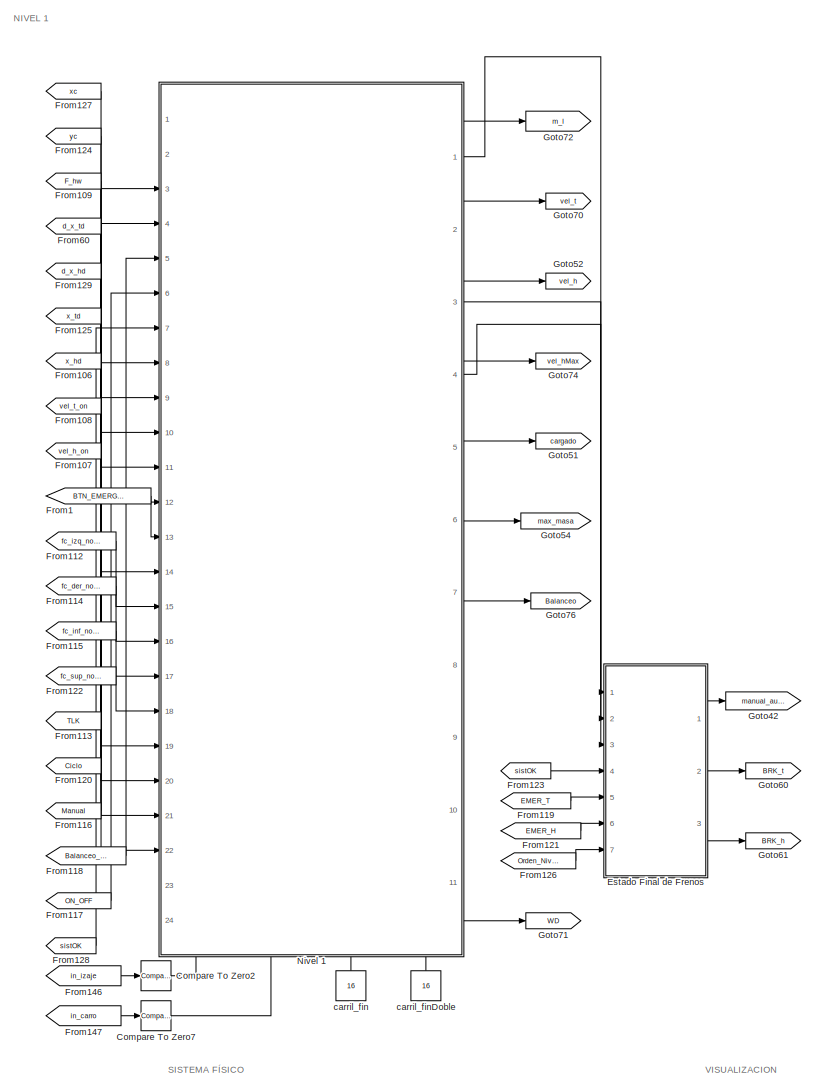
[diagram: root canvas - part 1/5, top left region]
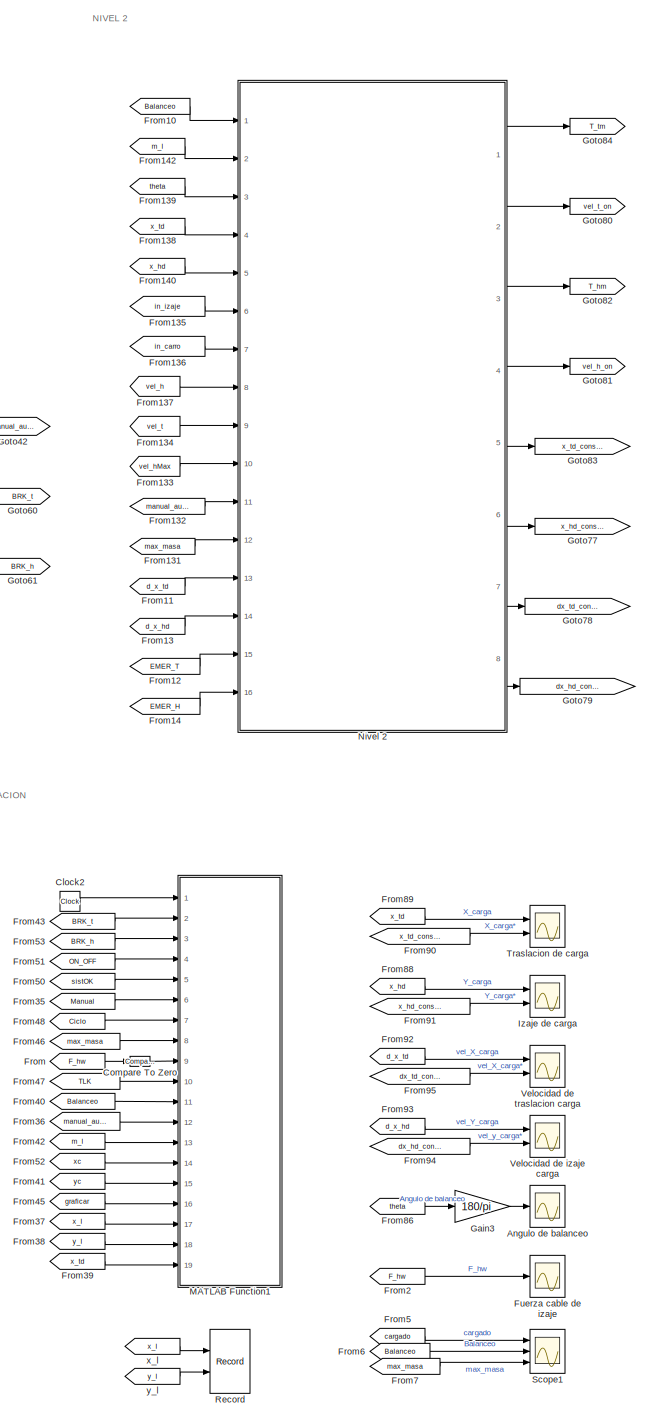
[diagram: root canvas - part 2/5, left side, full height]
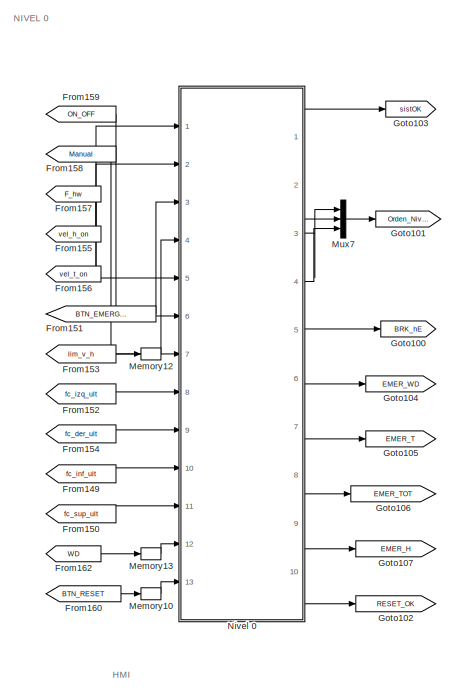
[diagram: root canvas - part 3/5, middle left region]
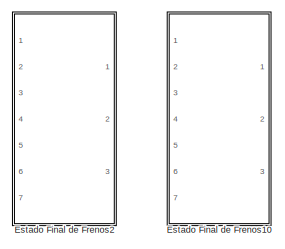
[diagram: root canvas - part 4/5, middle right region]
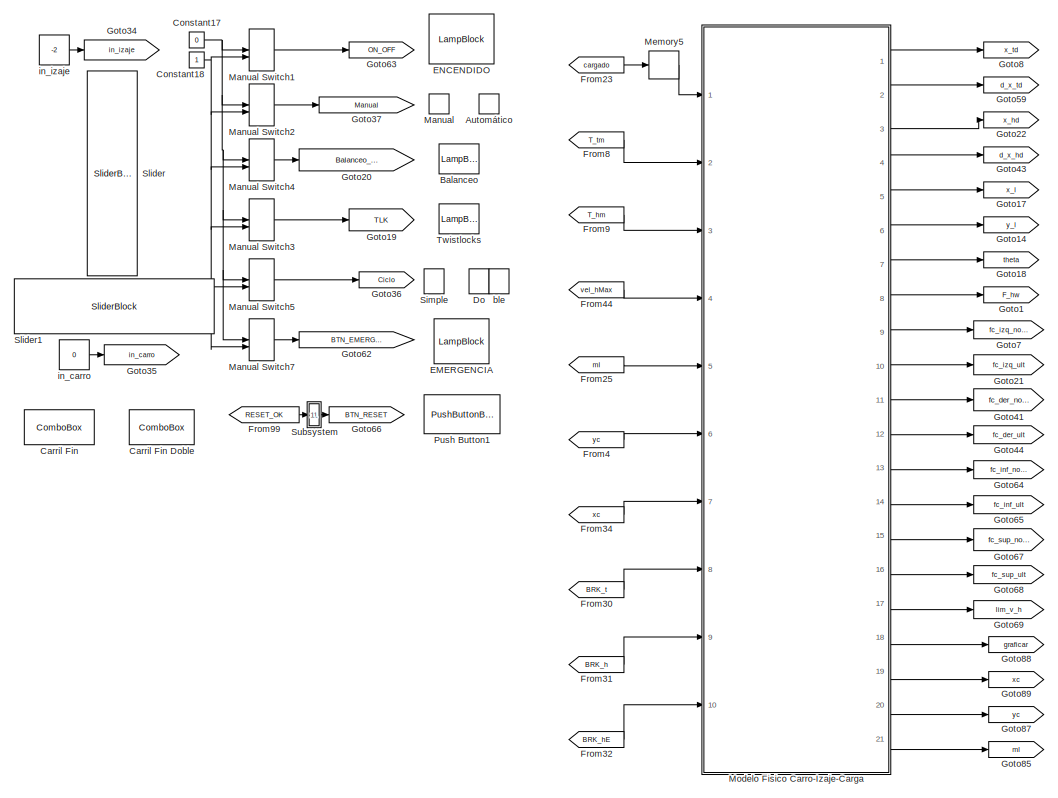
[diagram: root canvas - part 5/5, bottom left region]
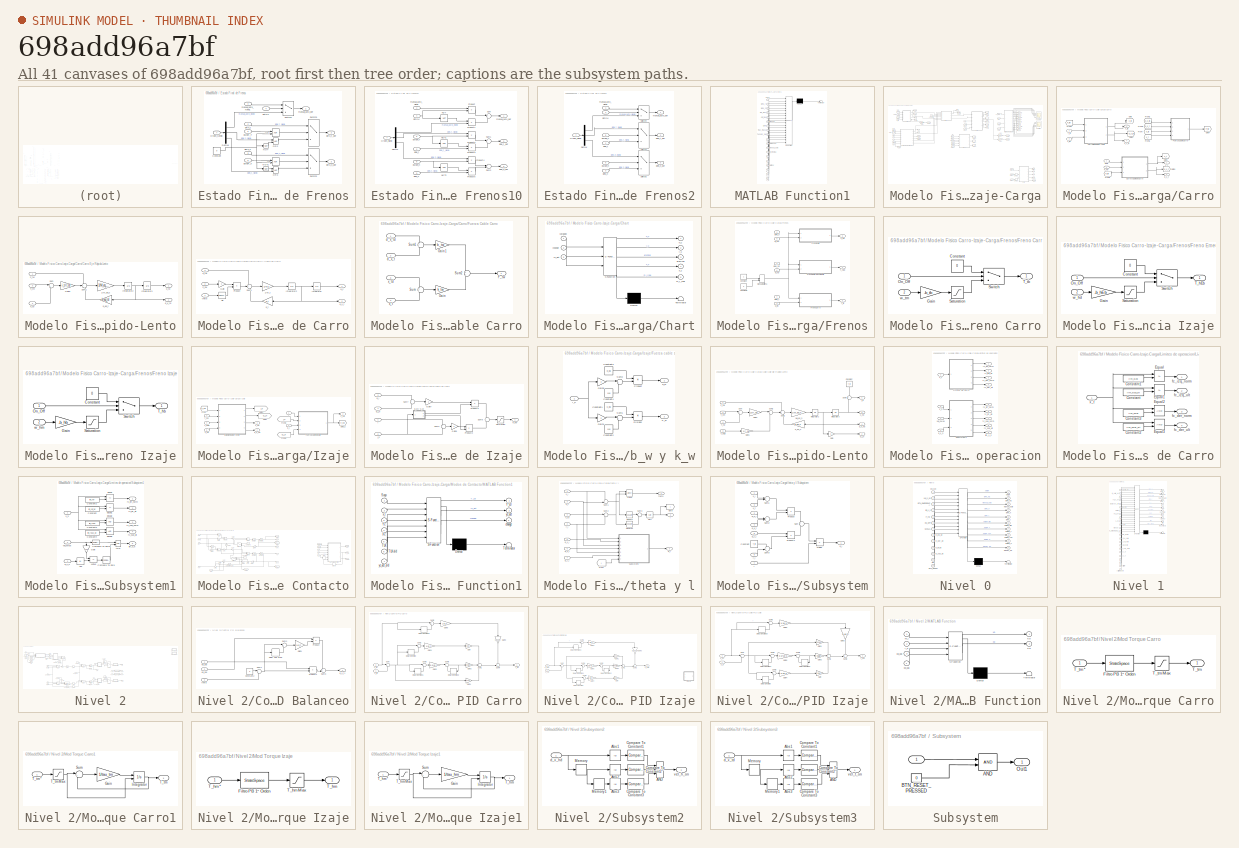
[diagram: thumbnail index - all 41 canvases of the model, root first then tree order]
MODEL slx_698add96a7bf
KIND model
CONFIG AbsTol = auto
CONFIG EnableMultiTasking = off
CONFIG FixedStep = auto
CONFIG MaxStep = auto
CONFIG MinStep = 1e-4
CONFIG RelTol = auto
CONFIG SampleTimeConstraint = Unconstrained
CONFIG SolverName = ode23
CONFIG StartTime = 0.0
CONFIG StopTime = inf
BLOCK [LampBlock]   Do
  LabelPosition = Hide
BLOCK [Scope] Angulo de balanceo
  Floating = off
  NumInputPorts = 1
  Ports = [1]
  ScopeSpecificationString = Simulink.scopes.TimeScopeBlockCfg('CurrentConfiguration', extmgr.ConfigurationSet(extmgr.Configuration('Core','General UI',true,'FigureColor',[1 1 1]),extmgr.Configuration('Core','Source UI',true),extmgr.Configuration('Sources','WiredSimulink',true,'DataLoggingVariableName','ScopeData6'),extmgr.Configuration('Visuals','Time Domain',true,'SerializedDisplays',{struct('MinYLimReal','-8.16473','MaxYLi...<+1801ch>
BLOCK [LampBlock] Automático
  LabelPosition = Hide
BLOCK [LampBlock] Balanceo
  LabelPosition = Hide
BLOCK [ComboBox] Carril Fin
  LabelPosition = Hide
  NameLocation = top
  SelectedLabel = 16
BLOCK [ComboBox] Carril Fin Doble
  LabelPosition = Hide
  NameLocation = top
  SelectedLabel = 16
BLOCK [Clock] Clock2
BLOCK [Reference] Compare To Zero  REF=simulink/Logic and Bit
Operations/Compare
To Zero
  Ports = [1, 1]
  SourceBlock = simulink/Logic and Bit\nOperations/Compare\nTo Zero
  SourceProductBaseCode = SL
  SourceType = Compare To Zero
BLOCK [Reference] Compare To Zero2  REF=simulink/Logic and Bit
Operations/Compare
To Zero
  Ports = [1, 1]
  SourceBlock = simulink/Logic and Bit\nOperations/Compare\nTo Zero
  SourceProductBaseCode = SL
  SourceType = Compare To Zero
BLOCK [Reference] Compare To Zero7  REF=simulink/Logic and Bit
Operations/Compare
To Zero
  Ports = [1, 1]
  SourceBlock = simulink/Logic and Bit\nOperations/Compare\nTo Zero
  SourceProductBaseCode = SL
  SourceType = Compare To Zero
BLOCK [Constant] Constant17
  Value = 0
BLOCK [Constant] Constant18
BLOCK [LampBlock] EMERGENCIA
  LabelPosition = Hide
BLOCK [LampBlock] ENCENDIDO
  LabelPosition = Hide
BLOCK [SubSystem] Estado Final de Frenos
  Ports = [7, 3]
  RequestExecContextInheritance = off
BLOCK [Inport] Estado Final de Frenos/BRK_h
  Port = 3
BLOCK [Outport] Estado Final de Frenos/BRK_h_def
  Port = 3
BLOCK [Inport] Estado Final de Frenos/BRK_t
  Port = 2
BLOCK [Outport] Estado Final de Frenos/BRK_t_def
  Port = 2
BLOCK [Constant] Estado Final de Frenos/Constant
  Value = 0
BLOCK [Demux] Estado Final de Frenos/Demux
  Outputs = 3
  Ports = [1, 3]
BLOCK [Inport] Estado Final de Frenos/EMER_T
  Port = 5
BLOCK [Inport] Estado Final de Frenos/EMER_h
  Port = 6
BLOCK [Logic] Estado Final de Frenos/NOT
  AllPortsSameDT = off
  IconShape = distinctive
  Operator = NOT
  OutDataTypeStr = boolean
  Ports = [1, 1]
BLOCK [Logic] Estado Final de Frenos/NOT1
  AllPortsSameDT = off
  IconShape = distinctive
  Operator = NOT
  OutDataTypeStr = boolean
  Ports = [1, 1]
BLOCK [Logic] Estado Final de Frenos/OR
  AllPortsSameDT = off
  IconShape = distinctive
  Operator = XOR
  OutDataTypeStr = boolean
  Ports = [2, 1]
BLOCK [Logic] Estado Final de Frenos/OR1
  AllPortsSameDT = off
  IconShape = distinctive
  Operator = XOR
  OutDataTypeStr = boolean
  Ports = [2, 1]
BLOCK [Logic] Estado Final de Frenos/OR2
  AllPortsSameDT = off
  IconShape = distinctive
  OutDataTypeStr = boolean
  Ports = [2, 1]
BLOCK [Logic] Estado Final de Frenos/OR3
  AllPortsSameDT = off
  IconShape = distinctive
  OutDataTypeStr = boolean
  Ports = [2, 1]
BLOCK [Inport] Estado Final de Frenos/Orden_Nivel0
  Port = 7
BLOCK [Switch] Estado Final de Frenos/Switch2
  Criteria = u2 ~= 0
  InputSameDT = off
  SaturateOnIntegerOverflow = off
BLOCK [Switch] Estado Final de Frenos/Switch3
  Criteria = u2 ~= 0
  InputSameDT = off
  SaturateOnIntegerOverflow = off
BLOCK [Switch] Estado Final de Frenos/Switch4
  Criteria = u2 ~= 0
  InputSameDT = off
  SaturateOnIntegerOverflow = off
BLOCK [Inport] Estado Final de Frenos/manual_auto_Nivel1
BLOCK [Outport] Estado Final de Frenos/manual_auto_def
BLOCK [Inport] Estado Final de Frenos/sistOK
  Port = 4
BLOCK [SubSystem] Estado Final de Frenos10
  Commented = on
  Ports = [7, 3]
  RequestExecContextInheritance = off
BLOCK [Inport] Estado Final de Frenos10/BRK_h
  Port = 3
BLOCK [Outport] Estado Final de Frenos10/BRK_h_def
  Port = 3
BLOCK [Inport] Estado Final de Frenos10/BRK_t
  Port = 2
BLOCK [Outport] Estado Final de Frenos10/BRK_t_def
  Port = 2
BLOCK [Demux] Estado Final de Frenos10/Demux
  Outputs = 3
  Ports = [1, 3]
BLOCK [Inport] Estado Final de Frenos10/EMER_T
  Port = 5
BLOCK [Inport] Estado Final de Frenos10/EMER_h
  Port = 6
BLOCK [Logic] Estado Final de Frenos10/NOT
  AllPortsSameDT = off
  IconShape = distinctive
  Operator = NOT
  OutDataTypeStr = boolean
  Ports = [1, 1]
BLOCK [Logic] Estado Final de Frenos10/NOT1
  AllPortsSameDT = off
  IconShape = distinctive
  Operator = NOT
  OutDataTypeStr = boolean
  Ports = [1, 1]
BLOCK [Logic] Estado Final de Frenos10/NOT2
  AllPortsSameDT = off
  IconShape = distinctive
  Operator = NOT
  OutDataTypeStr = boolean
  Ports = [1, 1]
BLOCK [Inport] Estado Final de Frenos10/Orden_Nivel0
  Port = 7
BLOCK [Product] Estado Final de Frenos10/Product
  Ports = [2, 1]
BLOCK [Product] Estado Final de Frenos10/Product1
  Ports = [2, 1]
BLOCK [Product] Estado Final de Frenos10/Product2
  Ports = [2, 1]
BLOCK [Product] Estado Final de Frenos10/Product3
  Ports = [2, 1]
BLOCK [Product] Estado Final de Frenos10/Product4
  Ports = [2, 1]
BLOCK [Product] Estado Final de Frenos10/Product5
  Ports = [2, 1]
BLOCK [Sum] Estado Final de Frenos10/Sum
  Inputs = +|+
  Ports = [2, 1]
BLOCK [Sum] Estado Final de Frenos10/Sum1
  Inputs = +|+
  Ports = [2, 1]
BLOCK [Sum] Estado Final de Frenos10/Sum2
  Inputs = +|+
  Ports = [2, 1]
BLOCK [Inport] Estado Final de Frenos10/manual_auto_Nivel1
  NameLocation = top
BLOCK [Outport] Estado Final de Frenos10/manual_auto_def
BLOCK [Inport] Estado Final de Frenos10/sistOK
  Port = 4
BLOCK [SubSystem] Estado Final de Frenos2
  Commented = on
  Ports = [7, 3]
  RequestExecContextInheritance = off
BLOCK [Inport] Estado Final de Frenos2/BRK_h
  Port = 3
BLOCK [Outport] Estado Final de Frenos2/BRK_h_def
  Port = 3
BLOCK [Inport] Estado Final de Frenos2/BRK_t
  Port = 2
BLOCK [Outport] Estado Final de Frenos2/BRK_t_def
  Port = 2
BLOCK [Demux] Estado Final de Frenos2/Demux
  Commented = on
  Outputs = 3
  Ports = [1, 3]
BLOCK [Inport] Estado Final de Frenos2/EMER_T
  Port = 5
BLOCK [Inport] Estado Final de Frenos2/EMER_h
  Port = 6
BLOCK [Inport] Estado Final de Frenos2/Orden_Nivel0
  Port = 7
BLOCK [Switch] Estado Final de Frenos2/Switch2
  Commented = on
  Criteria = u2 ~= 0
  InputSameDT = off
  SaturateOnIntegerOverflow = off
BLOCK [Switch] Estado Final de Frenos2/Switch3
  Commented = on
  Criteria = u2 ~= 0
  InputSameDT = off
  SaturateOnIntegerOverflow = off
BLOCK [Switch] Estado Final de Frenos2/Switch4
  Commented = on
  Criteria = u2 ~= 0
  InputSameDT = off
  SaturateOnIntegerOverflow = off
BLOCK [Inport] Estado Final de Frenos2/manual_auto_Nivel1
  NameLocation = top
BLOCK [Outport] Estado Final de Frenos2/manual_auto_def
BLOCK [Inport] Estado Final de Frenos2/sistOK
  Port = 4
BLOCK [From] From
  GotoTag = F_hw
BLOCK [From] From1
  GotoTag = BTN_EMERGENCIA
BLOCK [From] From10
  GotoTag = Balanceo
BLOCK [From] From106
  GotoTag = x_hd
BLOCK [From] From107
  GotoTag = vel_h_on
BLOCK [From] From108
  GotoTag = vel_t_on
BLOCK [From] From109
  GotoTag = F_hw
BLOCK [From] From11
  GotoTag = d_x_td
BLOCK [From] From112
  GotoTag = fc_izq_norm
BLOCK [From] From113
  GotoTag = TLK
BLOCK [From] From114
  GotoTag = fc_der_norm
BLOCK [From] From115
  GotoTag = fc_inf_norm
BLOCK [From] From116
  GotoTag = Manual
BLOCK [From] From117
  GotoTag = ON_OFF
BLOCK [From] From118
  GotoTag = Balanceo_ctrl
BLOCK [From] From119
  GotoTag = EMER_T
BLOCK [From] From12
  GotoTag = EMER_T
BLOCK [From] From120
  GotoTag = Ciclo
BLOCK [From] From121
  GotoTag = EMER_H
BLOCK [From] From122
  GotoTag = fc_sup_norm
BLOCK [From] From123
  GotoTag = sistOK
  TagVisibility = global
BLOCK [From] From124
  GotoTag = yc
BLOCK [From] From125
  GotoTag = x_td
BLOCK [From] From126
  GotoTag = Orden_Nivel0
  TagVisibility = global
BLOCK [From] From127
  GotoTag = xc
BLOCK [From] From128
  GotoTag = sistOK
  TagVisibility = global
BLOCK [From] From129
  GotoTag = d_x_hd
BLOCK [From] From13
  GotoTag = d_x_hd
BLOCK [From] From131
  GotoTag = max_masa
BLOCK [From] From132
  GotoTag = manual_auto
BLOCK [From] From133
  GotoTag = vel_hMax
BLOCK [From] From134
  GotoTag = vel_t
BLOCK [From] From135
  GotoTag = in_izaje
BLOCK [From] From136
  GotoTag = in_carro
BLOCK [From] From137
  GotoTag = vel_h
BLOCK [From] From138
  GotoTag = x_td
BLOCK [From] From139
  GotoTag = theta
BLOCK [From] From14
  GotoTag = EMER_H
BLOCK [From] From140
  GotoTag = x_hd
BLOCK [From] From142
  GotoTag = m_l
BLOCK [From] From146
  GotoTag = in_izaje
BLOCK [From] From147
  GotoTag = in_carro
BLOCK [From] From149
  GotoTag = fc_inf_ult
BLOCK [From] From150
  GotoTag = fc_sup_ult
BLOCK [From] From151
  GotoTag = BTN_EMERGENCIA
BLOCK [From] From152
  GotoTag = fc_izq_ult
BLOCK [From] From153
  GotoTag = lim_v_h
BLOCK [From] From154
  GotoTag = fc_der_ult
BLOCK [From] From155
  GotoTag = vel_h_on
BLOCK [From] From156
  GotoTag = vel_t_on
BLOCK [From] From157
  GotoTag = F_hw
BLOCK [From] From158
  GotoTag = Manual
BLOCK [From] From159
  GotoTag = ON_OFF
BLOCK [From] From160
  GotoTag = BTN_RESET
BLOCK [From] From162
  GotoTag = WD
BLOCK [From] From2
  GotoTag = F_hw
BLOCK [From] From23
  GotoTag = cargado
BLOCK [From] From25
  GotoTag = ml
BLOCK [From] From30
  GotoTag = BRK_t
BLOCK [From] From31
  GotoTag = BRK_h
BLOCK [From] From32
  GotoTag = BRK_hE
BLOCK [From] From34
  GotoTag = xc
BLOCK [From] From35
  GotoTag = Manual
BLOCK [From] From36
  GotoTag = manual_auto
BLOCK [From] From37
  GotoTag = x_l
BLOCK [From] From38
  GotoTag = y_l
BLOCK [From] From39
  GotoTag = x_td
BLOCK [From] From4
  GotoTag = yc
BLOCK [From] From40
  GotoTag = Balanceo
BLOCK [From] From41
  GotoTag = yc
BLOCK [From] From42
  GotoTag = m_l
BLOCK [From] From43
  GotoTag = BRK_t
BLOCK [From] From44
  GotoTag = vel_hMax
BLOCK [From] From45
  GotoTag = graficar
BLOCK [From] From46
  GotoTag = max_masa
BLOCK [From] From47
  GotoTag = TLK
BLOCK [From] From48
  GotoTag = Ciclo
BLOCK [From] From5
  GotoTag = cargado
BLOCK [From] From50
  GotoTag = sistOK
  TagVisibility = global
BLOCK [From] From51
  GotoTag = ON_OFF
BLOCK [From] From52
  GotoTag = xc
BLOCK [From] From53
  GotoTag = BRK_h
BLOCK [From] From6
  GotoTag = Balanceo
BLOCK [From] From60
  GotoTag = d_x_td
BLOCK [From] From7
  GotoTag = max_masa
BLOCK [From] From8
  GotoTag = T_tm
BLOCK [From] From86
  GotoTag = theta
BLOCK [From] From88
  GotoTag = x_hd
BLOCK [From] From89
  GotoTag = x_td
BLOCK [From] From9
  GotoTag = T_hm
BLOCK [From] From90
  GotoTag = x_td_consigna
BLOCK [From] From91
  GotoTag = x_hd_consigna
BLOCK [From] From92
  GotoTag = d_x_td
BLOCK [From] From93
  GotoTag = d_x_hd
BLOCK [From] From94
  GotoTag = dx_hd_consigna
BLOCK [From] From95
  GotoTag = dx_td_consigna
BLOCK [From] From99
  GotoTag = RESET_OK
BLOCK [Scope] Fuerza cable de izaje
  Floating = off
  NumInputPorts = 1
  Ports = [1]
  ScopeSpecificationString = Simulink.scopes.TimeScopeBlockCfg('CurrentConfiguration', extmgr.ConfigurationSet(extmgr.Configuration('Core','General UI',true,'FigureColor',[1 1 1]),extmgr.Configuration('Core','Source UI',true),extmgr.Configuration('Sources','WiredSimulink',true,'DataLoggingVariableName','ScopeData2'),extmgr.Configuration('Visuals','Time Domain',true,'SerializedDisplays',{struct('MinYLimReal','-40443.76375','Ma...<+2163ch>
BLOCK [Gain] Gain3
  Gain = 180/pi
BLOCK [Goto] Goto1
  GotoTag = F_hw
BLOCK [Goto] Goto100
  GotoTag = BRK_hE
BLOCK [Goto] Goto101
  GotoTag = Orden_Nivel0
  TagVisibility = global
BLOCK [Goto] Goto102
  GotoTag = RESET_OK
BLOCK [Goto] Goto103
  GotoTag = sistOK
  TagVisibility = global
BLOCK [Goto] Goto104
  GotoTag = EMER_WD
BLOCK [Goto] Goto105
  GotoTag = EMER_T
BLOCK [Goto] Goto106
  GotoTag = EMER_TOT
BLOCK [Goto] Goto107
  GotoTag = EMER_H
BLOCK [Goto] Goto14
  GotoTag = y_l
BLOCK [Goto] Goto17
  GotoTag = x_l
BLOCK [Goto] Goto18
  GotoTag = theta
BLOCK [Goto] Goto19
  GotoTag = TLK
BLOCK [Goto] Goto20
  GotoTag = Balanceo_ctrl
BLOCK [Goto] Goto21
  GotoTag = fc_izq_ult
BLOCK [Goto] Goto22
  GotoTag = x_hd
BLOCK [Goto] Goto34
  GotoTag = in_izaje
BLOCK [Goto] Goto35
  GotoTag = in_carro
BLOCK [Goto] Goto36
  GotoTag = Ciclo
BLOCK [Goto] Goto37
  GotoTag = Manual
BLOCK [Goto] Goto41
  GotoTag = fc_der_norm
BLOCK [Goto] Goto42
  GotoTag = manual_auto
BLOCK [Goto] Goto43
  GotoTag = d_x_hd
BLOCK [Goto] Goto44
  GotoTag = fc_der_ult
BLOCK [Goto] Goto51
  GotoTag = cargado
BLOCK [Goto] Goto52
  GotoTag = vel_h
BLOCK [Goto] Goto54
  GotoTag = max_masa
BLOCK [Goto] Goto59
  GotoTag = d_x_td
BLOCK [Goto] Goto60
  GotoTag = BRK_t
BLOCK [Goto] Goto61
  GotoTag = BRK_h
BLOCK [Goto] Goto62
  GotoTag = BTN_EMERGENCIA
BLOCK [Goto] Goto63
  GotoTag = ON_OFF
BLOCK [Goto] Goto64
  GotoTag = fc_inf_norm
BLOCK [Goto] Goto65
  GotoTag = fc_inf_ult
BLOCK [Goto] Goto66
  GotoTag = BTN_RESET
BLOCK [Goto] Goto67
  GotoTag = fc_sup_norm
BLOCK [Goto] Goto68
  GotoTag = fc_sup_ult
BLOCK [Goto] Goto69
  GotoTag = lim_v_h
BLOCK [Goto] Goto7
  GotoTag = fc_izq_norm
BLOCK [Goto] Goto70
  GotoTag = vel_t
BLOCK [Goto] Goto71
  GotoTag = WD
BLOCK [Goto] Goto72
  GotoTag = m_l
BLOCK [Goto] Goto74
  GotoTag = vel_hMax
BLOCK [Goto] Goto76
  GotoTag = Balanceo
BLOCK [Goto] Goto77
  GotoTag = x_hd_consigna
BLOCK [Goto] Goto78
  GotoTag = dx_td_consigna
BLOCK [Goto] Goto79
  GotoTag = dx_hd_consigna
BLOCK [Goto] Goto8
  GotoTag = x_td
BLOCK [Goto] Goto80
  GotoTag = vel_t_on
BLOCK [Goto] Goto81
  GotoTag = vel_h_on
BLOCK [Goto] Goto82
  GotoTag = T_hm
BLOCK [Goto] Goto83
  GotoTag = x_td_consigna
BLOCK [Goto] Goto84
  GotoTag = T_tm
BLOCK [Goto] Goto85
  GotoTag = ml
BLOCK [Goto] Goto87
  GotoTag = yc
BLOCK [Goto] Goto88
  GotoTag = graficar
BLOCK [Goto] Goto89
  GotoTag = xc
BLOCK [Scope] Izaje de carga
  Floating = off
  NumInputPorts = 2
  Ports = [2]
  ScopeSpecificationString = Simulink.scopes.TimeScopeBlockCfg('CurrentConfiguration', extmgr.ConfigurationSet(extmgr.Configuration('Core','General UI',true,'FigureColor',[1 1 1]),extmgr.Configuration('Core','Source UI',true),extmgr.Configuration('Sources','WiredSimulink',true,'DataLoggingVariableName','ScopeData3'),extmgr.Configuration('Visuals','Time Domain',true,'SerializedDisplays',{struct('MinYLimReal','-0.80726','MaxYLi...<+1893ch>
BLOCK [SubSystem] MATLAB Function1
  ErrorFcn = Stateflow.Translate.translate
  PermitHierarchicalResolution = ExplicitOnly
  Ports = [19]
  RequestExecContextInheritance = off
  SFBlockType = MATLAB Function
  TreatAsAtomicUnit = on
BLOCK [Demux] MATLAB Function1/ Demux 
  Outputs = 1
  Ports = [1, 1]
BLOCK [S-Function] MATLAB Function1/ SFunction 
  EnableBusSupport = on
  FunctionName = sf_sfun
  PortCounts = [19 1]
  Ports = [19, 1]
  SFcnIsStateOwnerBlock = off
  SFunctionDeploymentMode = off
  Tag = Stateflow S-Function 2
BLOCK [Terminator] MATLAB Function1/ Terminator 
BLOCK [Inport] MATLAB Function1/BRK_h
  Port = 3
BLOCK [Inport] MATLAB Function1/BRK_t
  Port = 2
BLOCK [Inport] MATLAB Function1/Balanceo
  Port = 11
BLOCK [Inport] MATLAB Function1/Ciclo
  Port = 7
BLOCK [Inport] MATLAB Function1/Manual
  Port = 6
BLOCK [Inport] MATLAB Function1/ON_OFF
  Port = 4
BLOCK [Inport] MATLAB Function1/TLK
  Port = 10
BLOCK [Inport] MATLAB Function1/Tension_hw
  Port = 9
BLOCK [Inport] MATLAB Function1/clock
BLOCK [Inport] MATLAB Function1/graficar
  Port = 16
BLOCK [Inport] MATLAB Function1/manual_auto
  Port = 12
BLOCK [Inport] MATLAB Function1/max_masa
  Port = 8
BLOCK [Inport] MATLAB Function1/ml_medida
  Port = 13
BLOCK [Inport] MATLAB Function1/sist_OK
  Port = 5
BLOCK [Inport] MATLAB Function1/x_l
  Port = 17
BLOCK [Inport] MATLAB Function1/x_td
  Port = 19
BLOCK [Inport] MATLAB Function1/xc
  Port = 14
BLOCK [Inport] MATLAB Function1/y_l
  Port = 18
BLOCK [Inport] MATLAB Function1/yc
  Port = 15
BLOCK [LampBlock] Manual
  LabelPosition = Hide
BLOCK [ManualSwitch] Manual Switch1
  CurrentSetting = 0
BLOCK [ManualSwitch] Manual Switch2
  CurrentSetting = 0
BLOCK [ManualSwitch] Manual Switch3
BLOCK [ManualSwitch] Manual Switch4
  CurrentSetting = 0
BLOCK [ManualSwitch] Manual Switch5
BLOCK [ManualSwitch] Manual Switch7
BLOCK [Memory] Memory10
BLOCK [Memory] Memory12
BLOCK [Memory] Memory13
BLOCK [Memory] Memory5
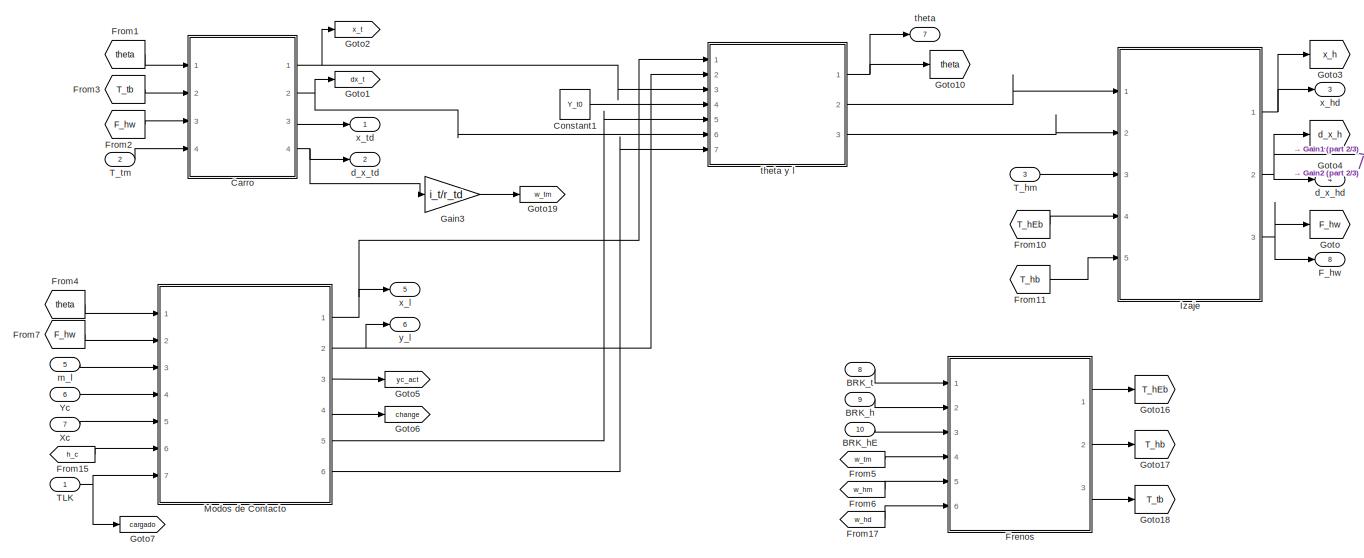
[diagram: Modelo Fisico Carro-Izaje-Carga - part 1/3, top left region]
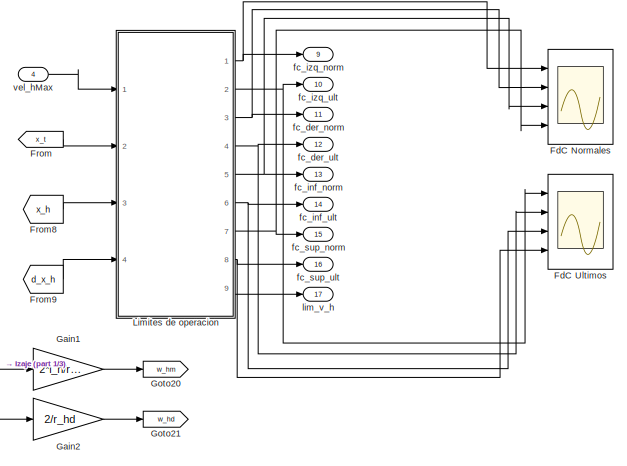
[diagram: Modelo Fisico Carro-Izaje-Carga - part 2/3, top right region]
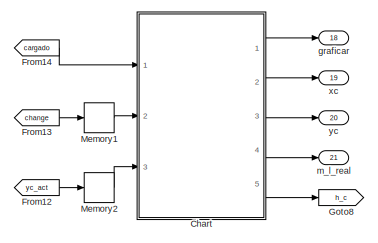
[diagram: Modelo Fisico Carro-Izaje-Carga - part 3/3, bottom right region]
BLOCK [SubSystem] Modelo Fisico Carro-Izaje-Carga
  Ports = [10, 21]
  RequestExecContextInheritance = off
BLOCK [Inport] Modelo Fisico Carro-Izaje-Carga/BRK_h
  Port = 9
BLOCK [Inport] Modelo Fisico Carro-Izaje-Carga/BRK_hE
  Port = 10
BLOCK [Inport] Modelo Fisico Carro-Izaje-Carga/BRK_t
  Port = 8
BLOCK [SubSystem] Modelo Fisico Carro-Izaje-Carga/Carro
  Ports = [4, 4]
  RequestExecContextInheritance = off
BLOCK [SubSystem] Modelo Fisico Carro-Izaje-Carga/Carro/Carro Eje Rápido-Lento
  Ports = [3, 2]
  RequestExecContextInheritance = off
BLOCK [Gain] Modelo Fisico Carro-Izaje-Carga/Carro/Carro Eje Rápido-Lento/1//M_eq_t
  Gain = 1/M_eq_td
BLOCK [Inport] Modelo Fisico Carro-Izaje-Carga/Carro/Carro Eje Rápido-Lento/F_tw
BLOCK [Gain] Modelo Fisico Carro-Izaje-Carga/Carro/Carro Eje Rápido-Lento/Gain3
  Gain = i_t/r_td
BLOCK [Integrator] Modelo Fisico Carro-Izaje-Carga/Carro/Carro Eje Rápido-Lento/Integrator2
  Ports = [1, 1]
BLOCK [Integrator] Modelo Fisico Carro-Izaje-Carga/Carro/Carro Eje Rápido-Lento/Integrator3
  InitialCondition = CI_t
  Ports = [1, 1]
BLOCK [Sum] Modelo Fisico Carro-Izaje-Carga/Carro/Carro Eje Rápido-Lento/Sum
  Inputs = |++
  Ports = [2, 1]
BLOCK [Sum] Modelo Fisico Carro-Izaje-Carga/Carro/Carro Eje Rápido-Lento/Sum1
  Inputs = -+-
  Ports = [3, 1]
BLOCK [Inport] Modelo Fisico Carro-Izaje-Carga/Carro/Carro Eje Rápido-Lento/T_tb
  Port = 2
BLOCK [Inport] Modelo Fisico Carro-Izaje-Carga/Carro/Carro Eje Rápido-Lento/T_tm
  Port = 3
BLOCK [Gain] Modelo Fisico Carro-Izaje-Carga/Carro/Carro Eje Rápido-Lento/b_eq_t
  Gain = b_eq_td
BLOCK [Outport] Modelo Fisico Carro-Izaje-Carga/Carro/Carro Eje Rápido-Lento/d_x_td
  Port = 2
BLOCK [Outport] Modelo Fisico Carro-Izaje-Carga/Carro/Carro Eje Rápido-Lento/x_td
BLOCK [SubSystem] Modelo Fisico Carro-Izaje-Carga/Carro/Carro y Cable de Carro
  Ports = [3, 2]
  RequestExecContextInheritance = off
BLOCK [Gain] Modelo Fisico Carro-Izaje-Carga/Carro/Carro y Cable de Carro/1//M_t
  Gain = 1/M_t
BLOCK [Inport] Modelo Fisico Carro-Izaje-Carga/Carro/Carro y Cable de Carro/F_hw
  Port = 2
BLOCK [Inport] Modelo Fisico Carro-Izaje-Carga/Carro/Carro y Cable de Carro/F_tw
  Port = 3
BLOCK [Gain] Modelo Fisico Carro-Izaje-Carga/Carro/Carro y Cable de Carro/Gain
  Gain = 2
BLOCK [Integrator] Modelo Fisico Carro-Izaje-Carga/Carro/Carro y Cable de Carro/Integrator
  InitialCondition = CI_t
  Ports = [1, 1]
BLOCK [Integrator] Modelo Fisico Carro-Izaje-Carga/Carro/Carro y Cable de Carro/Integrator2
  Ports = [1, 1]
BLOCK [Product] Modelo Fisico Carro-Izaje-Carga/Carro/Carro y Cable de Carro/Product
  Ports = [2, 1]
BLOCK [Trigonometry] Modelo Fisico Carro-Izaje-Carga/Carro/Carro y Cable de Carro/Sin
  Ports = [1, 1]
BLOCK [Sum] Modelo Fisico Carro-Izaje-Carga/Carro/Carro y Cable de Carro/Sum1
  Inputs = ++-
  Ports = [3, 1]
BLOCK [Gain] Modelo Fisico Carro-Izaje-Carga/Carro/Carro y Cable de Carro/b_t
  Gain = b_t
BLOCK [Outport] Modelo Fisico Carro-Izaje-Carga/Carro/Carro y Cable de Carro/d_x_t
  Port = 2
BLOCK [Inport] Modelo Fisico Carro-Izaje-Carga/Carro/Carro y Cable de Carro/theta
BLOCK [Outport] Modelo Fisico Carro-Izaje-Carga/Carro/Carro y Cable de Carro/x_t
BLOCK [Inport] Modelo Fisico Carro-Izaje-Carga/Carro/F_hw
  Port = 3
BLOCK [From] Modelo Fisico Carro-Izaje-Carga/Carro/From
  GotoTag = x_td
BLOCK [From] Modelo Fisico Carro-Izaje-Carga/Carro/From1
  GotoTag = x_t
BLOCK [From] Modelo Fisico Carro-Izaje-Carga/Carro/From2
  GotoTag = d_x_td
BLOCK [From] Modelo Fisico Carro-Izaje-Carga/Carro/From3
  GotoTag = d_x_t
BLOCK [From] Modelo Fisico Carro-Izaje-Carga/Carro/From4
  GotoTag = F_tw
BLOCK [From] Modelo Fisico Carro-Izaje-Carga/Carro/From5
  GotoTag = F_tw
BLOCK [SubSystem] Modelo Fisico Carro-Izaje-Carga/Carro/Fuerza Cable Carro
  Ports = [4, 1]
  RequestExecContextInheritance = off
BLOCK [Outport] Modelo Fisico Carro-Izaje-Carga/Carro/Fuerza Cable Carro/F_tw
BLOCK [Gain] Modelo Fisico Carro-Izaje-Carga/Carro/Fuerza Cable Carro/Gain
  Gain = k_tw
BLOCK [Gain] Modelo Fisico Carro-Izaje-Carga/Carro/Fuerza Cable Carro/Gain1
  Gain = b_tw
BLOCK [Sum] Modelo Fisico Carro-Izaje-Carga/Carro/Fuerza Cable Carro/Sum
  Inputs = +|-
  Ports = [2, 1]
BLOCK [Sum] Modelo Fisico Carro-Izaje-Carga/Carro/Fuerza Cable Carro/Sum1
  Inputs = +|-
  Ports = [2, 1]
BLOCK [Sum] Modelo Fisico Carro-Izaje-Carga/Carro/Fuerza Cable Carro/Sum2
  Inputs = +|+
  Ports = [2, 1]
BLOCK [Inport] Modelo Fisico Carro-Izaje-Carga/Carro/Fuerza Cable Carro/d_x_t
  Port = 2
BLOCK [Inport] Modelo Fisico Carro-Izaje-Carga/Carro/Fuerza Cable Carro/d_x_td
BLOCK [Inport] Modelo Fisico Carro-Izaje-Carga/Carro/Fuerza Cable Carro/x_t
  Port = 4
BLOCK [Inport] Modelo Fisico Carro-Izaje-Carga/Carro/Fuerza Cable Carro/x_td
  Port = 3
BLOCK [Goto] Modelo Fisico Carro-Izaje-Carga/Carro/Goto
  GotoTag = x_td
BLOCK [Goto] Modelo Fisico Carro-Izaje-Carga/Carro/Goto1
  GotoTag = x_t
BLOCK [Goto] Modelo Fisico Carro-Izaje-Carga/Carro/Goto2
  GotoTag = d_x_td
BLOCK [Goto] Modelo Fisico Carro-Izaje-Carga/Carro/Goto3
  GotoTag = d_x_t
BLOCK [Goto] Modelo Fisico Carro-Izaje-Carga/Carro/Goto4
  GotoTag = F_tw
BLOCK [Inport] Modelo Fisico Carro-Izaje-Carga/Carro/T_tb
  Port = 2
BLOCK [Inport] Modelo Fisico Carro-Izaje-Carga/Carro/T_tm
  Port = 4
BLOCK [Outport] Modelo Fisico Carro-Izaje-Carga/Carro/d_x_t
  Port = 2
BLOCK [Outport] Modelo Fisico Carro-Izaje-Carga/Carro/d_x_td
  Port = 4
BLOCK [Inport] Modelo Fisico Carro-Izaje-Carga/Carro/theta
BLOCK [Outport] Modelo Fisico Carro-Izaje-Carga/Carro/x_t
BLOCK [Outport] Modelo Fisico Carro-Izaje-Carga/Carro/x_td
  Port = 3
BLOCK [SubSystem] Modelo Fisico Carro-Izaje-Carga/Chart
  ErrorFcn = Stateflow.Translate.translate
  PermitHierarchicalResolution = ExplicitOnly
  PortSchema = {"entries":[{"content":{"sides":[{"content":{"connectorIds":["In1","In2","In3"]},"type":"ConnectorPlacement.EquallySpacedRectSide","uuid":"3e82a7c2-bf75-4f61-8ed8-4dc94ac63b2a"},{"content":{"connectorIds":["Out3","Out4","Out2","Out5","Out1"],"side":"RIGHT"},"type":"ConnectorPlacement.EquallySpacedRectSide","uuid":"3bda0d7b-f5b8-4b7e-98a5-641e146bfa09"},{"content":{"connectorIds":[],"side":"TOP"},"...<+280ch>
  Ports = [3, 5]
  RequestExecContextInheritance = off
  SFBlockType = Chart
  TreatAsAtomicUnit = on
BLOCK [Demux] Modelo Fisico Carro-Izaje-Carga/Chart/ Demux 
  Outputs = 1
  Ports = [1, 1]
BLOCK [S-Function] Modelo Fisico Carro-Izaje-Carga/Chart/ SFunction 
  EnableBusSupport = on
  FunctionName = sf_sfun
  Parameters = H_c,M_cMax,M_cMin,M_s,xc,yc
  PortCounts = [3 6]
  Ports = [3, 6]
  SFcnIsStateOwnerBlock = off
  SFunctionDeploymentMode = off
  Tag = Stateflow S-Function 11
BLOCK [Terminator] Modelo Fisico Carro-Izaje-Carga/Chart/ Terminator 
BLOCK [Inport] Modelo Fisico Carro-Izaje-Carga/Chart/cargado
BLOCK [Inport] Modelo Fisico Carro-Izaje-Carga/Chart/change
  Port = 2
BLOCK [Outport] Modelo Fisico Carro-Izaje-Carga/Chart/graficar
  Port = 3
BLOCK [Outport] Modelo Fisico Carro-Izaje-Carga/Chart/h_c
BLOCK [Outport] Modelo Fisico Carro-Izaje-Carga/Chart/m_l_real
  Port = 5
BLOCK [Outport] Modelo Fisico Carro-Izaje-Carga/Chart/x_c
  Port = 4
BLOCK [Outport] Modelo Fisico Carro-Izaje-Carga/Chart/y_c
  Port = 2
BLOCK [Inport] Modelo Fisico Carro-Izaje-Carga/Chart/yc_act
  Port = 3
BLOCK [Constant] Modelo Fisico Carro-Izaje-Carga/Constant1
  Value = Y_t0
BLOCK [Outport] Modelo Fisico Carro-Izaje-Carga/F_hw
  Port = 8
BLOCK [Scope] Modelo Fisico Carro-Izaje-Carga/FdC Normales
  Floating = off
  NumInputPorts = 4
  Ports = [4]
  ScopeSpecificationString = Simulink.scopes.TimeScopeBlockCfg('CurrentConfiguration', extmgr.ConfigurationSet(extmgr.Configuration('Core','General UI',true,'FigureColor',[1 1 1]),extmgr.Configuration('Core','Source UI',true),extmgr.Configuration('Sources','WiredSimulink',true,'DataLoggingVariableName','ScopeData2'),extmgr.Configuration('Visuals','Time Domain',true,'SerializedDisplays',{struct('MinYLimReal','-1.00000','MaxYLi...<+3711ch>
BLOCK [Scope] Modelo Fisico Carro-Izaje-Carga/FdC Ultimos
  Floating = off
  NumInputPorts = 4
  Ports = [4]
  ScopeSpecificationString = Simulink.scopes.TimeScopeBlockCfg('CurrentConfiguration', extmgr.ConfigurationSet(extmgr.Configuration('Core','General UI',true,'FigureColor',[1 1 1]),extmgr.Configuration('Core','Source UI',true),extmgr.Configuration('Sources','WiredSimulink',true,'DataLoggingVariableName','ScopeData3'),extmgr.Configuration('Visuals','Time Domain',true,'SerializedDisplays',{struct('MinYLimReal','-1.00000','MaxYLi...<+3711ch>
BLOCK [SubSystem] Modelo Fisico Carro-Izaje-Carga/Frenos
  Ports = [6, 3]
  RequestExecContextInheritance = off
BLOCK [Inport] Modelo Fisico Carro-Izaje-Carga/Frenos/BRK_h
  Port = 2
BLOCK [Inport] Modelo Fisico Carro-Izaje-Carga/Frenos/BRK_hE
  Port = 3
BLOCK [Inport] Modelo Fisico Carro-Izaje-Carga/Frenos/BRK_t
BLOCK [Constant] Modelo Fisico Carro-Izaje-Carga/Frenos/Constant
BLOCK [Constant] Modelo Fisico Carro-Izaje-Carga/Frenos/Constant1
  Value = 0
BLOCK [SubSystem] Modelo Fisico Carro-Izaje-Carga/Frenos/Freno Carro
  Ports = [2, 1]
  RequestExecContextInheritance = off
BLOCK [Constant] Modelo Fisico Carro-Izaje-Carga/Frenos/Freno Carro/Constant
  Value = 0
BLOCK [Gain] Modelo Fisico Carro-Izaje-Carga/Frenos/Freno Carro/Gain
  Gain = -b_tb
BLOCK [Inport] Modelo Fisico Carro-Izaje-Carga/Frenos/Freno Carro/On_Off
BLOCK [Saturate] Modelo Fisico Carro-Izaje-Carga/Frenos/Freno Carro/Saturation
  LowerLimit = -T_tbMax
  UpperLimit = T_tbMax
BLOCK [Switch] Modelo Fisico Carro-Izaje-Carga/Frenos/Freno Carro/Switch
  Criteria = u2 ~= 0
  InputSameDT = off
  SaturateOnIntegerOverflow = off
BLOCK [Outport] Modelo Fisico Carro-Izaje-Carga/Frenos/Freno Carro/T_tb
BLOCK [Inport] Modelo Fisico Carro-Izaje-Carga/Frenos/Freno Carro/w_tm
  Port = 2
BLOCK [SubSystem] Modelo Fisico Carro-Izaje-Carga/Frenos/Freno Emergencia Izaje
  Ports = [2, 1]
  RequestExecContextInheritance = off
BLOCK [Constant] Modelo Fisico Carro-Izaje-Carga/Frenos/Freno Emergencia Izaje/Constant
  Value = 0
BLOCK [Gain] Modelo Fisico Carro-Izaje-Carga/Frenos/Freno Emergencia Izaje/Gain
  Gain = -b_hEb
BLOCK [Inport] Modelo Fisico Carro-Izaje-Carga/Frenos/Freno Emergencia Izaje/On_Off
BLOCK [Saturate] Modelo Fisico Carro-Izaje-Carga/Frenos/Freno Emergencia Izaje/Saturation
  LowerLimit = -T_hEbMax
  UpperLimit = T_hEbMax
BLOCK [Switch] Modelo Fisico Carro-Izaje-Carga/Frenos/Freno Emergencia Izaje/Switch
  Criteria = u2 ~= 0
  InputSameDT = off
  SaturateOnIntegerOverflow = off
BLOCK [Outport] Modelo Fisico Carro-Izaje-Carga/Frenos/Freno Emergencia Izaje/T_hEb
BLOCK [Inport] Modelo Fisico Carro-Izaje-Carga/Frenos/Freno Emergencia Izaje/w_hd
  Port = 2
BLOCK [SubSystem] Modelo Fisico Carro-Izaje-Carga/Frenos/Freno Izaje
  Ports = [2, 1]
  RequestExecContextInheritance = off
BLOCK [Constant] Modelo Fisico Carro-Izaje-Carga/Frenos/Freno Izaje/Constant
  Value = 0
BLOCK [Gain] Modelo Fisico Carro-Izaje-Carga/Frenos/Freno Izaje/Gain
  Gain = -b_hb
BLOCK [Inport] Modelo Fisico Carro-Izaje-Carga/Frenos/Freno Izaje/On_Off
BLOCK [Saturate] Modelo Fisico Carro-Izaje-Carga/Frenos/Freno Izaje/Saturation
  LowerLimit = -T_hbMax
  UpperLimit = T_hbMax
BLOCK [Switch] Modelo Fisico Carro-Izaje-Carga/Frenos/Freno Izaje/Switch
  Criteria = u2 ~= 0
  InputSameDT = off
  SaturateOnIntegerOverflow = off
BLOCK [Outport] Modelo Fisico Carro-Izaje-Carga/Frenos/Freno Izaje/T_hb
BLOCK [Inport] Modelo Fisico Carro-Izaje-Carga/Frenos/Freno Izaje/w_hm
  Port = 2
BLOCK [ManualSwitch] Modelo Fisico Carro-Izaje-Carga/Frenos/Manual Switch1
BLOCK [Outport] Modelo Fisico Carro-Izaje-Carga/Frenos/T_hEb
BLOCK [Outport] Modelo Fisico Carro-Izaje-Carga/Frenos/T_hb
  Port = 2
BLOCK [Outport] Modelo Fisico Carro-Izaje-Carga/Frenos/T_tb
  Port = 3
BLOCK [Inport] Modelo Fisico Carro-Izaje-Carga/Frenos/w_hd
  Port = 6
BLOCK [Inport] Modelo Fisico Carro-Izaje-Carga/Frenos/w_hm
  Port = 5
BLOCK [Inport] Modelo Fisico Carro-Izaje-Carga/Frenos/w_tm
  Port = 4
BLOCK [From] Modelo Fisico Carro-Izaje-Carga/From
  GotoTag = x_t
  TagVisibility = global
BLOCK [From] Modelo Fisico Carro-Izaje-Carga/From1
  GotoTag = theta
BLOCK [From] Modelo Fisico Carro-Izaje-Carga/From10
  GotoTag = T_hEb
BLOCK [From] Modelo Fisico Carro-Izaje-Carga/From11
  GotoTag = T_hb
BLOCK [From] Modelo Fisico Carro-Izaje-Carga/From12
  GotoTag = yc_act
  TagVisibility = global
BLOCK [From] Modelo Fisico Carro-Izaje-Carga/From13
  GotoTag = change
  TagVisibility = global
BLOCK [From] Modelo Fisico Carro-Izaje-Carga/From14
  GotoTag = cargado
  TagVisibility = global
BLOCK [From] Modelo Fisico Carro-Izaje-Carga/From15
  GotoTag = h_c
  TagVisibility = global
BLOCK [From] Modelo Fisico Carro-Izaje-Carga/From17
  GotoTag = w_hd
BLOCK [From] Modelo Fisico Carro-Izaje-Carga/From2
  GotoTag = F_hw
BLOCK [From] Modelo Fisico Carro-Izaje-Carga/From3
  GotoTag = T_tb
BLOCK [From] Modelo Fisico Carro-Izaje-Carga/From4
  GotoTag = theta
BLOCK [From] Modelo Fisico Carro-Izaje-Carga/From5
  GotoTag = w_tm
  TagVisibility = global
BLOCK [From] Modelo Fisico Carro-Izaje-Carga/From6
  GotoTag = w_hm
BLOCK [From] Modelo Fisico Carro-Izaje-Carga/From7
  GotoTag = F_hw
BLOCK [From] Modelo Fisico Carro-Izaje-Carga/From8
  GotoTag = x_h
BLOCK [From] Modelo Fisico Carro-Izaje-Carga/From9
  GotoTag = d_x_h
BLOCK [Gain] Modelo Fisico Carro-Izaje-Carga/Gain1
  Gain = 2*i_h/r_hd
BLOCK [Gain] Modelo Fisico Carro-Izaje-Carga/Gain2
  Gain = 2/r_hd
BLOCK [Gain] Modelo Fisico Carro-Izaje-Carga/Gain3
  Gain = i_t/r_td
BLOCK [Goto] Modelo Fisico Carro-Izaje-Carga/Goto
  GotoTag = F_hw
BLOCK [Goto] Modelo Fisico Carro-Izaje-Carga/Goto1
  GotoTag = dx_t
  TagVisibility = global
BLOCK [Goto] Modelo Fisico Carro-Izaje-Carga/Goto10
  GotoTag = theta
BLOCK [Goto] Modelo Fisico Carro-Izaje-Carga/Goto16
  GotoTag = T_hEb
BLOCK [Goto] Modelo Fisico Carro-Izaje-Carga/Goto17
  GotoTag = T_hb
BLOCK [Goto] Modelo Fisico Carro-Izaje-Carga/Goto18
  GotoTag = T_tb
BLOCK [Goto] Modelo Fisico Carro-Izaje-Carga/Goto19
  GotoTag = w_tm
  TagVisibility = global
BLOCK [Goto] Modelo Fisico Carro-Izaje-Carga/Goto2
  GotoTag = x_t
  TagVisibility = global
BLOCK [Goto] Modelo Fisico Carro-Izaje-Carga/Goto20
  GotoTag = w_hm
BLOCK [Goto] Modelo Fisico Carro-Izaje-Carga/Goto21
  GotoTag = w_hd
BLOCK [Goto] Modelo Fisico Carro-Izaje-Carga/Goto3
  GotoTag = x_h
BLOCK [Goto] Modelo Fisico Carro-Izaje-Carga/Goto4
  GotoTag = d_x_h
BLOCK [Goto] Modelo Fisico Carro-Izaje-Carga/Goto5
  GotoTag = yc_act
  TagVisibility = global
BLOCK [Goto] Modelo Fisico Carro-Izaje-Carga/Goto6
  GotoTag = change
  TagVisibility = global
BLOCK [Goto] Modelo Fisico Carro-Izaje-Carga/Goto7
  GotoTag = cargado
  TagVisibility = global
BLOCK [Goto] Modelo Fisico Carro-Izaje-Carga/Goto8
  GotoTag = h_c
  TagVisibility = global
BLOCK [SubSystem] Modelo Fisico Carro-Izaje-Carga/Izaje
  Ports = [5, 3]
  RequestExecContextInheritance = off
BLOCK [Outport] Modelo Fisico Carro-Izaje-Carga/Izaje/F_hw
  Port = 3
BLOCK [From] Modelo Fisico Carro-Izaje-Carga/Izaje/From
  GotoTag = F_hw
BLOCK [From] Modelo Fisico Carro-Izaje-Carga/Izaje/From1
  GotoTag = d_l_h
BLOCK [From] Modelo Fisico Carro-Izaje-Carga/Izaje/From2
  GotoTag = l_h
BLOCK [SubSystem] Modelo Fisico Carro-Izaje-Carga/Izaje/Fuerza cable de Izaje
  Ports = [4, 1]
  RequestExecContextInheritance = off
BLOCK [Outport] Modelo Fisico Carro-Izaje-Carga/Izaje/Fuerza cable de Izaje/F_hw
BLOCK [Gain] Modelo Fisico Carro-Izaje-Carga/Izaje/Fuerza cable de Izaje/Gain6
  Gain = 2
BLOCK [Gain] Modelo Fisico Carro-Izaje-Carga/Izaje/Fuerza cable de Izaje/Gain7
  Gain = 2
BLOCK [Product] Modelo Fisico Carro-Izaje-Carga/Izaje/Fuerza cable de Izaje/Product2
  Ports = [2, 1]
BLOCK [Product] Modelo Fisico Carro-Izaje-Carga/Izaje/Fuerza cable de Izaje/Product3
  Ports = [2, 1]
BLOCK [Saturate] Modelo Fisico Carro-Izaje-Carga/Izaje/Fuerza cable de Izaje/Saturation
  LowerLimit = 0
  UpperLimit = inf
BLOCK [Sum] Modelo Fisico Carro-Izaje-Carga/Izaje/Fuerza cable de Izaje/Sum2
  Inputs = +|-
  Ports = [2, 1]
BLOCK [Sum] Modelo Fisico Carro-Izaje-Carga/Izaje/Fuerza cable de Izaje/Sum6
  Inputs = +|+
  Ports = [2, 1]
BLOCK [Sum] Modelo Fisico Carro-Izaje-Carga/Izaje/Fuerza cable de Izaje/Sum7
  Inputs = +|-
  Ports = [2, 1]
BLOCK [SubSystem] Modelo Fisico Carro-Izaje-Carga/Izaje/Fuerza cable de Izaje/b_w y k_w
  Ports = [1, 2]
  RequestExecContextInheritance = off
BLOCK [Constant] Modelo Fisico Carro-Izaje-Carga/Izaje/Fuerza cable de Izaje/b_w y k_w/Constant1
  Value = k_wu
BLOCK [Constant] Modelo Fisico Carro-Izaje-Carga/Izaje/Fuerza cable de Izaje/b_w y k_w/Constant2
  Value = 110
BLOCK [Constant] Modelo Fisico Carro-Izaje-Carga/Izaje/Fuerza cable de Izaje/b_w y k_w/Constant3
  Value = b_wu
BLOCK [Constant] Modelo Fisico Carro-Izaje-Carga/Izaje/Fuerza cable de Izaje/b_w y k_w/Constant4
  Value = 110
BLOCK [Product] Modelo Fisico Carro-Izaje-Carga/Izaje/Fuerza cable de Izaje/b_w y k_w/Divide2
  Inputs = */
  Ports = [2, 1]
BLOCK [Gain] Modelo Fisico Carro-Izaje-Carga/Izaje/Fuerza cable de Izaje/b_w y k_w/Gain1
  Gain = 2
BLOCK [Gain] Modelo Fisico Carro-Izaje-Carga/Izaje/Fuerza cable de Izaje/b_w y k_w/Gain6
  Gain = 2
BLOCK [Outport] Modelo Fisico Carro-Izaje-Carga/Izaje/Fuerza cable de Izaje/b_w y k_w/K_w
  Port = 2
BLOCK [Product] Modelo Fisico Carro-Izaje-Carga/Izaje/Fuerza cable de Izaje/b_w y k_w/Product
  Ports = [2, 1]
BLOCK [Sum] Modelo Fisico Carro-Izaje-Carga/Izaje/Fuerza cable de Izaje/b_w y k_w/Sum1
  Inputs = |++
  Ports = [2, 1]
BLOCK [Sum] Modelo Fisico Carro-Izaje-Carga/Izaje/Fuerza cable de Izaje/b_w y k_w/Sum2
  Inputs = |++
  Ports = [2, 1]
BLOCK [Outport] Modelo Fisico Carro-Izaje-Carga/Izaje/Fuerza cable de Izaje/b_w y k_w/b_w
BLOCK [Inport] Modelo Fisico Carro-Izaje-Carga/Izaje/Fuerza cable de Izaje/b_w y k_w/l_h
BLOCK [Inport] Modelo Fisico Carro-Izaje-Carga/Izaje/Fuerza cable de Izaje/d_l
  Port = 3
BLOCK [Inport] Modelo Fisico Carro-Izaje-Carga/Izaje/Fuerza cable de Izaje/d_l_h
  Port = 4
BLOCK [Inport] Modelo Fisico Carro-Izaje-Carga/Izaje/Fuerza cable de Izaje/l
BLOCK [Inport] Modelo Fisico Carro-Izaje-Carga/Izaje/Fuerza cable de Izaje/l_h
  Port = 2
BLOCK [Goto] Modelo Fisico Carro-Izaje-Carga/Izaje/Goto1
  GotoTag = d_l_h
BLOCK [Goto] Modelo Fisico Carro-Izaje-Carga/Izaje/Goto12
  GotoTag = F_hw
BLOCK [Goto] Modelo Fisico Carro-Izaje-Carga/Izaje/Goto2
  GotoTag = l_h
BLOCK [SubSystem] Modelo Fisico Carro-Izaje-Carga/Izaje/Izaje Eje Rapido-Lento
  Ports = [4, 4]
  RequestExecContextInheritance = off
BLOCK [Gain] Modelo Fisico Carro-Izaje-Carga/Izaje/Izaje Eje Rapido-Lento/1//M_eq_h
  Gain = 1/M_eq_h
BLOCK [Constant] Modelo Fisico Carro-Izaje-Carga/Izaje/Izaje Eje Rapido-Lento/Constant
  NameLocation = left
  Value = Y_t0
BLOCK [Inport] Modelo Fisico Carro-Izaje-Carga/Izaje/Izaje Eje Rapido-Lento/F_hw
BLOCK [Gain] Modelo Fisico Carro-Izaje-Carga/Izaje/Izaje Eje Rapido-Lento/Gain
  Gain = -1
BLOCK [Gain] Modelo Fisico Carro-Izaje-Carga/Izaje/Izaje Eje Rapido-Lento/Gain1
  Gain = 1/r_hd
BLOCK [Gain] Modelo Fisico Carro-Izaje-Carga/Izaje/Izaje Eje Rapido-Lento/Gain2
  Gain = i_h/r_hd
BLOCK [Integrator] Modelo Fisico Carro-Izaje-Carga/Izaje/Izaje Eje Rapido-Lento/Integrator2
  Ports = [1, 1]
BLOCK [Integrator] Modelo Fisico Carro-Izaje-Carga/Izaje/Izaje Eje Rapido-Lento/Integrator3
  InitialCondition = CI_h
  Ports = [1, 1]
BLOCK [Sum] Modelo Fisico Carro-Izaje-Carga/Izaje/Izaje Eje Rapido-Lento/Sum
  Inputs = |++
  Ports = [2, 1]
BLOCK [Sum] Modelo Fisico Carro-Izaje-Carga/Izaje/Izaje Eje Rapido-Lento/Sum1
  Inputs = -+-
  Ports = [3, 1]
BLOCK [Sum] Modelo Fisico Carro-Izaje-Carga/Izaje/Izaje Eje Rapido-Lento/Sum2
  Inputs = |++
  Ports = [2, 1]
BLOCK [Sum] Modelo Fisico Carro-Izaje-Carga/Izaje/Izaje Eje Rapido-Lento/Sum3
  Inputs = +|-
  Ports = [2, 1]
BLOCK [Inport] Modelo Fisico Carro-Izaje-Carga/Izaje/Izaje Eje Rapido-Lento/T_hEb
  Port = 3
BLOCK [Inport] Modelo Fisico Carro-Izaje-Carga/Izaje/Izaje Eje Rapido-Lento/T_hb
  Port = 4
BLOCK [Inport] Modelo Fisico Carro-Izaje-Carga/Izaje/Izaje Eje Rapido-Lento/T_hm
  Port = 2
BLOCK [Gain] Modelo Fisico Carro-Izaje-Carga/Izaje/Izaje Eje Rapido-Lento/b_eq_h
  Gain = b_eq_h
BLOCK [Outport] Modelo Fisico Carro-Izaje-Carga/Izaje/Izaje Eje Rapido-Lento/d_l_h
  Port = 2
BLOCK [Outport] Modelo Fisico Carro-Izaje-Carga/Izaje/Izaje Eje Rapido-Lento/d_x_hd
  Port = 4
BLOCK [Outport] Modelo Fisico Carro-Izaje-Carga/Izaje/Izaje Eje Rapido-Lento/l_h
BLOCK [Outport] Modelo Fisico Carro-Izaje-Carga/Izaje/Izaje Eje Rapido-Lento/x_hd
  Port = 3
BLOCK [Inport] Modelo Fisico Carro-Izaje-Carga/Izaje/T_hEB
  Port = 4
BLOCK [Inport] Modelo Fisico Carro-Izaje-Carga/Izaje/T_hb
  Port = 5
BLOCK [Inport] Modelo Fisico Carro-Izaje-Carga/Izaje/T_hm
  Port = 3
BLOCK [Inport] Modelo Fisico Carro-Izaje-Carga/Izaje/d_l
  Port = 2
BLOCK [Outport] Modelo Fisico Carro-Izaje-Carga/Izaje/d_x_hd
  Port = 2
BLOCK [Inport] Modelo Fisico Carro-Izaje-Carga/Izaje/l
BLOCK [Outport] Modelo Fisico Carro-Izaje-Carga/Izaje/x_hd
BLOCK [SubSystem] Modelo Fisico Carro-Izaje-Carga/Limites de operacion
  Ports = [4, 9]
  RequestExecContextInheritance = off
BLOCK [SubSystem] Modelo Fisico Carro-Izaje-Carga/Limites de operacion/Límites de Carro
  Ports = [1, 4]
  RequestExecContextInheritance = off
BLOCK [Constant] Modelo Fisico Carro-Izaje-Carga/Limites de operacion/Límites de Carro/Constant
  Value = lim_xIzq_ult
BLOCK [Constant] Modelo Fisico Carro-Izaje-Carga/Limites de operacion/Límites de Carro/Constant1
  Value = lim_xIzq
BLOCK [Constant] Modelo Fisico Carro-Izaje-Carga/Limites de operacion/Límites de Carro/Constant2
  Value = lim_xDer_ult
BLOCK [Constant] Modelo Fisico Carro-Izaje-Carga/Limites de operacion/Límites de Carro/Constant3
  Value = lim_xDer
BLOCK [RelationalOperator] Modelo Fisico Carro-Izaje-Carga/Limites de operacion/Límites de Carro/Equal
  InputSameDT = off
  Operator = <=
  OutDataTypeStr = boolean
  Ports = [2, 1]
  RndMeth = Simplest
BLOCK [RelationalOperator] Modelo Fisico Carro-Izaje-Carga/Limites de operacion/Límites de Carro/Equal1
  InputSameDT = off
  Operator = <=
  OutDataTypeStr = boolean
  Ports = [2, 1]
  RndMeth = Simplest
BLOCK [RelationalOperator] Modelo Fisico Carro-Izaje-Carga/Limites de operacion/Límites de Carro/Equal2
  InputSameDT = off
  OutDataTypeStr = boolean
  Ports = [2, 1]
  RndMeth = Simplest
BLOCK [RelationalOperator] Modelo Fisico Carro-Izaje-Carga/Limites de operacion/Límites de Carro/Equal3
  InputSameDT = off
  OutDataTypeStr = boolean
  Ports = [2, 1]
  RndMeth = Simplest
BLOCK [Outport] Modelo Fisico Carro-Izaje-Carga/Limites de operacion/Límites de Carro/fc_der_norm
  Port = 3
BLOCK [Outport] Modelo Fisico Carro-Izaje-Carga/Limites de operacion/Límites de Carro/fc_der_ult
  Port = 4
BLOCK [Outport] Modelo Fisico Carro-Izaje-Carga/Limites de operacion/Límites de Carro/fc_izq_norm
BLOCK [Outport] Modelo Fisico Carro-Izaje-Carga/Limites de operacion/Límites de Carro/fc_izq_ult
  Port = 2
BLOCK [Inport] Modelo Fisico Carro-Izaje-Carga/Limites de operacion/Límites de Carro/x_t
BLOCK [SubSystem] Modelo Fisico Carro-Izaje-Carga/Limites de operacion/Subsystem1
  Ports = [3, 5]
  RequestExecContextInheritance = off
BLOCK [Logic] Modelo Fisico Carro-Izaje-Carga/Limites de operacion/Subsystem1/AND
  AllPortsSameDT = off
  IconShape = distinctive
  OutDataTypeStr = boolean
  Ports = [2, 1]
BLOCK [Abs] Modelo Fisico Carro-Izaje-Carga/Limites de operacion/Subsystem1/Abs
  SaturateOnIntegerOverflow = off
BLOCK [Reference] Modelo Fisico Carro-Izaje-Carga/Limites de operacion/Subsystem1/Compare To Zero  REF=simulink/Logic and Bit
Operations/Compare
To Zero
  Ports = [1, 1]
  SourceBlock = simulink/Logic and Bit\nOperations/Compare\nTo Zero
  SourceProductBaseCode = SL
  SourceType = Compare To Zero
BLOCK [Reference] Modelo Fisico Carro-Izaje-Carga/Limites de operacion/Subsystem1/Compare To Zero1  REF=simulink/Logic and Bit
Operations/Compare
To Zero
  Ports = [1, 1]
  SourceBlock = simulink/Logic and Bit\nOperations/Compare\nTo Zero
  SourceProductBaseCode = SL
  SourceType = Compare To Zero
BLOCK [Constant] Modelo Fisico Carro-Izaje-Carga/Limites de operacion/Subsystem1/Constant
  Value = lim_yInf_ult
BLOCK [Constant] Modelo Fisico Carro-Izaje-Carga/Limites de operacion/Subsystem1/Constant2
  Value = lim_yInf
BLOCK [Constant] Modelo Fisico Carro-Izaje-Carga/Limites de operacion/Subsystem1/Constant4
  Value = lim_ySup_ult
BLOCK [Constant] Modelo Fisico Carro-Izaje-Carga/Limites de operacion/Subsystem1/Constant5
  Value = lim_ySup
BLOCK [RelationalOperator] Modelo Fisico Carro-Izaje-Carga/Limites de operacion/Subsystem1/Equal
  InputSameDT = off
  Operator = <=
  OutDataTypeStr = boolean
  Ports = [2, 1]
  RndMeth = Simplest
BLOCK [RelationalOperator] Modelo Fisico Carro-Izaje-Carga/Limites de operacion/Subsystem1/Equal1
  InputSameDT = off
  Operator = <=
  OutDataTypeStr = boolean
  Ports = [2, 1]
  RndMeth = Simplest
BLOCK [RelationalOperator] Modelo Fisico Carro-Izaje-Carga/Limites de operacion/Subsystem1/Equal2
  InputSameDT = off
  OutDataTypeStr = boolean
  Ports = [2, 1]
  RndMeth = Simplest
BLOCK [RelationalOperator] Modelo Fisico Carro-Izaje-Carga/Limites de operacion/Subsystem1/Equal3
  InputSameDT = off
  OutDataTypeStr = boolean
  Ports = [2, 1]
  RndMeth = Simplest
BLOCK [Gain] Modelo Fisico Carro-Izaje-Carga/Limites de operacion/Subsystem1/Gain
  Gain = 1.15
  NameLocation = left
BLOCK [Sum] Modelo Fisico Carro-Izaje-Carga/Limites de operacion/Subsystem1/Minus
  IconShape = rectangular
  Inputs = -+
  Ports = [2, 1]
BLOCK [Inport] Modelo Fisico Carro-Izaje-Carga/Limites de operacion/Subsystem1/d_x_h
  Port = 3
BLOCK [Outport] Modelo Fisico Carro-Izaje-Carga/Limites de operacion/Subsystem1/fc_inf_norm
BLOCK [Outport] Modelo Fisico Carro-Izaje-Carga/Limites de operacion/Subsystem1/fc_inf_ult
  Port = 2
BLOCK [Outport] Modelo Fisico Carro-Izaje-Carga/Limites de operacion/Subsystem1/fc_sup_norm
  Port = 3
BLOCK [Outport] Modelo Fisico Carro-Izaje-Carga/Limites de operacion/Subsystem1/fc_sup_ult
  Port = 4
BLOCK [Outport] Modelo Fisico Carro-Izaje-Carga/Limites de operacion/Subsystem1/lim_v_h
  Port = 5
BLOCK [Inport] Modelo Fisico Carro-Izaje-Carga/Limites de operacion/Subsystem1/vel_hMax
  Port = 2
BLOCK [Inport] Modelo Fisico Carro-Izaje-Carga/Limites de operacion/Subsystem1/x_h
BLOCK [Inport] Modelo Fisico Carro-Izaje-Carga/Limites de operacion/d_x_h
  Port = 4
BLOCK [Outport] Modelo Fisico Carro-Izaje-Carga/Limites de operacion/fc_der_norm
  Port = 3
BLOCK [Outport] Modelo Fisico Carro-Izaje-Carga/Limites de operacion/fc_der_ult
  Port = 4
BLOCK [Outport] Modelo Fisico Carro-Izaje-Carga/Limites de operacion/fc_inf_norm
  Port = 5
BLOCK [Outport] Modelo Fisico Carro-Izaje-Carga/Limites de operacion/fc_inf_ult
  Port = 6
BLOCK [Outport] Modelo Fisico Carro-Izaje-Carga/Limites de operacion/fc_izq_norm
BLOCK [Outport] Modelo Fisico Carro-Izaje-Carga/Limites de operacion/fc_izq_ult
  Port = 2
BLOCK [Outport] Modelo Fisico Carro-Izaje-Carga/Limites de operacion/fc_sup_norm
  Port = 7
BLOCK [Outport] Modelo Fisico Carro-Izaje-Carga/Limites de operacion/fc_sup_ult
  Port = 8
BLOCK [Outport] Modelo Fisico Carro-Izaje-Carga/Limites de operacion/lim_v_h
  Port = 9
BLOCK [Inport] Modelo Fisico Carro-Izaje-Carga/Limites de operacion/vel_hMax
BLOCK [Inport] Modelo Fisico Carro-Izaje-Carga/Limites de operacion/x_h
  Port = 3
BLOCK [Inport] Modelo Fisico Carro-Izaje-Carga/Limites de operacion/x_t
  Port = 2
BLOCK [Memory] Modelo Fisico Carro-Izaje-Carga/Memory1
BLOCK [Memory] Modelo Fisico Carro-Izaje-Carga/Memory2
BLOCK [SubSystem] Modelo Fisico Carro-Izaje-Carga/Modos de Contacto
  Ports = [7, 6]
  RequestExecContextInheritance = off
BLOCK [Reference] Modelo Fisico Carro-Izaje-Carga/Modos de Contacto/Compare To Zero  REF=simulink/Logic and Bit
Operations/Compare
To Zero
  Ports = [1, 1]
  SourceBlock = simulink/Logic and Bit\nOperations/Compare\nTo Zero
  SourceProductBaseCode = SL
  SourceType = Compare To Zero
BLOCK [Constant] Modelo Fisico Carro-Izaje-Carga/Modos de Contacto/Constant1
  NameLocation = top
  Value = 0
BLOCK [Constant] Modelo Fisico Carro-Izaje-Carga/Modos de Contacto/Constant3
  NameLocation = top
  Value = 0
BLOCK [Trigonometry] Modelo Fisico Carro-Izaje-Carga/Modos de Contacto/Cos
  Operator = cos
  Ports = [1, 1]
BLOCK [Delay] Modelo Fisico Carro-Izaje-Carga/Modos de Contacto/Delay
  DelayLength = 1
  InputPortMap = u0
  Ports = [1, 1]
BLOCK [Delay] Modelo Fisico Carro-Izaje-Carga/Modos de Contacto/Delay2
  DelayLength = 1
  InputPortMap = u0
  NameLocation = top
  Ports = [1, 1]
BLOCK [Product] Modelo Fisico Carro-Izaje-Carga/Modos de Contacto/Divide
  Inputs = */
  Ports = [2, 1]
BLOCK [Product] Modelo Fisico Carro-Izaje-Carga/Modos de Contacto/Divide1
  Inputs = */
  Ports = [2, 1]
BLOCK [Inport] Modelo Fisico Carro-Izaje-Carga/Modos de Contacto/F_hw
  Port = 2
BLOCK [From] Modelo Fisico Carro-Izaje-Carga/Modos de Contacto/From
  GotoTag = Y_c0
BLOCK [From] Modelo Fisico Carro-Izaje-Carga/Modos de Contacto/From5
  GotoTag = Susp
BLOCK [From] Modelo Fisico Carro-Izaje-Carga/Modos de Contacto/From6
  GotoTag = x_l
BLOCK [Gain] Modelo Fisico Carro-Izaje-Carga/Modos de Contacto/Gain
  Gain = -2
BLOCK [Gain] Modelo Fisico Carro-Izaje-Carga/Modos de Contacto/Gain1
  Gain = 2
BLOCK [Gain] Modelo Fisico Carro-Izaje-Carga/Modos de Contacto/Gain2
  Gain = g
  NameLocation = left
BLOCK [Gain] Modelo Fisico Carro-Izaje-Carga/Modos de Contacto/Gain3
  Gain = b_cx
  NameLocation = top
BLOCK [Gain] Modelo Fisico Carro-Izaje-Carga/Modos de Contacto/Gain4
  Gain = b_cy
  NameLocation = top
BLOCK [Gain] Modelo Fisico Carro-Izaje-Carga/Modos de Contacto/Gain5
  Gain = k_cy
BLOCK [Goto] Modelo Fisico Carro-Izaje-Carga/Modos de Contacto/Goto1
  GotoTag = Susp
BLOCK [Goto] Modelo Fisico Carro-Izaje-Carga/Modos de Contacto/Goto2
  GotoTag = x_l
BLOCK [Goto] Modelo Fisico Carro-Izaje-Carga/Modos de Contacto/Goto4
  GotoTag = dx_l
  TagVisibility = global
BLOCK [Goto] Modelo Fisico Carro-Izaje-Carga/Modos de Contacto/Goto5
  GotoTag = dy_l
  TagVisibility = global
BLOCK [Goto] Modelo Fisico Carro-Izaje-Carga/Modos de Contacto/Goto7
  GotoTag = Y_c0
BLOCK [Integrator] Modelo Fisico Carro-Izaje-Carga/Modos de Contacto/Integrator
  Ports = [1, 1]
BLOCK [Integrator] Modelo Fisico Carro-Izaje-Carga/Modos de Contacto/Integrator1
  InitialCondition = CI_t
  Ports = [1, 1]
BLOCK [Integrator] Modelo Fisico Carro-Izaje-Carga/Modos de Contacto/Integrator2
  Ports = [1, 1]
BLOCK [Integrator] Modelo Fisico Carro-Izaje-Carga/Modos de Contacto/Integrator3
  InitialCondition = CI_h
  Ports = [1, 1]
BLOCK [SubSystem] Modelo Fisico Carro-Izaje-Carga/Modos de Contacto/MATLAB Function1
  ErrorFcn = Stateflow.Translate.translate
  PermitHierarchicalResolution = ExplicitOnly
  Ports = [7, 3]
  RequestExecContextInheritance = off
  SFBlockType = MATLAB Function
  TreatAsAtomicUnit = on
BLOCK [Demux] Modelo Fisico Carro-Izaje-Carga/Modos de Contacto/MATLAB Function1/ Demux 
  Outputs = 1
  Ports = [1, 1]
BLOCK [S-Function] Modelo Fisico Carro-Izaje-Carga/Modos de Contacto/MATLAB Function1/ SFunction 
  EnableBusSupport = on
  FunctionName = sf_sfun
  PortCounts = [7 4]
  Ports = [7, 4]
  SFcnIsStateOwnerBlock = off
  SFunctionDeploymentMode = off
  Tag = Stateflow S-Function 7
BLOCK [Terminator] Modelo Fisico Carro-Izaje-Carga/Modos de Contacto/MATLAB Function1/ Terminator 
BLOCK [Inport] Modelo Fisico Carro-Izaje-Carga/Modos de Contacto/MATLAB Function1/Susp
BLOCK [Inport] Modelo Fisico Carro-Izaje-Carga/Modos de Contacto/MATLAB Function1/TLK
  Port = 5
BLOCK [Inport] Modelo Fisico Carro-Izaje-Carga/Modos de Contacto/MATLAB Function1/TLKold
  Port = 6
BLOCK [Inport] Modelo Fisico Carro-Izaje-Carga/Modos de Contacto/MATLAB Function1/Xc
  Port = 4
BLOCK [Outport] Modelo Fisico Carro-Izaje-Carga/Modos de Contacto/MATLAB Function1/Y_c0
BLOCK [Inport] Modelo Fisico Carro-Izaje-Carga/Modos de Contacto/MATLAB Function1/Yc
  Port = 3
BLOCK [Outport] Modelo Fisico Carro-Izaje-Carga/Modos de Contacto/MATLAB Function1/change
  Port = 3
BLOCK [Inport] Modelo Fisico Carro-Izaje-Carga/Modos de Contacto/MATLAB Function1/x_l
  Port = 2
BLOCK [Outport] Modelo Fisico Carro-Izaje-Carga/Modos de Contacto/MATLAB Function1/yc_act
  Port = 2
BLOCK [Inport] Modelo Fisico Carro-Izaje-Carga/Modos de Contacto/MATLAB Function1/yc_act_old
  Port = 7
BLOCK [Product] Modelo Fisico Carro-Izaje-Carga/Modos de Contacto/Product
  Ports = [2, 1]
BLOCK [Product] Modelo Fisico Carro-Izaje-Carga/Modos de Contacto/Product1
  Ports = [2, 1]
BLOCK [Trigonometry] Modelo Fisico Carro-Izaje-Carga/Modos de Contacto/Sin
  Ports = [1, 1]
BLOCK [Sum] Modelo Fisico Carro-Izaje-Carga/Modos de Contacto/Sum
  Inputs = -+|
  Ports = [2, 1]
BLOCK [Sum] Modelo Fisico Carro-Izaje-Carga/Modos de Contacto/Sum1
  Inputs = |+-
  Ports = [2, 1]
BLOCK [Sum] Modelo Fisico Carro-Izaje-Carga/Modos de Contacto/Sum2
  Inputs = |-+
  Ports = [2, 1]
BLOCK [Sum] Modelo Fisico Carro-Izaje-Carga/Modos de Contacto/Sum3
  Inputs = -|+
  NameLocation = right
  Ports = [2, 1]
BLOCK [Sum] Modelo Fisico Carro-Izaje-Carga/Modos de Contacto/Sum4
  Inputs = |++
  Ports = [2, 1]
BLOCK [Sum] Modelo Fisico Carro-Izaje-Carga/Modos de Contacto/Sum5
  Inputs = +|-
  NameLocation = right
  Ports = [2, 1]
BLOCK [Sum] Modelo Fisico Carro-Izaje-Carga/Modos de Contacto/Sum6
  Inputs = |+-
  Ports = [2, 1]
BLOCK [Switch] Modelo Fisico Carro-Izaje-Carga/Modos de Contacto/Switch1
  Criteria = u2 ~= 0
  InputSameDT = off
  NameLocation = top
  SaturateOnIntegerOverflow = off
BLOCK [Switch] Modelo Fisico Carro-Izaje-Carga/Modos de Contacto/Switch2
  Criteria = u2 ~= 0
  InputSameDT = off
  NameLocation = top
  SaturateOnIntegerOverflow = off
BLOCK [Inport] Modelo Fisico Carro-Izaje-Carga/Modos de Contacto/TLK
  Port = 7
BLOCK [Inport] Modelo Fisico Carro-Izaje-Carga/Modos de Contacto/Xc
  Port = 5
BLOCK [Inport] Modelo Fisico Carro-Izaje-Carga/Modos de Contacto/Yc
  Port = 4
BLOCK [Outport] Modelo Fisico Carro-Izaje-Carga/Modos de Contacto/change
  Port = 4
BLOCK [Outport] Modelo Fisico Carro-Izaje-Carga/Modos de Contacto/d_x_l
  Port = 5
BLOCK [Outport] Modelo Fisico Carro-Izaje-Carga/Modos de Contacto/d_y_l
  Port = 6
BLOCK [Inport] Modelo Fisico Carro-Izaje-Carga/Modos de Contacto/h_c
  Port = 6
BLOCK [Inport] Modelo Fisico Carro-Izaje-Carga/Modos de Contacto/m_l
  Port = 3
BLOCK [Inport] Modelo Fisico Carro-Izaje-Carga/Modos de Contacto/theta
BLOCK [Outport] Modelo Fisico Carro-Izaje-Carga/Modos de Contacto/x_l
BLOCK [Outport] Modelo Fisico Carro-Izaje-Carga/Modos de Contacto/y_l
  Port = 2
BLOCK [Outport] Modelo Fisico Carro-Izaje-Carga/Modos de Contacto/yc_act
  Port = 3
BLOCK [Inport] Modelo Fisico Carro-Izaje-Carga/TLK
BLOCK [Inport] Modelo Fisico Carro-Izaje-Carga/T_hm
  Port = 3
BLOCK [Inport] Modelo Fisico Carro-Izaje-Carga/T_tm
  Port = 2
BLOCK [Inport] Modelo Fisico Carro-Izaje-Carga/Xc
  Port = 7
BLOCK [Inport] Modelo Fisico Carro-Izaje-Carga/Yc
  Port = 6
BLOCK [Outport] Modelo Fisico Carro-Izaje-Carga/d_x_hd
  Port = 4
BLOCK [Outport] Modelo Fisico Carro-Izaje-Carga/d_x_td
  Port = 2
BLOCK [Outport] Modelo Fisico Carro-Izaje-Carga/fc_der_norm
  Port = 11
BLOCK [Outport] Modelo Fisico Carro-Izaje-Carga/fc_der_ult
  Port = 12
BLOCK [Outport] Modelo Fisico Carro-Izaje-Carga/fc_inf_norm
  Port = 13
BLOCK [Outport] Modelo Fisico Carro-Izaje-Carga/fc_inf_ult
  Port = 14
BLOCK [Outport] Modelo Fisico Carro-Izaje-Carga/fc_izq_norm
  Port = 9
BLOCK [Outport] Modelo Fisico Carro-Izaje-Carga/fc_izq_ult
  Port = 10
BLOCK [Outport] Modelo Fisico Carro-Izaje-Carga/fc_sup_norm
  Port = 15
BLOCK [Outport] Modelo Fisico Carro-Izaje-Carga/fc_sup_ult
  Port = 16
BLOCK [Outport] Modelo Fisico Carro-Izaje-Carga/graficar
  Port = 18
BLOCK [Outport] Modelo Fisico Carro-Izaje-Carga/lim_v_h
  Port = 17
BLOCK [Inport] Modelo Fisico Carro-Izaje-Carga/m_l
  Port = 5
BLOCK [Outport] Modelo Fisico Carro-Izaje-Carga/m_l_real
  Port = 21
BLOCK [Outport] Modelo Fisico Carro-Izaje-Carga/theta
  NameLocation = right
  Port = 7
BLOCK [SubSystem] Modelo Fisico Carro-Izaje-Carga/theta y l
  Ports = [7, 3]
  RequestExecContextInheritance = off
BLOCK [Trigonometry] Modelo Fisico Carro-Izaje-Carga/theta y l/Atan2
  Operator = atan2
  Ports = [2, 1]
BLOCK [From] Modelo Fisico Carro-Izaje-Carga/theta y l/From
  GotoTag = l
BLOCK [Goto] Modelo Fisico Carro-Izaje-Carga/theta y l/Goto
  GotoTag = l
BLOCK [Sqrt] Modelo Fisico Carro-Izaje-Carga/theta y l/Sqrt
BLOCK [Math] Modelo Fisico Carro-Izaje-Carga/theta y l/Square
  Operator = square
  Ports = [1, 1]
BLOCK [Math] Modelo Fisico Carro-Izaje-Carga/theta y l/Square1
  Operator = square
  Ports = [1, 1]
BLOCK [SubSystem] Modelo Fisico Carro-Izaje-Carga/theta y l/Subsystem
  Ports = [7, 1]
  RequestExecContextInheritance = off
BLOCK [Constant] Modelo Fisico Carro-Izaje-Carga/theta y l/Subsystem/Constant
  Value = Y_t0
BLOCK [Product] Modelo Fisico Carro-Izaje-Carga/theta y l/Subsystem/Divide
  Inputs = */
  Ports = [2, 1]
BLOCK [Product] Modelo Fisico Carro-Izaje-Carga/theta y l/Subsystem/Product
  Ports = [2, 1]
BLOCK [Product] Modelo Fisico Carro-Izaje-Carga/theta y l/Subsystem/Product1
  Ports = [2, 1]
BLOCK [Sum] Modelo Fisico Carro-Izaje-Carga/theta y l/Subsystem/Sum
  Inputs = +|-
  Ports = [2, 1]
BLOCK [Sum] Modelo Fisico Carro-Izaje-Carga/theta y l/Subsystem/Sum1
  Inputs = +|-
  Ports = [2, 1]
BLOCK [Sum] Modelo Fisico Carro-Izaje-Carga/theta y l/Subsystem/Sum2
  Inputs = +|-
  Ports = [2, 1]
BLOCK [Sum] Modelo Fisico Carro-Izaje-Carga/theta y l/Subsystem/Sum3
  Inputs = +|-
  Ports = [2, 1]
BLOCK [Outport] Modelo Fisico Carro-Izaje-Carga/theta y l/Subsystem/d_l
BLOCK [Inport] Modelo Fisico Carro-Izaje-Carga/theta y l/Subsystem/d_x_l
  Port = 2
BLOCK [Inport] Modelo Fisico Carro-Izaje-Carga/theta y l/Subsystem/d_x_t
  Port = 4
BLOCK [Inport] Modelo Fisico Carro-Izaje-Carga/theta y l/Subsystem/d_y_l
  Port = 6
BLOCK [Inport] Modelo Fisico Carro-Izaje-Carga/theta y l/Subsystem/l
  Port = 7
BLOCK [Inport] Modelo Fisico Carro-Izaje-Carga/theta y l/Subsystem/x_l
BLOCK [Inport] Modelo Fisico Carro-Izaje-Carga/theta y l/Subsystem/x_t
  Port = 3
BLOCK [Inport] Modelo Fisico Carro-Izaje-Carga/theta y l/Subsystem/y_l
  Port = 5
BLOCK [Sum] Modelo Fisico Carro-Izaje-Carga/theta y l/Sum1
  Inputs = +-|
  Ports = [2, 1]
BLOCK [Sum] Modelo Fisico Carro-Izaje-Carga/theta y l/Sum2
  Inputs = |+-
  Ports = [2, 1]
BLOCK [Sum] Modelo Fisico Carro-Izaje-Carga/theta y l/Sum3
  Inputs = |++
  Ports = [2, 1]
BLOCK [Inport] Modelo Fisico Carro-Izaje-Carga/theta y l/Y_t0
  Port = 4
BLOCK [Outport] Modelo Fisico Carro-Izaje-Carga/theta y l/d_l
  Port = 3
BLOCK [Inport] Modelo Fisico Carro-Izaje-Carga/theta y l/d_x_l
  Port = 5
BLOCK [Inport] Modelo Fisico Carro-Izaje-Carga/theta y l/d_x_t
  Port = 6
BLOCK [Inport] Modelo Fisico Carro-Izaje-Carga/theta y l/d_y_l
  Port = 7
BLOCK [Outport] Modelo Fisico Carro-Izaje-Carga/theta y l/l
  Port = 2
BLOCK [Outport] Modelo Fisico Carro-Izaje-Carga/theta y l/theta
BLOCK [Inport] Modelo Fisico Carro-Izaje-Carga/theta y l/x_l
BLOCK [Inport] Modelo Fisico Carro-Izaje-Carga/theta y l/x_t
  Port = 3
BLOCK [Inport] Modelo Fisico Carro-Izaje-Carga/theta y l/y_l
  Port = 2
BLOCK [Inport] Modelo Fisico Carro-Izaje-Carga/vel_hMax
  Port = 4
BLOCK [Outport] Modelo Fisico Carro-Izaje-Carga/x_hd
  Port = 3
BLOCK [Outport] Modelo Fisico Carro-Izaje-Carga/x_l
  NameLocation = right
  Port = 5
BLOCK [Outport] Modelo Fisico Carro-Izaje-Carga/x_td
BLOCK [Outport] Modelo Fisico Carro-Izaje-Carga/xc
  Port = 19
BLOCK [Outport] Modelo Fisico Carro-Izaje-Carga/y_l
  NameLocation = right
  Port = 6
BLOCK [Outport] Modelo Fisico Carro-Izaje-Carga/yc
  Port = 20
BLOCK [Mux] Mux7
  DisplayOption = bar
  Inputs = 3
  Ports = [3, 1]
BLOCK [SubSystem] Nivel 0
  ErrorFcn = Stateflow.Translate.translate
  PermitHierarchicalResolution = ExplicitOnly
  PortSchema = {"entries":[{"content":{"sides":[{"content":{"connectorIds":["In6","In7","In5","In2","In1","In3","In4","In8","In9","In10","In11","In12","In13"]},"type":"ConnectorPlacement.EquallySpacedRectSide","uuid":"e3679c49-321c-4245-9f4d-6b72d70eef8d"},{"content":{"connectorIds":["Out1","Out3","Out5","Out4","Out2","Out6","Out7","Out8","Out9","Out10"],"side":"RIGHT"},"type":"ConnectorPlacement.EquallySpacedRe...<+380ch>
  Ports = [13, 10]
  RequestExecContextInheritance = off
  SFBlockType = Chart
  TreatAsAtomicUnit = on
BLOCK [Demux] Nivel 0/ Demux 
  Outputs = 1
  Ports = [1, 1]
BLOCK [S-Function] Nivel 0/ SFunction 
  EnableBusSupport = on
  FunctionName = sf_sfun
  PortCounts = [13 11]
  Ports = [13, 11]
  SFcnIsStateOwnerBlock = off
  SFunctionDeploymentMode = off
  Tag = Stateflow S-Function 12
BLOCK [Terminator] Nivel 0/ Terminator 
BLOCK [Outport] Nivel 0/BRK_h
  Port = 4
BLOCK [Outport] Nivel 0/BRK_hE
  Port = 2
BLOCK [Outport] Nivel 0/BRK_t
  Port = 5
BLOCK [Inport] Nivel 0/BTN_EMERGENCIA
  Port = 3
BLOCK [Inport] Nivel 0/BTN_RESET
  Port = 13
BLOCK [Outport] Nivel 0/EMER_H
  Port = 9
BLOCK [Outport] Nivel 0/EMER_T
  Port = 7
BLOCK [Outport] Nivel 0/EMER_TOT
  Port = 8
BLOCK [Outport] Nivel 0/EMER_WD
  Port = 6
BLOCK [Inport] Nivel 0/F_hw
  Port = 5
BLOCK [Inport] Nivel 0/MANUAL
  Port = 7
BLOCK [Inport] Nivel 0/ON_OFF
  Port = 6
BLOCK [Outport] Nivel 0/RESET_OK
  Port = 10
BLOCK [Inport] Nivel 0/WD
  Port = 12
BLOCK [Inport] Nivel 0/fc_der_ult
  Port = 9
BLOCK [Inport] Nivel 0/fc_inf_ult
  Port = 10
BLOCK [Inport] Nivel 0/fc_izq_ult
  Port = 8
BLOCK [Inport] Nivel 0/fc_sup_ult
  Port = 11
BLOCK [Inport] Nivel 0/lim_v_h
  Port = 4
BLOCK [Outport] Nivel 0/manual_auto
  Port = 3
BLOCK [Outport] Nivel 0/sistOK
BLOCK [Inport] Nivel 0/vel_h_on
  Port = 2
BLOCK [Inport] Nivel 0/vel_t_on
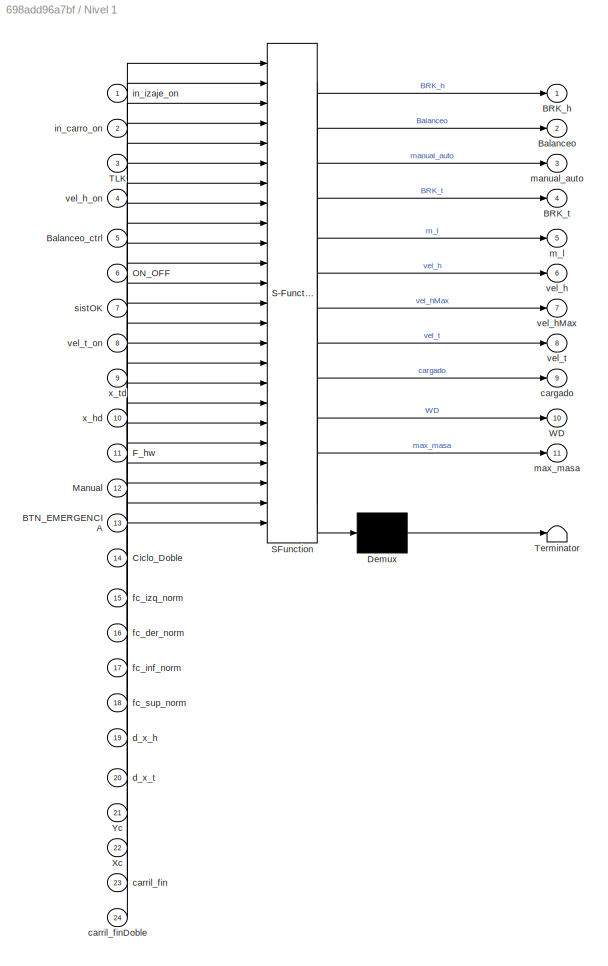
BLOCK [SubSystem] Nivel 1
  ErrorFcn = Stateflow.Translate.translate
  PermitHierarchicalResolution = ExplicitOnly
  PortSchema = {"entries":[{"content":{"sides":[{"content":{"connectorIds":["In22","In21","In11","In20","In19","In9","In10","In8","In4","In13","In15","In16","In17","In18","In3","In14","In12","In5","In6","In7"]},"type":"ConnectorPlacement.EquallySpacedRectSide","uuid":"68c99711-1ca5-49d6-a421-ad202abad7a3"},{"content":{"connectorIds":["Out5","Out8","Out6","Out7","Out9","Out11","Out2","Out3","Out4","Out1","Out10"]...<+608ch>
  Ports = [24, 11]
  RequestExecContextInheritance = off
  SFBlockType = Chart
  TreatAsAtomicUnit = on
BLOCK [Demux] Nivel 1/ Demux 
  Outputs = 1
  Ports = [1, 1]
BLOCK [S-Function] Nivel 1/ SFunction 
  EnableBusSupport = on
  FunctionName = sf_sfun
  Parameters = CI_t,H_c,M_cMax,M_l_max,M_l_nom,M_s,P_h_nom,Y_sb,a_hMax,a_tMax,d_t,g,v_hMax_0,v_hMax_l,v_tMax
  PortCounts = [24 12]
  Ports = [24, 12]
  SFcnIsStateOwnerBlock = off
  SFunctionDeploymentMode = off
  Tag = Stateflow S-Function 9
BLOCK [Terminator] Nivel 1/ Terminator 
BLOCK [Outport] Nivel 1/BRK_h
BLOCK [Outport] Nivel 1/BRK_t
  Port = 4
BLOCK [Inport] Nivel 1/BTN_EMERGENCIA
  Port = 13
BLOCK [Outport] Nivel 1/Balanceo
  Port = 2
BLOCK [Inport] Nivel 1/Balanceo_ctrl
  Port = 5
BLOCK [Inport] Nivel 1/Ciclo_Doble
  Port = 14
BLOCK [Inport] Nivel 1/F_hw
  Port = 11
BLOCK [Inport] Nivel 1/Manual
  Port = 12
BLOCK [Inport] Nivel 1/ON_OFF
  Port = 6
BLOCK [Inport] Nivel 1/TLK
  Port = 3
BLOCK [Outport] Nivel 1/WD
  Port = 10
BLOCK [Inport] Nivel 1/Xc
  Port = 22
BLOCK [Inport] Nivel 1/Yc
  Port = 21
BLOCK [Outport] Nivel 1/cargado
  Port = 9
BLOCK [Inport] Nivel 1/carril_fin
  Port = 23
BLOCK [Inport] Nivel 1/carril_finDoble
  Port = 24
BLOCK [Inport] Nivel 1/d_x_h
  Port = 19
BLOCK [Inport] Nivel 1/d_x_t
  Port = 20
BLOCK [Inport] Nivel 1/fc_der_norm
  Port = 16
BLOCK [Inport] Nivel 1/fc_inf_norm
  Port = 17
BLOCK [Inport] Nivel 1/fc_izq_norm
  Port = 15
BLOCK [Inport] Nivel 1/fc_sup_norm
  Port = 18
BLOCK [Inport] Nivel 1/in_carro_on
  Port = 2
BLOCK [Inport] Nivel 1/in_izaje_on
BLOCK [Outport] Nivel 1/m_l
  Port = 5
BLOCK [Outport] Nivel 1/manual_auto
  Port = 3
BLOCK [Outport] Nivel 1/max_masa
  Port = 11
BLOCK [Inport] Nivel 1/sistOK
  Port = 7
BLOCK [Outport] Nivel 1/vel_h
  Port = 6
BLOCK [Outport] Nivel 1/vel_hMax
  Port = 7
BLOCK [Inport] Nivel 1/vel_h_on
  Port = 4
BLOCK [Outport] Nivel 1/vel_t
  Port = 8
BLOCK [Inport] Nivel 1/vel_t_on
  Port = 8
BLOCK [Inport] Nivel 1/x_hd
  Port = 10
BLOCK [Inport] Nivel 1/x_td
  Port = 9
BLOCK [SubSystem] Nivel 2
  Ports = [16, 8]
  RequestExecContextInheritance = off
BLOCK [Saturate] Nivel 2/0.1 de v_hMax_0
  LowerLimit = -0.1*v_hMax_0
  UpperLimit = 0
BLOCK [Inport] Nivel 2/Balanceo_ctrl
BLOCK [Constant] Nivel 2/Constant
  Value = 0
BLOCK [Constant] Nivel 2/Constant1
  NameLocation = right
  Value = 0
BLOCK [Constant] Nivel 2/Constant2
  Value = 0
BLOCK [Constant] Nivel 2/Constant3
  Value = Kd_bal
BLOCK [Constant] Nivel 2/Constant4
  Value = Kp_bal
BLOCK [Constant] Nivel 2/Constant5
  Value = Y_t0
BLOCK [Constant] Nivel 2/Constant6
  Value = 0
BLOCK [SubSystem] Nivel 2/Control PD Balanceo
  Ports = [3, 1]
  RequestExecContextInheritance = off
BLOCK [Constant] Nivel 2/Control PD Balanceo/Constant2
  Value = 0
BLOCK [Delay] Nivel 2/Control PD Balanceo/Delay One Step
  DelayLength = 1
  InputPortMap = u0
  Ports = [1, 1]
  SampleTime = 1e-3
BLOCK [Gain] Nivel 2/Control PD Balanceo/Gain1
  Gain = 1/d_t
BLOCK [Inport] Nivel 2/Control PD Balanceo/Kd_bal
  Port = 2
BLOCK [Inport] Nivel 2/Control PD Balanceo/Kp_bal
BLOCK [Product] Nivel 2/Control PD Balanceo/Product
  Ports = [2, 1]
BLOCK [Product] Nivel 2/Control PD Balanceo/Product1
  Ports = [2, 1]
BLOCK [Sum] Nivel 2/Control PD Balanceo/Sum1
  Inputs = |+-
  Ports = [2, 1]
BLOCK [Sum] Nivel 2/Control PD Balanceo/Sum2
  Inputs = |+-
  Ports = [2, 1]
BLOCK [Sum] Nivel 2/Control PD Balanceo/Sum3
  Inputs = ++|
  Ports = [2, 1]
BLOCK [Outport] Nivel 2/Control PD Balanceo/d_x_t*
BLOCK [Inport] Nivel 2/Control PD Balanceo/theta
  Port = 3
BLOCK [SubSystem] Nivel 2/Control PID Carro
  Ports = [2, 1]
  RequestExecContextInheritance = off
BLOCK [Delay] Nivel 2/Control PID Carro/Delay One Step
  DelayLength = 1
  InputPortMap = u0
  Ports = [1, 1]
  SampleTime = 1e-3
BLOCK [Delay] Nivel 2/Control PID Carro/Delay One Step1
  DelayLength = 1
  InputPortMap = u0
  Ports = [1, 1]
  SampleTime = 1e-3
BLOCK [Delay] Nivel 2/Control PID Carro/Delay One Step2
  DelayLength = 1
  InputPortMap = u0
  NameLocation = top
  Ports = [1, 1]
  SampleTime = 1e-3
BLOCK [Delay] Nivel 2/Control PID Carro/Delay One Step3
  DelayLength = 1
  InputPortMap = u0
  Ports = [1, 1]
  SampleTime = 1e-3
BLOCK [Gain] Nivel 2/Control PID Carro/Gain
  Gain = bat
BLOCK [Gain] Nivel 2/Control PID Carro/Gain1
  Gain = ksat
BLOCK [Gain] Nivel 2/Control PID Carro/Gain2
  Gain = ksiat
BLOCK [Gain] Nivel 2/Control PID Carro/Gain3
  Gain = b_eq_t
  NameLocation = left
BLOCK [Gain] Nivel 2/Control PID Carro/Gain4
  Gain = 1/d_t
BLOCK [Gain] Nivel 2/Control PID Carro/Gain5
  Gain = 0.5*d_t
BLOCK [Gain] Nivel 2/Control PID Carro/Gain6
  Gain = 1/d_t
BLOCK [Sum] Nivel 2/Control PID Carro/Sum
  Inputs = |+-
  Ports = [2, 1]
BLOCK [Sum] Nivel 2/Control PID Carro/Sum1
  Inputs = +++
  Ports = [3, 1]
BLOCK [Sum] Nivel 2/Control PID Carro/Sum2
  Inputs = |+-
  Ports = [2, 1]
BLOCK [Sum] Nivel 2/Control PID Carro/Sum3
  Inputs = |++
  Ports = [2, 1]
BLOCK [Sum] Nivel 2/Control PID Carro/Sum4
  Inputs = ++|
  Ports = [2, 1]
BLOCK [Sum] Nivel 2/Control PID Carro/Sum5
  Inputs = |+-
  Ports = [2, 1]
BLOCK [Sum] Nivel 2/Control PID Carro/Sum6
  Inputs = |++
  Ports = [2, 1]
BLOCK [Outport] Nivel 2/Control PID Carro/T_tm*
BLOCK [Inport] Nivel 2/Control PID Carro/x_td
BLOCK [Inport] Nivel 2/Control PID Carro/x_td*
  Port = 2
BLOCK [SubSystem] Nivel 2/Control PID Izaje
  Ports = [2, 1]
  RequestExecContextInheritance = off
BLOCK [Delay] Nivel 2/Control PID Izaje/Delay One Step
  DelayLength = 1
  InputPortMap = u0
  Ports = [1, 1]
  SampleTime = 1e-3
BLOCK [Delay] Nivel 2/Control PID Izaje/Delay One Step1
  DelayLength = 1
  InputPortMap = u0
  Ports = [1, 1]
  SampleTime = 1e-3
BLOCK [Delay] Nivel 2/Control PID Izaje/Delay One Step2
  DelayLength = 1
  InputPortMap = u0
  NameLocation = top
  Ports = [1, 1]
  SampleTime = 1e-3
BLOCK [Delay] Nivel 2/Control PID Izaje/Delay One Step3
  DelayLength = 1
  InputPortMap = u0
  Ports = [1, 1]
  SampleTime = 1e-3
BLOCK [Gain] Nivel 2/Control PID Izaje/Gain
  Gain = bah
BLOCK [Gain] Nivel 2/Control PID Izaje/Gain1
  Gain = ksah
BLOCK [Gain] Nivel 2/Control PID Izaje/Gain2
  Gain = ksiah
BLOCK [Gain] Nivel 2/Control PID Izaje/Gain3
  Gain = b_eq_h
  NameLocation = left
BLOCK [Gain] Nivel 2/Control PID Izaje/Gain4
  Gain = 1/d_t
BLOCK [Gain] Nivel 2/Control PID Izaje/Gain5
  Gain = 0.5*d_t
BLOCK [Gain] Nivel 2/Control PID Izaje/Gain6
  Gain = 1/d_t
BLOCK [SubSystem] Nivel 2/Control PID Izaje/PID Izaje
  Commented = on
  Ports = [2, 1]
  RequestExecContextInheritance = off
BLOCK [Delay] Nivel 2/Control PID Izaje/PID Izaje/Delay One Step
  DelayLength = 1
  InputPortMap = u0
  Ports = [1, 1]
  SampleTime = 1e-3
BLOCK [Delay] Nivel 2/Control PID Izaje/PID Izaje/Delay One Step1
  DelayLength = 1
  InputPortMap = u0
  Ports = [1, 1]
  SampleTime = 1e-3
BLOCK [Delay] Nivel 2/Control PID Izaje/PID Izaje/Delay One Step2
  DelayLength = 1
  InputPortMap = u0
  NameLocation = top
  Ports = [1, 1]
  SampleTime = 1e-3
BLOCK [Delay] Nivel 2/Control PID Izaje/PID Izaje/Delay One Step3
  DelayLength = 1
  InputPortMap = u0
  Ports = [1, 1]
  SampleTime = 1e-3
BLOCK [Gain] Nivel 2/Control PID Izaje/PID Izaje/Gain
  Gain = bah
BLOCK [Gain] Nivel 2/Control PID Izaje/PID Izaje/Gain1
  Gain = ksah
BLOCK [Gain] Nivel 2/Control PID Izaje/PID Izaje/Gain2
  Gain = ksiah
BLOCK [Gain] Nivel 2/Control PID Izaje/PID Izaje/Gain3
  Gain = b_eq_h
  NameLocation = left
BLOCK [Gain] Nivel 2/Control PID Izaje/PID Izaje/Gain4
  Gain = 1/1e-3
BLOCK [Gain] Nivel 2/Control PID Izaje/PID Izaje/Gain5
  Gain = 0.5*1e-3
BLOCK [Gain] Nivel 2/Control PID Izaje/PID Izaje/Gain6
  Gain = 1/1e-3
BLOCK [Sum] Nivel 2/Control PID Izaje/PID Izaje/Sum
  Inputs = |+-
  Ports = [2, 1]
BLOCK [Sum] Nivel 2/Control PID Izaje/PID Izaje/Sum1
  Inputs = +++
  Ports = [3, 1]
BLOCK [Sum] Nivel 2/Control PID Izaje/PID Izaje/Sum2
  Inputs = ++|
  Ports = [2, 1]
BLOCK [Sum] Nivel 2/Control PID Izaje/PID Izaje/Sum3
  Inputs = |+-
  Ports = [2, 1]
BLOCK [Sum] Nivel 2/Control PID Izaje/PID Izaje/Sum4
  Inputs = |++
  Ports = [2, 1]
BLOCK [Sum] Nivel 2/Control PID Izaje/PID Izaje/Sum5
  Inputs = |+-
  Ports = [2, 1]
BLOCK [Sum] Nivel 2/Control PID Izaje/PID Izaje/Sum6
  Inputs = |++
  Ports = [2, 1]
BLOCK [Outport] Nivel 2/Control PID Izaje/PID Izaje/T_hm
BLOCK [Inport] Nivel 2/Control PID Izaje/PID Izaje/x_h
  Port = 2
BLOCK [Inport] Nivel 2/Control PID Izaje/PID Izaje/x_h*
BLOCK [Sum] Nivel 2/Control PID Izaje/Sum
  Inputs = |+-
  Ports = [2, 1]
BLOCK [Sum] Nivel 2/Control PID Izaje/Sum1
  Inputs = +++
  Ports = [3, 1]
BLOCK [Sum] Nivel 2/Control PID Izaje/Sum2
  Inputs = ++|
  Ports = [2, 1]
BLOCK [Sum] Nivel 2/Control PID Izaje/Sum3
  Inputs = |+-
  Ports = [2, 1]
BLOCK [Sum] Nivel 2/Control PID Izaje/Sum4
  Inputs = |++
  Ports = [2, 1]
BLOCK [Sum] Nivel 2/Control PID Izaje/Sum5
  Inputs = |+-
  Ports = [2, 1]
BLOCK [Sum] Nivel 2/Control PID Izaje/Sum6
  Inputs = |++
  Ports = [2, 1]
BLOCK [Outport] Nivel 2/Control PID Izaje/T_hm*
BLOCK [Inport] Nivel 2/Control PID Izaje/x_hd
BLOCK [Inport] Nivel 2/Control PID Izaje/x_hd*
  Port = 2
BLOCK [Inport] Nivel 2/EMER_H
  Port = 16
BLOCK [Inport] Nivel 2/EMER_T
  Port = 15
BLOCK [From] Nivel 2/From
  GotoTag = x_hd
BLOCK [Gain] Nivel 2/Gain
  Gain = -1
  NameLocation = left
BLOCK [Gain] Nivel 2/Gain1
  Gain = 0.9
BLOCK [Gain] Nivel 2/Gain2
  Gain = 15
BLOCK [Goto] Nivel 2/Goto
  GotoTag = x_hd
BLOCK [Integrator] Nivel 2/Integrator
  InitialCondition = CI_t
  Ports = [1, 1]
BLOCK [Integrator] Nivel 2/Integrator1
  InitialCondition = CI_h
  Ports = [1, 1]
BLOCK [SubSystem] Nivel 2/MATLAB Function
  ErrorFcn = Stateflow.Translate.translate
  PermitHierarchicalResolution = ExplicitOnly
  Ports = [4, 2]
  RequestExecContextInheritance = off
  SFBlockType = MATLAB Function
  TreatAsAtomicUnit = on
BLOCK [Demux] Nivel 2/MATLAB Function/ Demux 
  Outputs = 1
  Ports = [1, 1]
BLOCK [S-Function] Nivel 2/MATLAB Function/ SFunction 
  EnableBusSupport = on
  FunctionName = sf_sfun
  PortCounts = [4 3]
  Ports = [4, 3]
  SFcnIsStateOwnerBlock = off
  SFunctionDeploymentMode = off
  Tag = Stateflow S-Function 10
BLOCK [Terminator] Nivel 2/MATLAB Function/ Terminator 
BLOCK [Outport] Nivel 2/MATLAB Function/Kd
  Port = 2
BLOCK [Outport] Nivel 2/MATLAB Function/Kp
BLOCK [Inport] Nivel 2/MATLAB Function/kd_bal
  Port = 3
BLOCK [Inport] Nivel 2/MATLAB Function/kp_bal
  Port = 4
BLOCK [Inport] Nivel 2/MATLAB Function/l_h
  Port = 2
BLOCK [Inport] Nivel 2/MATLAB Function/m_l
BLOCK [SubSystem] Nivel 2/Mod Torque Carro
  Commented = on
  Ports = [1, 1]
  RequestExecContextInheritance = off
BLOCK [StateSpace] Nivel 2/Mod Torque Carro/Filtro PB 1° Orden
  A = -1/tau_tm
  C = 1/tau_tm
  D = 0
  InitialCondition = 0
  Ports = [1, 1]
BLOCK [Outport] Nivel 2/Mod Torque Carro/T_tm
BLOCK [Inport] Nivel 2/Mod Torque Carro/T_tm*
BLOCK [Saturate] Nivel 2/Mod Torque Carro/T_tmMax
  LowerLimit = -T_tmMax
  UpperLimit = T_tmMax
BLOCK [SubSystem] Nivel 2/Mod Torque Carro1
  Ports = [1, 1]
  RequestExecContextInheritance = off
BLOCK [Gain] Nivel 2/Mod Torque Carro1/Gain
  Gain = 1/tau_tm
BLOCK [Integrator] Nivel 2/Mod Torque Carro1/Integrator
  InitialConditionSource = external
  Ports = [2, 1]
BLOCK [Sum] Nivel 2/Mod Torque Carro1/Sum
  Inputs = |+-
  Ports = [2, 1]
BLOCK [Outport] Nivel 2/Mod Torque Carro1/T_tm
BLOCK [Inport] Nivel 2/Mod Torque Carro1/T_tm*
BLOCK [Saturate] Nivel 2/Mod Torque Carro1/T_tmMax
  LowerLimit = -T_tmMax
  UpperLimit = T_tmMax
BLOCK [SubSystem] Nivel 2/Mod Torque Izaje
  Commented = on
  Ports = [1, 1]
  RequestExecContextInheritance = off
BLOCK [StateSpace] Nivel 2/Mod Torque Izaje/Filtro PB 1° Orden
  A = -1/tau_hm
  C = 1/tau_hm
  D = 0
  InitialCondition = 0
  ParameterTunability = Unconstrained
  Ports = [1, 1]
BLOCK [Outport] Nivel 2/Mod Torque Izaje/T_hm
BLOCK [Inport] Nivel 2/Mod Torque Izaje/T_hm*
BLOCK [Saturate] Nivel 2/Mod Torque Izaje/T_hmMax
  LowerLimit = -T_hmMax
  UpperLimit = T_hmMax
BLOCK [SubSystem] Nivel 2/Mod Torque Izaje1
  Ports = [1, 1]
  RequestExecContextInheritance = off
BLOCK [Gain] Nivel 2/Mod Torque Izaje1/Gain
  Gain = 1/tau_hm
BLOCK [Integrator] Nivel 2/Mod Torque Izaje1/Integrator
  InitialConditionSource = external
  Ports = [2, 1]
BLOCK [Sum] Nivel 2/Mod Torque Izaje1/Sum
  Inputs = |+-
  Ports = [2, 1]
BLOCK [Outport] Nivel 2/Mod Torque Izaje1/T_hm
BLOCK [Inport] Nivel 2/Mod Torque Izaje1/T_hm*
BLOCK [Saturate] Nivel 2/Mod Torque Izaje1/T_hmMax
  LowerLimit = -T_hmMax
  UpperLimit = T_hmMax
BLOCK [Reference] Nivel 2/Saturation Dynamic  REF=simulink/Discontinuities/Saturation
Dynamic
  Ports = [3, 1]
  SourceBlock = simulink/Discontinuities/Saturation\nDynamic
  SourceProductBaseCode = SL
  SourceType = Saturation Dynamic
BLOCK [SubSystem] Nivel 2/Subsystem2
  Ports = [1, 1]
  RequestExecContextInheritance = off
BLOCK [Logic] Nivel 2/Subsystem2/AND
  AllPortsSameDT = off
  IconShape = distinctive
  Inputs = 3
  Operator = NAND
  OutDataTypeStr = boolean
  Ports = [3, 1]
BLOCK [Abs] Nivel 2/Subsystem2/Abs1
  SaturateOnIntegerOverflow = off
BLOCK [Abs] Nivel 2/Subsystem2/Abs2
  SaturateOnIntegerOverflow = off
BLOCK [Abs] Nivel 2/Subsystem2/Abs3
  SaturateOnIntegerOverflow = off
BLOCK [Reference] Nivel 2/Subsystem2/Compare To Constant1  REF=simulink/Logic and Bit
Operations/Compare
To Constant
  Ports = [1, 1]
  SourceBlock = simulink/Logic and Bit\nOperations/Compare\nTo Constant
  SourceProductBaseCode = SL
  SourceType = Compare To Constant
BLOCK [Reference] Nivel 2/Subsystem2/Compare To Constant2  REF=simulink/Logic and Bit
Operations/Compare
To Constant
  Ports = [1, 1]
  SourceBlock = simulink/Logic and Bit\nOperations/Compare\nTo Constant
  SourceProductBaseCode = SL
  SourceType = Compare To Constant
BLOCK [Reference] Nivel 2/Subsystem2/Compare To Constant3  REF=simulink/Logic and Bit
Operations/Compare
To Constant
  Ports = [1, 1]
  SourceBlock = simulink/Logic and Bit\nOperations/Compare\nTo Constant
  SourceProductBaseCode = SL
  SourceType = Compare To Constant
BLOCK [Memory] Nivel 2/Subsystem2/Memory
BLOCK [Memory] Nivel 2/Subsystem2/Memory1
BLOCK [Inport] Nivel 2/Subsystem2/d_x_hd
BLOCK [Outport] Nivel 2/Subsystem2/vel_h_on
BLOCK [SubSystem] Nivel 2/Subsystem3
  Ports = [1, 1]
  RequestExecContextInheritance = off
BLOCK [Logic] Nivel 2/Subsystem3/AND
  AllPortsSameDT = off
  IconShape = distinctive
  Inputs = 3
  Operator = NAND
  OutDataTypeStr = boolean
  Ports = [3, 1]
BLOCK [Abs] Nivel 2/Subsystem3/Abs1
  SaturateOnIntegerOverflow = off
BLOCK [Abs] Nivel 2/Subsystem3/Abs2
  SaturateOnIntegerOverflow = off
BLOCK [Abs] Nivel 2/Subsystem3/Abs3
  SaturateOnIntegerOverflow = off
BLOCK [Reference] Nivel 2/Subsystem3/Compare To Constant1  REF=simulink/Logic and Bit
Operations/Compare
To Constant
  Ports = [1, 1]
  SourceBlock = simulink/Logic and Bit\nOperations/Compare\nTo Constant
  SourceProductBaseCode = SL
  SourceType = Compare To Constant
BLOCK [Reference] Nivel 2/Subsystem3/Compare To Constant2  REF=simulink/Logic and Bit
Operations/Compare
To Constant
  Ports = [1, 1]
  SourceBlock = simulink/Logic and Bit\nOperations/Compare\nTo Constant
  SourceProductBaseCode = SL
  SourceType = Compare To Constant
BLOCK [Reference] Nivel 2/Subsystem3/Compare To Constant3  REF=simulink/Logic and Bit
Operations/Compare
To Constant
  Ports = [1, 1]
  SourceBlock = simulink/Logic and Bit\nOperations/Compare\nTo Constant
  SourceProductBaseCode = SL
  SourceType = Compare To Constant
BLOCK [Memory] Nivel 2/Subsystem3/Memory
BLOCK [Memory] Nivel 2/Subsystem3/Memory1
BLOCK [Inport] Nivel 2/Subsystem3/d_x_td
BLOCK [Outport] Nivel 2/Subsystem3/vel_t_on
BLOCK [Sum] Nivel 2/Sum
  Inputs = -+|
  Ports = [2, 1]
BLOCK [Sum] Nivel 2/Sum4
  Inputs = |+-
  Ports = [2, 1]
BLOCK [Switch] Nivel 2/Switch
  Criteria = u2 ~= 0
  InputSameDT = off
  SaturateOnIntegerOverflow = off
BLOCK [Switch] Nivel 2/Switch1
  Criteria = u2 ~= 0
  InputSameDT = off
  SaturateOnIntegerOverflow = off
BLOCK [Switch] Nivel 2/Switch2
  Criteria = u2 ~= 0
  InputSameDT = off
  SaturateOnIntegerOverflow = off
BLOCK [Switch] Nivel 2/Switch3
  Criteria = u2 ~= 0
  InputSameDT = off
  SaturateOnIntegerOverflow = off
BLOCK [Switch] Nivel 2/Switch4
  Criteria = u2 ~= 0
  InputSameDT = off
  SaturateOnIntegerOverflow = off
BLOCK [Switch] Nivel 2/Switch5
  Criteria = u2 ~= 0
  InputSameDT = off
  SaturateOnIntegerOverflow = off
BLOCK [Switch] Nivel 2/Switch6
  Criteria = u2 ~= 0
  InputSameDT = off
  SaturateOnIntegerOverflow = off
BLOCK [Outport] Nivel 2/T_hm
  Port = 3
BLOCK [Outport] Nivel 2/T_tm
BLOCK [RateLimiter] Nivel 2/a_hMax
  FallingSlewLimit = -a_hMax
  RisingSlewLimit = a_hMax
  SampleTimeMode = inherited
BLOCK [RateLimiter] Nivel 2/a_hMax 2
  FallingSlewLimit = -a_hMax
  RisingSlewLimit = a_hMax
  SampleTimeMode = inherited
BLOCK [RateLimiter] Nivel 2/a_tMax
  FallingSlewLimit = -a_tMax
  RisingSlewLimit = a_tMax
  SampleTimeMode = inherited
BLOCK [Inport] Nivel 2/d_x_hd
  Port = 14
BLOCK [Outport] Nivel 2/d_x_hd*
  Port = 8
BLOCK [Inport] Nivel 2/d_x_td
  Port = 13
BLOCK [Outport] Nivel 2/d_x_td*
  Port = 7
BLOCK [Inport] Nivel 2/in_carro
  Port = 7
BLOCK [Inport] Nivel 2/in_izaje
  Port = 6
BLOCK [Inport] Nivel 2/m_l
  Port = 2
BLOCK [Inport] Nivel 2/manual_auto
  Port = 11
BLOCK [Inport] Nivel 2/max_masa
  Port = 12
BLOCK [Inport] Nivel 2/theta
  Port = 3
BLOCK [Saturate] Nivel 2/v_tMax
  LowerLimit = -v_tMax
  UpperLimit = v_tMax
BLOCK [Inport] Nivel 2/vel_h
  Port = 8
BLOCK [Inport] Nivel 2/vel_hMax
  Port = 10
BLOCK [Outport] Nivel 2/vel_h_on
  Port = 4
BLOCK [Inport] Nivel 2/vel_t
  Port = 9
BLOCK [Outport] Nivel 2/vel_t_on
  Port = 2
BLOCK [Inport] Nivel 2/x_hd
  Port = 5
BLOCK [Outport] Nivel 2/x_hd*
  Port = 6
BLOCK [Inport] Nivel 2/x_td
  Port = 4
BLOCK [Outport] Nivel 2/x_td*
  Port = 5
BLOCK [PushButtonBlock] Push Button1
  ButtonText = RESET
BLOCK [Record] Record
  FileSettingsInternal = {"entries":[{"content":{"excelSettings":{"content":{},"type":"Streamout.ExcelSettings"}},"type":"Streamout.FileSettingStorage","uuid":"bed3a6e0-7c45-46bb-b7f7-e86d5775e973"}],"packageUris":["http://schema.mathworks.com/mf0/streamout_blocks/R2020a"],"version":"1.0"}
  Layout = [1 1]
  Ports = [2]
  SignalsInternal = {"entries":[{"content":{"signals":[{"content":{"blockPath":["ProyectoGlobal_AyCD_Cantu_LagoTejo/Record"],"channel":[],"dimensions":[1],"domain":"proyectoglobal_aycd_cantu_lagotejo/record","lineColor":"#ff6929","plots":[1],"port":1,"sid":[],"signalID":9,"signalName":"x_l"},"type":"RecordBlkView.Signal","uuid":"2278e07a-91c8-4deb-bc74-502acb9eaad0"},{"content":{"blockPath":["ProyectoGlobal_AyCD_Cant...<+442ch>
  VisualizationBindings = {"xyplotplugin":{"info":[{"series":[{"bindingParametersList":[{"parameter":"Y-Axis","signalID":12,"signalName":"y_l"},{"parameter":"X-Axis","signalID":9,"signalName":"x_l"}],"seriesID":935}],"subplotID":1}]}}
BLOCK [Scope] Scope1
  Floating = off
  NumInputPorts = 3
  Ports = [3]
  ScopeSpecificationString = Simulink.scopes.TimeScopeBlockCfg('CurrentConfiguration', extmgr.ConfigurationSet(extmgr.Configuration('Core','General UI',true,'FigureColor',[1 1 1]),extmgr.Configuration('Core','Source UI',true),extmgr.Configuration('Sources','WiredSimulink',true,'DataLoggingVariableName','ScopeData2'),extmgr.Configuration('Visuals','Time Domain',true,'SerializedDisplays',{struct('MinYLimReal','-0.125','MaxYLimR...<+1462ch>
BLOCK [LampBlock] Simple
  LabelPosition = Hide
BLOCK [SliderBlock] Slider
  NameLocation = left
  ScaleMax = 3
  ScaleMin = -3
  TickInterval = 1
BLOCK [SliderBlock] Slider1
  ScaleMax = +4
  ScaleMin = -4
  TickInterval = 1
BLOCK [SubSystem] Subsystem
  Ports = [1, 1]
  RequestExecContextInheritance = off
BLOCK [Inport] Subsystem/ 
BLOCK [Logic] Subsystem/AND
  AllPortsSameDT = off
  IconShape = distinctive
  OutDataTypeStr = boolean
  Ports = [2, 1]
BLOCK [Constant] Subsystem/BTN_RESET_PRESSED
  Value = 0
BLOCK [Outport] Subsystem/Out1
BLOCK [Scope] Traslacion de carga
  Floating = off
  NumInputPorts = 2
  Ports = [2]
  ScopeSpecificationString = Simulink.scopes.TimeScopeBlockCfg('CurrentConfiguration', extmgr.ConfigurationSet(extmgr.Configuration('Core','General UI',true,'FigureColor',[1 1 1]),extmgr.Configuration('Core','Source UI',true),extmgr.Configuration('Sources','WiredSimulink',true,'DataLoggingVariableName','ScopeData2'),extmgr.Configuration('Visuals','Time Domain',true,'SerializedDisplays',{struct('MinYLimReal','-23.42208','MaxYL...<+1895ch>
BLOCK [LampBlock] Twistlocks
  LabelPosition = Hide
BLOCK [Scope] Velocidad de izaje carga
  Floating = off
  NumInputPorts = 2
  Ports = [2]
  ScopeSpecificationString = Simulink.scopes.TimeScopeBlockCfg('CurrentConfiguration', extmgr.ConfigurationSet(extmgr.Configuration('Core','General UI',true,'FigureColor',[1 1 1]),extmgr.Configuration('Core','Source UI',true),extmgr.Configuration('Sources','WiredSimulink',true,'DataLoggingVariableName','ScopeData4'),extmgr.Configuration('Visuals','Time Domain',true,'SerializedDisplays',{struct('MinYLimReal','-3.67595','MaxYLi...<+1900ch>
BLOCK [Scope] Velocidad de traslacion carga
  Floating = off
  NumInputPorts = 2
  Ports = [2]
  ScopeSpecificationString = Simulink.scopes.TimeScopeBlockCfg('CurrentConfiguration', extmgr.ConfigurationSet(extmgr.Configuration('Core','General UI',true,'FigureColor',[1 1 1]),extmgr.Configuration('Core','Source UI',true),extmgr.Configuration('Sources','WiredSimulink',true,'DataLoggingVariableName','ScopeData5'),extmgr.Configuration('Visuals','Time Domain',true,'SerializedDisplays',{struct('MinYLimReal','-5.04343','MaxYLi...<+1898ch>
BLOCK [LampBlock] ble   
  LabelPosition = Hide
BLOCK [Constant] carril_fin
  Value = 16
BLOCK [Constant] carril_finDoble
  Value = 16
BLOCK [Constant] in_carro
  Value = 0
BLOCK [Constant] in_izaje
  Value = -2
BLOCK [From] x_l
  GotoTag = x_l
BLOCK [From] y_l
  GotoTag = y_l
ANNOTATION (root): HMI
ANNOTATION (root): NIVEL 0
ANNOTATION (root): NIVEL 1
ANNOTATION (root): NIVEL 2
ANNOTATION (root): SISTEMA FÍSICO
ANNOTATION (root): VISUALIZACION
LINE Clock2:1 -> MATLAB Function1:1
LINE Compare To Zero2:1 -> Nivel 1:1
LINE Compare To Zero7:1 -> Nivel 1:2
LINE Compare To Zero:1 -> MATLAB Function1:9
NET Constant17:1 -> Manual Switch1:1, Manual Switch2:1, Manual Switch3:1, Manual Switch4:1, Manual Switch5:1, Manual Switch7:1
NET Constant18:1 -> Manual Switch1:2, Manual Switch2:2, Manual Switch3:2, Manual Switch4:2, Manual Switch5:2, Manual Switch7:2
LINE Estado Final de Frenos/BRK_h:1 -> Estado Final de Frenos/Switch2:1
LINE Estado Final de Frenos/BRK_t:1 -> Estado Final de Frenos/Switch3:1
NET Estado Final de Frenos/Constant:1 -> Estado Final de Frenos/NOT1:1, Estado Final de Frenos/NOT:1, Estado Final de Frenos/OR1:2, Estado Final de Frenos/OR:2
LINE Estado Final de Frenos/Demux:1 -> Estado Final de Frenos/Switch4:3
LINE Estado Final de Frenos/Demux:2 -> Estado Final de Frenos/OR2:1
LINE Estado Final de Frenos/Demux:3 -> Estado Final de Frenos/OR3:2
LINE Estado Final de Frenos/EMER_T:1 -> Estado Final de Frenos/OR1:1
LINE Estado Final de Frenos/EMER_h:1 -> Estado Final de Frenos/OR:1
LINE Estado Final de Frenos/NOT1:1 -> Estado Final de Frenos/OR3:1
LINE Estado Final de Frenos/NOT:1 -> Estado Final de Frenos/OR2:2
LINE Estado Final de Frenos/OR1:1 -> Estado Final de Frenos/Switch3:2
LINE Estado Final de Frenos/OR2:1 -> Estado Final de Frenos/Switch3:3
LINE Estado Final de Frenos/OR3:1 -> Estado Final de Frenos/Switch2:3
LINE Estado Final de Frenos/OR:1 -> Estado Final de Frenos/Switch2:2
LINE Estado Final de Frenos/Orden_Nivel0:1 -> Estado Final de Frenos/Demux:1
LINE Estado Final de Frenos/Switch2:1 -> Estado Final de Frenos/BRK_h_def:1
LINE Estado Final de Frenos/Switch3:1 -> Estado Final de Frenos/BRK_t_def:1
LINE Estado Final de Frenos/Switch4:1 -> Estado Final de Frenos/manual_auto_def:1
LINE Estado Final de Frenos/manual_auto_Nivel1:1 -> Estado Final de Frenos/Switch4:1
LINE Estado Final de Frenos/sistOK:1 -> Estado Final de Frenos/Switch4:2
LINE Estado Final de Frenos10/BRK_h:1 -> Estado Final de Frenos10/Product5:2
LINE Estado Final de Frenos10/BRK_t:1 -> Estado Final de Frenos10/Product3:2
LINE Estado Final de Frenos10/Demux:1 -> Estado Final de Frenos10/Product1:2
LINE Estado Final de Frenos10/Demux:2 -> Estado Final de Frenos10/Product2:1
LINE Estado Final de Frenos10/Demux:3 -> Estado Final de Frenos10/Product4:1
NET Estado Final de Frenos10/EMER_T:1 -> Estado Final de Frenos10/NOT1:1, Estado Final de Frenos10/Product2:2
NET Estado Final de Frenos10/EMER_h:1 -> Estado Final de Frenos10/NOT2:1, Estado Final de Frenos10/Product4:2
LINE Estado Final de Frenos10/NOT1:1 -> Estado Final de Frenos10/Product3:1
LINE Estado Final de Frenos10/NOT2:1 -> Estado Final de Frenos10/Product5:1
LINE Estado Final de Frenos10/NOT:1 -> Estado Final de Frenos10/Product1:1
LINE Estado Final de Frenos10/Orden_Nivel0:1 -> Estado Final de Frenos10/Demux:1
LINE Estado Final de Frenos10/Product1:1 -> Estado Final de Frenos10/Sum:2
LINE Estado Final de Frenos10/Product2:1 -> Estado Final de Frenos10/Sum1:1
LINE Estado Final de Frenos10/Product3:1 -> Estado Final de Frenos10/Sum1:2
LINE Estado Final de Frenos10/Product4:1 -> Estado Final de Frenos10/Sum2:1
LINE Estado Final de Frenos10/Product5:1 -> Estado Final de Frenos10/Sum2:2
LINE Estado Final de Frenos10/Product:1 -> Estado Final de Frenos10/Sum:1
LINE Estado Final de Frenos10/Sum1:1 -> Estado Final de Frenos10/BRK_t_def:1
LINE Estado Final de Frenos10/Sum2:1 -> Estado Final de Frenos10/BRK_h_def:1
LINE Estado Final de Frenos10/Sum:1 -> Estado Final de Frenos10/manual_auto_def:1
LINE Estado Final de Frenos10/manual_auto_Nivel1:1 -> Estado Final de Frenos10/Product:1
NET Estado Final de Frenos10/sistOK:1 -> Estado Final de Frenos10/NOT:1, Estado Final de Frenos10/Product:2
LINE Estado Final de Frenos2/BRK_h:1 -> Estado Final de Frenos2/Switch2:3
LINE Estado Final de Frenos2/BRK_t:1 -> Estado Final de Frenos2/Switch3:3
LINE Estado Final de Frenos2/Demux:1 -> Estado Final de Frenos2/Switch4:3
LINE Estado Final de Frenos2/Demux:2 -> Estado Final de Frenos2/Switch3:1
LINE Estado Final de Frenos2/Demux:3 -> Estado Final de Frenos2/Switch2:1
LINE Estado Final de Frenos2/EMER_T:1 -> Estado Final de Frenos2/Switch3:2
LINE Estado Final de Frenos2/EMER_h:1 -> Estado Final de Frenos2/Switch2:2
LINE Estado Final de Frenos2/Orden_Nivel0:1 -> Estado Final de Frenos2/Demux:1
LINE Estado Final de Frenos2/Switch2:1 -> Estado Final de Frenos2/BRK_h_def:1
LINE Estado Final de Frenos2/Switch3:1 -> Estado Final de Frenos2/BRK_t_def:1
LINE Estado Final de Frenos2/Switch4:1 -> Estado Final de Frenos2/manual_auto_def:1
LINE Estado Final de Frenos2/manual_auto_Nivel1:1 -> Estado Final de Frenos2/Switch4:1
LINE Estado Final de Frenos2/sistOK:1 -> Estado Final de Frenos2/Switch4:2
LINE Estado Final de Frenos:1 -> Goto42:1
LINE Estado Final de Frenos:2 -> Goto60:1
LINE Estado Final de Frenos:3 -> Goto61:1
LINE From106:1 -> Nivel 1:10
LINE From107:1 -> Nivel 1:4
LINE From108:1 -> Nivel 1:8
LINE From109:1 -> Nivel 1:11
LINE From10:1 -> Nivel 2:1
LINE From112:1 -> Nivel 1:15
LINE From113:1 -> Nivel 1:3
LINE From114:1 -> Nivel 1:16
LINE From115:1 -> Nivel 1:17
LINE From116:1 -> Nivel 1:12
LINE From117:1 -> Nivel 1:6
LINE From118:1 -> Nivel 1:5
LINE From119:1 -> Estado Final de Frenos:5
LINE From11:1 -> Nivel 2:13
LINE From120:1 -> Nivel 1:14
LINE From121:1 -> Estado Final de Frenos:6
LINE From122:1 -> Nivel 1:18
LINE From123:1 -> Estado Final de Frenos:4
LINE From124:1 -> Nivel 1:21
LINE From125:1 -> Nivel 1:9
LINE From126:1 -> Estado Final de Frenos:7
LINE From127:1 -> Nivel 1:22
LINE From128:1 -> Nivel 1:7
LINE From129:1 -> Nivel 1:19
LINE From12:1 -> Nivel 2:15
LINE From131:1 -> Nivel 2:12
LINE From132:1 -> Nivel 2:11
LINE From133:1 -> Nivel 2:10
LINE From134:1 -> Nivel 2:9
LINE From135:1 -> Nivel 2:6
LINE From136:1 -> Nivel 2:7
LINE From137:1 -> Nivel 2:8
LINE From138:1 -> Nivel 2:4
LINE From139:1 -> Nivel 2:3
LINE From13:1 -> Nivel 2:14
LINE From140:1 -> Nivel 2:5
LINE From142:1 -> Nivel 2:2
LINE From146:1 -> Compare To Zero2:1
LINE From147:1 -> Compare To Zero7:1
LINE From149:1 -> Nivel 0:10
LINE From14:1 -> Nivel 2:16
LINE From150:1 -> Nivel 0:11
LINE From151:1 -> Nivel 0:3
LINE From152:1 -> Nivel 0:8
LINE From153:1 -> Memory12:1
LINE From154:1 -> Nivel 0:9
LINE From155:1 -> Nivel 0:2
LINE From156:1 -> Nivel 0:1
LINE From157:1 -> Nivel 0:5
LINE From158:1 -> Nivel 0:7
LINE From159:1 -> Nivel 0:6
LINE From160:1 -> Memory10:1
LINE From162:1 -> Memory13:1
LINE From1:1 -> Nivel 1:13
LINE From23:1 -> Memory5:1
LINE From25:1 -> Modelo Fisico Carro-Izaje-Carga:5
LINE From2:1 -> Fuerza cable de izaje:1
LINE From30:1 -> Modelo Fisico Carro-Izaje-Carga:8
LINE From31:1 -> Modelo Fisico Carro-Izaje-Carga:9
LINE From32:1 -> Modelo Fisico Carro-Izaje-Carga:10
LINE From34:1 -> Modelo Fisico Carro-Izaje-Carga:7
LINE From35:1 -> MATLAB Function1:6
LINE From36:1 -> MATLAB Function1:12
LINE From37:1 -> MATLAB Function1:17
LINE From38:1 -> MATLAB Function1:18
LINE From39:1 -> MATLAB Function1:19
LINE From40:1 -> MATLAB Function1:11
LINE From41:1 -> MATLAB Function1:15
LINE From42:1 -> MATLAB Function1:13
LINE From43:1 -> MATLAB Function1:2
LINE From44:1 -> Modelo Fisico Carro-Izaje-Carga:4
LINE From45:1 -> MATLAB Function1:16
LINE From46:1 -> MATLAB Function1:8
LINE From47:1 -> MATLAB Function1:10
LINE From48:1 -> MATLAB Function1:7
LINE From4:1 -> Modelo Fisico Carro-Izaje-Carga:6
LINE From50:1 -> MATLAB Function1:5
LINE From51:1 -> MATLAB Function1:4
LINE From52:1 -> MATLAB Function1:14
LINE From53:1 -> MATLAB Function1:3
LINE From5:1 -> Scope1:1
LINE From60:1 -> Nivel 1:20
LINE From6:1 -> Scope1:2
LINE From7:1 -> Scope1:3
LINE From86:1 -> Gain3:1
LINE From88:1 -> Izaje de carga:1
LINE From89:1 -> Traslacion de carga:1
LINE From8:1 -> Modelo Fisico Carro-Izaje-Carga:2
LINE From90:1 -> Traslacion de carga:2
LINE From91:1 -> Izaje de carga:2
LINE From92:1 -> Velocidad de traslacion carga:1
LINE From93:1 -> Velocidad de izaje carga:1
LINE From94:1 -> Velocidad de izaje carga:2
LINE From95:1 -> Velocidad de traslacion carga:2
LINE From99:1 -> Subsystem:1
LINE From9:1 -> Modelo Fisico Carro-Izaje-Carga:3
LINE From:1 -> Compare To Zero:1
LINE Gain3:1 -> Angulo de balanceo:1
LINE Manual Switch1:1 -> Goto63:1
LINE Manual Switch2:1 -> Goto37:1
LINE Manual Switch3:1 -> Goto19:1
LINE Manual Switch4:1 -> Goto20:1
LINE Manual Switch5:1 -> Goto36:1
LINE Manual Switch7:1 -> Goto62:1
LINE Memory10:1 -> Nivel 0:13
LINE Memory12:1 -> Nivel 0:4
LINE Memory13:1 -> Nivel 0:12
LINE Memory5:1 -> Modelo Fisico Carro-Izaje-Carga:1
LINE Modelo Fisico Carro-Izaje-Carga/BRK_h:1 -> Modelo Fisico Carro-Izaje-Carga/Frenos:2
LINE Modelo Fisico Carro-Izaje-Carga/BRK_hE:1 -> Modelo Fisico Carro-Izaje-Carga/Frenos:3
LINE Modelo Fisico Carro-Izaje-Carga/BRK_t:1 -> Modelo Fisico Carro-Izaje-Carga/Frenos:1
LINE Modelo Fisico Carro-Izaje-Carga/Carro/Carro Eje Rápido-Lento/1//M_eq_t:1 -> Modelo Fisico Carro-Izaje-Carga/Carro/Carro Eje Rápido-Lento/Integrator2:1
LINE Modelo Fisico Carro-Izaje-Carga/Carro/Carro Eje Rápido-Lento/F_tw:1 -> Modelo Fisico Carro-Izaje-Carga/Carro/Carro Eje Rápido-Lento/Sum1:1
LINE Modelo Fisico Carro-Izaje-Carga/Carro/Carro Eje Rápido-Lento/Gain3:1 -> Modelo Fisico Carro-Izaje-Carga/Carro/Carro Eje Rápido-Lento/Sum1:2
NET Modelo Fisico Carro-Izaje-Carga/Carro/Carro Eje Rápido-Lento/Integrator2:1 -> Modelo Fisico Carro-Izaje-Carga/Carro/Carro Eje Rápido-Lento/Integrator3:1, Modelo Fisico Carro-Izaje-Carga/Carro/Carro Eje Rápido-Lento/b_eq_t:1, Modelo Fisico Carro-Izaje-Carga/Carro/Carro Eje Rápido-Lento/d_x_td:1
LINE Modelo Fisico Carro-Izaje-Carga/Carro/Carro Eje Rápido-Lento/Integrator3:1 -> Modelo Fisico Carro-Izaje-Carga/Carro/Carro Eje Rápido-Lento/x_td:1
LINE Modelo Fisico Carro-Izaje-Carga/Carro/Carro Eje Rápido-Lento/Sum1:1 -> Modelo Fisico Carro-Izaje-Carga/Carro/Carro Eje Rápido-Lento/1//M_eq_t:1
LINE Modelo Fisico Carro-Izaje-Carga/Carro/Carro Eje Rápido-Lento/Sum:1 -> Modelo Fisico Carro-Izaje-Carga/Carro/Carro Eje Rápido-Lento/Gain3:1
LINE Modelo Fisico Carro-Izaje-Carga/Carro/Carro Eje Rápido-Lento/T_tb:1 -> Modelo Fisico Carro-Izaje-Carga/Carro/Carro Eje Rápido-Lento/Sum:2
LINE Modelo Fisico Carro-Izaje-Carga/Carro/Carro Eje Rápido-Lento/T_tm:1 -> Modelo Fisico Carro-Izaje-Carga/Carro/Carro Eje Rápido-Lento/Sum:1
LINE Modelo Fisico Carro-Izaje-Carga/Carro/Carro Eje Rápido-Lento/b_eq_t:1 -> Modelo Fisico Carro-Izaje-Carga/Carro/Carro Eje Rápido-Lento/Sum1:3
NET Modelo Fisico Carro-Izaje-Carga/Carro/Carro Eje Rápido-Lento:1 -> Modelo Fisico Carro-Izaje-Carga/Carro/Goto:1, Modelo Fisico Carro-Izaje-Carga/Carro/x_td:1
NET Modelo Fisico Carro-Izaje-Carga/Carro/Carro Eje Rápido-Lento:2 -> Modelo Fisico Carro-Izaje-Carga/Carro/Goto2:1, Modelo Fisico Carro-Izaje-Carga/Carro/d_x_td:1
LINE Modelo Fisico Carro-Izaje-Carga/Carro/Carro y Cable de Carro/1//M_t:1 -> Modelo Fisico Carro-Izaje-Carga/Carro/Carro y Cable de Carro/Integrator2:1
LINE Modelo Fisico Carro-Izaje-Carga/Carro/Carro y Cable de Carro/F_hw:1 -> Modelo Fisico Carro-Izaje-Carga/Carro/Carro y Cable de Carro/Gain:1
LINE Modelo Fisico Carro-Izaje-Carga/Carro/Carro y Cable de Carro/F_tw:1 -> Modelo Fisico Carro-Izaje-Carga/Carro/Carro y Cable de Carro/Sum1:1
LINE Modelo Fisico Carro-Izaje-Carga/Carro/Carro y Cable de Carro/Gain:1 -> Modelo Fisico Carro-Izaje-Carga/Carro/Carro y Cable de Carro/Product:1
NET Modelo Fisico Carro-Izaje-Carga/Carro/Carro y Cable de Carro/Integrator2:1 -> Modelo Fisico Carro-Izaje-Carga/Carro/Carro y Cable de Carro/Integrator:1, Modelo Fisico Carro-Izaje-Carga/Carro/Carro y Cable de Carro/b_t:1, Modelo Fisico Carro-Izaje-Carga/Carro/Carro y Cable de Carro/d_x_t:1
LINE Modelo Fisico Carro-Izaje-Carga/Carro/Carro y Cable de Carro/Integrator:1 -> Modelo Fisico Carro-Izaje-Carga/Carro/Carro y Cable de Carro/x_t:1
LINE Modelo Fisico Carro-Izaje-Carga/Carro/Carro y Cable de Carro/Product:1 -> Modelo Fisico Carro-Izaje-Carga/Carro/Carro y Cable de Carro/Sum1:2
LINE Modelo Fisico Carro-Izaje-Carga/Carro/Carro y Cable de Carro/Sin:1 -> Modelo Fisico Carro-Izaje-Carga/Carro/Carro y Cable de Carro/Product:2
LINE Modelo Fisico Carro-Izaje-Carga/Carro/Carro y Cable de Carro/Sum1:1 -> Modelo Fisico Carro-Izaje-Carga/Carro/Carro y Cable de Carro/1//M_t:1
LINE Modelo Fisico Carro-Izaje-Carga/Carro/Carro y Cable de Carro/b_t:1 -> Modelo Fisico Carro-Izaje-Carga/Carro/Carro y Cable de Carro/Sum1:3
LINE Modelo Fisico Carro-Izaje-Carga/Carro/Carro y Cable de Carro/theta:1 -> Modelo Fisico Carro-Izaje-Carga/Carro/Carro y Cable de Carro/Sin:1
NET Modelo Fisico Carro-Izaje-Carga/Carro/Carro y Cable de Carro:1 -> Modelo Fisico Carro-Izaje-Carga/Carro/Goto1:1, Modelo Fisico Carro-Izaje-Carga/Carro/x_t:1
NET Modelo Fisico Carro-Izaje-Carga/Carro/Carro y Cable de Carro:2 -> Modelo Fisico Carro-Izaje-Carga/Carro/Goto3:1, Modelo Fisico Carro-Izaje-Carga/Carro/d_x_t:1
LINE Modelo Fisico Carro-Izaje-Carga/Carro/F_hw:1 -> Modelo Fisico Carro-Izaje-Carga/Carro/Carro y Cable de Carro:2
LINE Modelo Fisico Carro-Izaje-Carga/Carro/From1:1 -> Modelo Fisico Carro-Izaje-Carga/Carro/Fuerza Cable Carro:4
LINE Modelo Fisico Carro-Izaje-Carga/Carro/From2:1 -> Modelo Fisico Carro-Izaje-Carga/Carro/Fuerza Cable Carro:1
LINE Modelo Fisico Carro-Izaje-Carga/Carro/From3:1 -> Modelo Fisico Carro-Izaje-Carga/Carro/Fuerza Cable Carro:2
LINE Modelo Fisico Carro-Izaje-Carga/Carro/From4:1 -> Modelo Fisico Carro-Izaje-Carga/Carro/Carro Eje Rápido-Lento:1
LINE Modelo Fisico Carro-Izaje-Carga/Carro/From5:1 -> Modelo Fisico Carro-Izaje-Carga/Carro/Carro y Cable de Carro:3
LINE Modelo Fisico Carro-Izaje-Carga/Carro/From:1 -> Modelo Fisico Carro-Izaje-Carga/Carro/Fuerza Cable Carro:3
LINE Modelo Fisico Carro-Izaje-Carga/Carro/Fuerza Cable Carro/Gain1:1 -> Modelo Fisico Carro-Izaje-Carga/Carro/Fuerza Cable Carro/Sum2:1
LINE Modelo Fisico Carro-Izaje-Carga/Carro/Fuerza Cable Carro/Gain:1 -> Modelo Fisico Carro-Izaje-Carga/Carro/Fuerza Cable Carro/Sum2:2
LINE Modelo Fisico Carro-Izaje-Carga/Carro/Fuerza Cable Carro/Sum1:1 -> Modelo Fisico Carro-Izaje-Carga/Carro/Fuerza Cable Carro/Gain1:1
LINE Modelo Fisico Carro-Izaje-Carga/Carro/Fuerza Cable Carro/Sum2:1 -> Modelo Fisico Carro-Izaje-Carga/Carro/Fuerza Cable Carro/F_tw:1
LINE Modelo Fisico Carro-Izaje-Carga/Carro/Fuerza Cable Carro/Sum:1 -> Modelo Fisico Carro-Izaje-Carga/Carro/Fuerza Cable Carro/Gain:1
LINE Modelo Fisico Carro-Izaje-Carga/Carro/Fuerza Cable Carro/d_x_t:1 -> Modelo Fisico Carro-Izaje-Carga/Carro/Fuerza Cable Carro/Sum1:2
LINE Modelo Fisico Carro-Izaje-Carga/Carro/Fuerza Cable Carro/d_x_td:1 -> Modelo Fisico Carro-Izaje-Carga/Carro/Fuerza Cable Carro/Sum1:1
LINE Modelo Fisico Carro-Izaje-Carga/Carro/Fuerza Cable Carro/x_t:1 -> Modelo Fisico Carro-Izaje-Carga/Carro/Fuerza Cable Carro/Sum:2
LINE Modelo Fisico Carro-Izaje-Carga/Carro/Fuerza Cable Carro/x_td:1 -> Modelo Fisico Carro-Izaje-Carga/Carro/Fuerza Cable Carro/Sum:1
LINE Modelo Fisico Carro-Izaje-Carga/Carro/Fuerza Cable Carro:1 -> Modelo Fisico Carro-Izaje-Carga/Carro/Goto4:1
LINE Modelo Fisico Carro-Izaje-Carga/Carro/T_tb:1 -> Modelo Fisico Carro-Izaje-Carga/Carro/Carro Eje Rápido-Lento:2
LINE Modelo Fisico Carro-Izaje-Carga/Carro/T_tm:1 -> Modelo Fisico Carro-Izaje-Carga/Carro/Carro Eje Rápido-Lento:3
LINE Modelo Fisico Carro-Izaje-Carga/Carro/theta:1 -> Modelo Fisico Carro-Izaje-Carga/Carro/Carro y Cable de Carro:1
NET Modelo Fisico Carro-Izaje-Carga/Carro:1 -> Modelo Fisico Carro-Izaje-Carga/Goto2:1, Modelo Fisico Carro-Izaje-Carga/theta y l:3
NET Modelo Fisico Carro-Izaje-Carga/Carro:2 -> Modelo Fisico Carro-Izaje-Carga/Goto1:1, Modelo Fisico Carro-Izaje-Carga/theta y l:6
LINE Modelo Fisico Carro-Izaje-Carga/Carro:3 -> Modelo Fisico Carro-Izaje-Carga/x_td:1
NET Modelo Fisico Carro-Izaje-Carga/Carro:4 -> Modelo Fisico Carro-Izaje-Carga/Gain3:1, Modelo Fisico Carro-Izaje-Carga/d_x_td:1
LINE Modelo Fisico Carro-Izaje-Carga/Chart:1 -> Modelo Fisico Carro-Izaje-Carga/Goto8:1
LINE Modelo Fisico Carro-Izaje-Carga/Chart:2 -> Modelo Fisico Carro-Izaje-Carga/yc:1
LINE Modelo Fisico Carro-Izaje-Carga/Chart:3 -> Modelo Fisico Carro-Izaje-Carga/graficar:1
LINE Modelo Fisico Carro-Izaje-Carga/Chart:4 -> Modelo Fisico Carro-Izaje-Carga/xc:1
LINE Modelo Fisico Carro-Izaje-Carga/Chart:5 -> Modelo Fisico Carro-Izaje-Carga/m_l_real:1
LINE Modelo Fisico Carro-Izaje-Carga/Constant1:1 -> Modelo Fisico Carro-Izaje-Carga/theta y l:4
LINE Modelo Fisico Carro-Izaje-Carga/Frenos/Constant1:1 -> Modelo Fisico Carro-Izaje-Carga/Frenos/Manual Switch1:2
LINE Modelo Fisico Carro-Izaje-Carga/Frenos/Constant:1 -> Modelo Fisico Carro-Izaje-Carga/Frenos/Manual Switch1:1
LINE Modelo Fisico Carro-Izaje-Carga/Frenos/Freno Carro/Constant:1 -> Modelo Fisico Carro-Izaje-Carga/Frenos/Freno Carro/Switch:1
LINE Modelo Fisico Carro-Izaje-Carga/Frenos/Freno Carro/Gain:1 -> Modelo Fisico Carro-Izaje-Carga/Frenos/Freno Carro/Saturation:1
LINE Modelo Fisico Carro-Izaje-Carga/Frenos/Freno Carro/On_Off:1 -> Modelo Fisico Carro-Izaje-Carga/Frenos/Freno Carro/Switch:2
LINE Modelo Fisico Carro-Izaje-Carga/Frenos/Freno Carro/Saturation:1 -> Modelo Fisico Carro-Izaje-Carga/Frenos/Freno Carro/Switch:3
LINE Modelo Fisico Carro-Izaje-Carga/Frenos/Freno Carro/Switch:1 -> Modelo Fisico Carro-Izaje-Carga/Frenos/Freno Carro/T_tb:1
LINE Modelo Fisico Carro-Izaje-Carga/Frenos/Freno Carro/w_tm:1 -> Modelo Fisico Carro-Izaje-Carga/Frenos/Freno Carro/Gain:1
LINE Modelo Fisico Carro-Izaje-Carga/Frenos/Freno Carro:1 -> Modelo Fisico Carro-Izaje-Carga/Frenos/T_tb:1
LINE Modelo Fisico Carro-Izaje-Carga/Frenos/Freno Emergencia Izaje/Constant:1 -> Modelo Fisico Carro-Izaje-Carga/Frenos/Freno Emergencia Izaje/Switch:1
LINE Modelo Fisico Carro-Izaje-Carga/Frenos/Freno Emergencia Izaje/Gain:1 -> Modelo Fisico Carro-Izaje-Carga/Frenos/Freno Emergencia Izaje/Saturation:1
LINE Modelo Fisico Carro-Izaje-Carga/Frenos/Freno Emergencia Izaje/On_Off:1 -> Modelo Fisico Carro-Izaje-Carga/Frenos/Freno Emergencia Izaje/Switch:2
LINE Modelo Fisico Carro-Izaje-Carga/Frenos/Freno Emergencia Izaje/Saturation:1 -> Modelo Fisico Carro-Izaje-Carga/Frenos/Freno Emergencia Izaje/Switch:3
LINE Modelo Fisico Carro-Izaje-Carga/Frenos/Freno Emergencia Izaje/Switch:1 -> Modelo Fisico Carro-Izaje-Carga/Frenos/Freno Emergencia Izaje/T_hEb:1
LINE Modelo Fisico Carro-Izaje-Carga/Frenos/Freno Emergencia Izaje/w_hd:1 -> Modelo Fisico Carro-Izaje-Carga/Frenos/Freno Emergencia Izaje/Gain:1
LINE Modelo Fisico Carro-Izaje-Carga/Frenos/Freno Emergencia Izaje:1 -> Modelo Fisico Carro-Izaje-Carga/Frenos/T_hEb:1
LINE Modelo Fisico Carro-Izaje-Carga/Frenos/Freno Izaje/Constant:1 -> Modelo Fisico Carro-Izaje-Carga/Frenos/Freno Izaje/Switch:1
LINE Modelo Fisico Carro-Izaje-Carga/Frenos/Freno Izaje/Gain:1 -> Modelo Fisico Carro-Izaje-Carga/Frenos/Freno Izaje/Saturation:1
LINE Modelo Fisico Carro-Izaje-Carga/Frenos/Freno Izaje/On_Off:1 -> Modelo Fisico Carro-Izaje-Carga/Frenos/Freno Izaje/Switch:2
LINE Modelo Fisico Carro-Izaje-Carga/Frenos/Freno Izaje/Saturation:1 -> Modelo Fisico Carro-Izaje-Carga/Frenos/Freno Izaje/Switch:3
LINE Modelo Fisico Carro-Izaje-Carga/Frenos/Freno Izaje/Switch:1 -> Modelo Fisico Carro-Izaje-Carga/Frenos/Freno Izaje/T_hb:1
LINE Modelo Fisico Carro-Izaje-Carga/Frenos/Freno Izaje/w_hm:1 -> Modelo Fisico Carro-Izaje-Carga/Frenos/Freno Izaje/Gain:1
LINE Modelo Fisico Carro-Izaje-Carga/Frenos/Freno Izaje:1 -> Modelo Fisico Carro-Izaje-Carga/Frenos/T_hb:1
NET Modelo Fisico Carro-Izaje-Carga/Frenos/Manual Switch1:1 -> Modelo Fisico Carro-Izaje-Carga/Frenos/Freno Carro:1, Modelo Fisico Carro-Izaje-Carga/Frenos/Freno Emergencia Izaje:1, Modelo Fisico Carro-Izaje-Carga/Frenos/Freno Izaje:1
LINE Modelo Fisico Carro-Izaje-Carga/Frenos/w_hd:1 -> Modelo Fisico Carro-Izaje-Carga/Frenos/Freno Emergencia Izaje:2
LINE Modelo Fisico Carro-Izaje-Carga/Frenos/w_hm:1 -> Modelo Fisico Carro-Izaje-Carga/Frenos/Freno Izaje:2
LINE Modelo Fisico Carro-Izaje-Carga/Frenos/w_tm:1 -> Modelo Fisico Carro-Izaje-Carga/Frenos/Freno Carro:2
LINE Modelo Fisico Carro-Izaje-Carga/Frenos:1 -> Modelo Fisico Carro-Izaje-Carga/Goto16:1
LINE Modelo Fisico Carro-Izaje-Carga/Frenos:2 -> Modelo Fisico Carro-Izaje-Carga/Goto17:1
LINE Modelo Fisico Carro-Izaje-Carga/Frenos:3 -> Modelo Fisico Carro-Izaje-Carga/Goto18:1
LINE Modelo Fisico Carro-Izaje-Carga/From10:1 -> Modelo Fisico Carro-Izaje-Carga/Izaje:4
LINE Modelo Fisico Carro-Izaje-Carga/From11:1 -> Modelo Fisico Carro-Izaje-Carga/Izaje:5
LINE Modelo Fisico Carro-Izaje-Carga/From12:1 -> Modelo Fisico Carro-Izaje-Carga/Memory2:1
LINE Modelo Fisico Carro-Izaje-Carga/From13:1 -> Modelo Fisico Carro-Izaje-Carga/Memory1:1
LINE Modelo Fisico Carro-Izaje-Carga/From14:1 -> Modelo Fisico Carro-Izaje-Carga/Chart:1
LINE Modelo Fisico Carro-Izaje-Carga/From15:1 -> Modelo Fisico Carro-Izaje-Carga/Modos de Contacto:6
LINE Modelo Fisico Carro-Izaje-Carga/From17:1 -> Modelo Fisico Carro-Izaje-Carga/Frenos:6
LINE Modelo Fisico Carro-Izaje-Carga/From1:1 -> Modelo Fisico Carro-Izaje-Carga/Carro:1
LINE Modelo Fisico Carro-Izaje-Carga/From2:1 -> Modelo Fisico Carro-Izaje-Carga/Carro:3
LINE Modelo Fisico Carro-Izaje-Carga/From3:1 -> Modelo Fisico Carro-Izaje-Carga/Carro:2
LINE Modelo Fisico Carro-Izaje-Carga/From4:1 -> Modelo Fisico Carro-Izaje-Carga/Modos de Contacto:1
LINE Modelo Fisico Carro-Izaje-Carga/From5:1 -> Modelo Fisico Carro-Izaje-Carga/Frenos:4
LINE Modelo Fisico Carro-Izaje-Carga/From6:1 -> Modelo Fisico Carro-Izaje-Carga/Frenos:5
LINE Modelo Fisico Carro-Izaje-Carga/From7:1 -> Modelo Fisico Carro-Izaje-Carga/Modos de Contacto:2
LINE Modelo Fisico Carro-Izaje-Carga/From8:1 -> Modelo Fisico Carro-Izaje-Carga/Limites de operacion:3
LINE Modelo Fisico Carro-Izaje-Carga/From9:1 -> Modelo Fisico Carro-Izaje-Carga/Limites de operacion:4
LINE Modelo Fisico Carro-Izaje-Carga/From:1 -> Modelo Fisico Carro-Izaje-Carga/Limites de operacion:2
LINE Modelo Fisico Carro-Izaje-Carga/Gain1:1 -> Modelo Fisico Carro-Izaje-Carga/Goto20:1
LINE Modelo Fisico Carro-Izaje-Carga/Gain2:1 -> Modelo Fisico Carro-Izaje-Carga/Goto21:1
LINE Modelo Fisico Carro-Izaje-Carga/Gain3:1 -> Modelo Fisico Carro-Izaje-Carga/Goto19:1
LINE Modelo Fisico Carro-Izaje-Carga/Izaje/From1:1 -> Modelo Fisico Carro-Izaje-Carga/Izaje/Fuerza cable de Izaje:4
LINE Modelo Fisico Carro-Izaje-Carga/Izaje/From2:1 -> Modelo Fisico Carro-Izaje-Carga/Izaje/Fuerza cable de Izaje:2
LINE Modelo Fisico Carro-Izaje-Carga/Izaje/From:1 -> Modelo Fisico Carro-Izaje-Carga/Izaje/Izaje Eje Rapido-Lento:1
LINE Modelo Fisico Carro-Izaje-Carga/Izaje/Fuerza cable de Izaje/Gain6:1 -> Modelo Fisico Carro-Izaje-Carga/Izaje/Fuerza cable de Izaje/Product2:1
LINE Modelo Fisico Carro-Izaje-Carga/Izaje/Fuerza cable de Izaje/Gain7:1 -> Modelo Fisico Carro-Izaje-Carga/Izaje/Fuerza cable de Izaje/Product3:1
LINE Modelo Fisico Carro-Izaje-Carga/Izaje/Fuerza cable de Izaje/Product2:1 -> Modelo Fisico Carro-Izaje-Carga/Izaje/Fuerza cable de Izaje/Sum6:2
LINE Modelo Fisico Carro-Izaje-Carga/Izaje/Fuerza cable de Izaje/Product3:1 -> Modelo Fisico Carro-Izaje-Carga/Izaje/Fuerza cable de Izaje/Sum6:1
LINE Modelo Fisico Carro-Izaje-Carga/Izaje/Fuerza cable de Izaje/Saturation:1 -> Modelo Fisico Carro-Izaje-Carga/Izaje/Fuerza cable de Izaje/F_hw:1
LINE Modelo Fisico Carro-Izaje-Carga/Izaje/Fuerza cable de Izaje/Sum2:1 -> Modelo Fisico Carro-Izaje-Carga/Izaje/Fuerza cable de Izaje/Gain6:1
LINE Modelo Fisico Carro-Izaje-Carga/Izaje/Fuerza cable de Izaje/Sum6:1 -> Modelo Fisico Carro-Izaje-Carga/Izaje/Fuerza cable de Izaje/Saturation:1
LINE Modelo Fisico Carro-Izaje-Carga/Izaje/Fuerza cable de Izaje/Sum7:1 -> Modelo Fisico Carro-Izaje-Carga/Izaje/Fuerza cable de Izaje/Gain7:1
LINE Modelo Fisico Carro-Izaje-Carga/Izaje/Fuerza cable de Izaje/b_w y k_w/Constant1:1 -> Modelo Fisico Carro-Izaje-Carga/Izaje/Fuerza cable de Izaje/b_w y k_w/Divide2:1
LINE Modelo Fisico Carro-Izaje-Carga/Izaje/Fuerza cable de Izaje/b_w y k_w/Constant2:1 -> Modelo Fisico Carro-Izaje-Carga/Izaje/Fuerza cable de Izaje/b_w y k_w/Sum1:2
LINE Modelo Fisico Carro-Izaje-Carga/Izaje/Fuerza cable de Izaje/b_w y k_w/Constant3:1 -> Modelo Fisico Carro-Izaje-Carga/Izaje/Fuerza cable de Izaje/b_w y k_w/Product:1
LINE Modelo Fisico Carro-Izaje-Carga/Izaje/Fuerza cable de Izaje/b_w y k_w/Constant4:1 -> Modelo Fisico Carro-Izaje-Carga/Izaje/Fuerza cable de Izaje/b_w y k_w/Sum2:2
LINE Modelo Fisico Carro-Izaje-Carga/Izaje/Fuerza cable de Izaje/b_w y k_w/Divide2:1 -> Modelo Fisico Carro-Izaje-Carga/Izaje/Fuerza cable de Izaje/b_w y k_w/K_w:1
LINE Modelo Fisico Carro-Izaje-Carga/Izaje/Fuerza cable de Izaje/b_w y k_w/Gain1:1 -> Modelo Fisico Carro-Izaje-Carga/Izaje/Fuerza cable de Izaje/b_w y k_w/Sum1:1
LINE Modelo Fisico Carro-Izaje-Carga/Izaje/Fuerza cable de Izaje/b_w y k_w/Gain6:1 -> Modelo Fisico Carro-Izaje-Carga/Izaje/Fuerza cable de Izaje/b_w y k_w/Sum2:1
LINE Modelo Fisico Carro-Izaje-Carga/Izaje/Fuerza cable de Izaje/b_w y k_w/Product:1 -> Modelo Fisico Carro-Izaje-Carga/Izaje/Fuerza cable de Izaje/b_w y k_w/b_w:1
LINE Modelo Fisico Carro-Izaje-Carga/Izaje/Fuerza cable de Izaje/b_w y k_w/Sum1:1 -> Modelo Fisico Carro-Izaje-Carga/Izaje/Fuerza cable de Izaje/b_w y k_w/Divide2:2
LINE Modelo Fisico Carro-Izaje-Carga/Izaje/Fuerza cable de Izaje/b_w y k_w/Sum2:1 -> Modelo Fisico Carro-Izaje-Carga/Izaje/Fuerza cable de Izaje/b_w y k_w/Product:2
NET Modelo Fisico Carro-Izaje-Carga/Izaje/Fuerza cable de Izaje/b_w y k_w/l_h:1 -> Modelo Fisico Carro-Izaje-Carga/Izaje/Fuerza cable de Izaje/b_w y k_w/Gain1:1, Modelo Fisico Carro-Izaje-Carga/Izaje/Fuerza cable de Izaje/b_w y k_w/Gain6:1
LINE Modelo Fisico Carro-Izaje-Carga/Izaje/Fuerza cable de Izaje/b_w y k_w:1 -> Modelo Fisico Carro-Izaje-Carga/Izaje/Fuerza cable de Izaje/Product3:2
LINE Modelo Fisico Carro-Izaje-Carga/Izaje/Fuerza cable de Izaje/b_w y k_w:2 -> Modelo Fisico Carro-Izaje-Carga/Izaje/Fuerza cable de Izaje/Product2:2
LINE Modelo Fisico Carro-Izaje-Carga/Izaje/Fuerza cable de Izaje/d_l:1 -> Modelo Fisico Carro-Izaje-Carga/Izaje/Fuerza cable de Izaje/Sum7:1
LINE Modelo Fisico Carro-Izaje-Carga/Izaje/Fuerza cable de Izaje/d_l_h:1 -> Modelo Fisico Carro-Izaje-Carga/Izaje/Fuerza cable de Izaje/Sum7:2
LINE Modelo Fisico Carro-Izaje-Carga/Izaje/Fuerza cable de Izaje/l:1 -> Modelo Fisico Carro-Izaje-Carga/Izaje/Fuerza cable de Izaje/Sum2:1
NET Modelo Fisico Carro-Izaje-Carga/Izaje/Fuerza cable de Izaje/l_h:1 -> Modelo Fisico Carro-Izaje-Carga/Izaje/Fuerza cable de Izaje/Sum2:2, Modelo Fisico Carro-Izaje-Carga/Izaje/Fuerza cable de Izaje/b_w y k_w:1
NET Modelo Fisico Carro-Izaje-Carga/Izaje/Fuerza cable de Izaje:1 -> Modelo Fisico Carro-Izaje-Carga/Izaje/F_hw:1, Modelo Fisico Carro-Izaje-Carga/Izaje/Goto12:1
LINE Modelo Fisico Carro-Izaje-Carga/Izaje/Izaje Eje Rapido-Lento/1//M_eq_h:1 -> Modelo Fisico Carro-Izaje-Carga/Izaje/Izaje Eje Rapido-Lento/Integrator2:1
LINE Modelo Fisico Carro-Izaje-Carga/Izaje/Izaje Eje Rapido-Lento/Constant:1 -> Modelo Fisico Carro-Izaje-Carga/Izaje/Izaje Eje Rapido-Lento/Sum3:1
LINE Modelo Fisico Carro-Izaje-Carga/Izaje/Izaje Eje Rapido-Lento/F_hw:1 -> Modelo Fisico Carro-Izaje-Carga/Izaje/Izaje Eje Rapido-Lento/Sum1:1
LINE Modelo Fisico Carro-Izaje-Carga/Izaje/Izaje Eje Rapido-Lento/Gain1:1 -> Modelo Fisico Carro-Izaje-Carga/Izaje/Izaje Eje Rapido-Lento/Sum2:2
LINE Modelo Fisico Carro-Izaje-Carga/Izaje/Izaje Eje Rapido-Lento/Gain2:1 -> Modelo Fisico Carro-Izaje-Carga/Izaje/Izaje Eje Rapido-Lento/Sum2:1
LINE Modelo Fisico Carro-Izaje-Carga/Izaje/Izaje Eje Rapido-Lento/Gain:1 -> Modelo Fisico Carro-Izaje-Carga/Izaje/Izaje Eje Rapido-Lento/d_l_h:1
NET Modelo Fisico Carro-Izaje-Carga/Izaje/Izaje Eje Rapido-Lento/Integrator2:1 -> Modelo Fisico Carro-Izaje-Carga/Izaje/Izaje Eje Rapido-Lento/Gain:1, Modelo Fisico Carro-Izaje-Carga/Izaje/Izaje Eje Rapido-Lento/Integrator3:1, Modelo Fisico Carro-Izaje-Carga/Izaje/Izaje Eje Rapido-Lento/b_eq_h:1, Modelo Fisico Carro-Izaje-Carga/Izaje/Izaje Eje Rapido-Lento/d_x_hd:1
NET Modelo Fisico Carro-Izaje-Carga/Izaje/Izaje Eje Rapido-Lento/Integrator3:1 -> Modelo Fisico Carro-Izaje-Carga/Izaje/Izaje Eje Rapido-Lento/Sum3:2, Modelo Fisico Carro-Izaje-Carga/Izaje/Izaje Eje Rapido-Lento/x_hd:1
LINE Modelo Fisico Carro-Izaje-Carga/Izaje/Izaje Eje Rapido-Lento/Sum1:1 -> Modelo Fisico Carro-Izaje-Carga/Izaje/Izaje Eje Rapido-Lento/1//M_eq_h:1
LINE Modelo Fisico Carro-Izaje-Carga/Izaje/Izaje Eje Rapido-Lento/Sum2:1 -> Modelo Fisico Carro-Izaje-Carga/Izaje/Izaje Eje Rapido-Lento/Sum1:2
LINE Modelo Fisico Carro-Izaje-Carga/Izaje/Izaje Eje Rapido-Lento/Sum3:1 -> Modelo Fisico Carro-Izaje-Carga/Izaje/Izaje Eje Rapido-Lento/l_h:1
LINE Modelo Fisico Carro-Izaje-Carga/Izaje/Izaje Eje Rapido-Lento/Sum:1 -> Modelo Fisico Carro-Izaje-Carga/Izaje/Izaje Eje Rapido-Lento/Gain2:1
LINE Modelo Fisico Carro-Izaje-Carga/Izaje/Izaje Eje Rapido-Lento/T_hEb:1 -> Modelo Fisico Carro-Izaje-Carga/Izaje/Izaje Eje Rapido-Lento/Gain1:1
LINE Modelo Fisico Carro-Izaje-Carga/Izaje/Izaje Eje Rapido-Lento/T_hb:1 -> Modelo Fisico Carro-Izaje-Carga/Izaje/Izaje Eje Rapido-Lento/Sum:2
LINE Modelo Fisico Carro-Izaje-Carga/Izaje/Izaje Eje Rapido-Lento/T_hm:1 -> Modelo Fisico Carro-Izaje-Carga/Izaje/Izaje Eje Rapido-Lento/Sum:1
LINE Modelo Fisico Carro-Izaje-Carga/Izaje/Izaje Eje Rapido-Lento/b_eq_h:1 -> Modelo Fisico Carro-Izaje-Carga/Izaje/Izaje Eje Rapido-Lento/Sum1:3
LINE Modelo Fisico Carro-Izaje-Carga/Izaje/Izaje Eje Rapido-Lento:1 -> Modelo Fisico Carro-Izaje-Carga/Izaje/Goto2:1
LINE Modelo Fisico Carro-Izaje-Carga/Izaje/Izaje Eje Rapido-Lento:2 -> Modelo Fisico Carro-Izaje-Carga/Izaje/Goto1:1
LINE Modelo Fisico Carro-Izaje-Carga/Izaje/Izaje Eje Rapido-Lento:3 -> Modelo Fisico Carro-Izaje-Carga/Izaje/x_hd:1
LINE Modelo Fisico Carro-Izaje-Carga/Izaje/Izaje Eje Rapido-Lento:4 -> Modelo Fisico Carro-Izaje-Carga/Izaje/d_x_hd:1
LINE Modelo Fisico Carro-Izaje-Carga/Izaje/T_hEB:1 -> Modelo Fisico Carro-Izaje-Carga/Izaje/Izaje Eje Rapido-Lento:3
LINE Modelo Fisico Carro-Izaje-Carga/Izaje/T_hb:1 -> Modelo Fisico Carro-Izaje-Carga/Izaje/Izaje Eje Rapido-Lento:4
LINE Modelo Fisico Carro-Izaje-Carga/Izaje/T_hm:1 -> Modelo Fisico Carro-Izaje-Carga/Izaje/Izaje Eje Rapido-Lento:2
LINE Modelo Fisico Carro-Izaje-Carga/Izaje/d_l:1 -> Modelo Fisico Carro-Izaje-Carga/Izaje/Fuerza cable de Izaje:3
LINE Modelo Fisico Carro-Izaje-Carga/Izaje/l:1 -> Modelo Fisico Carro-Izaje-Carga/Izaje/Fuerza cable de Izaje:1
NET Modelo Fisico Carro-Izaje-Carga/Izaje:1 -> Modelo Fisico Carro-Izaje-Carga/Goto3:1, Modelo Fisico Carro-Izaje-Carga/x_hd:1
NET Modelo Fisico Carro-Izaje-Carga/Izaje:2 -> Modelo Fisico Carro-Izaje-Carga/Gain1:1, Modelo Fisico Carro-Izaje-Carga/Gain2:1, Modelo Fisico Carro-Izaje-Carga/Goto4:1, Modelo Fisico Carro-Izaje-Carga/d_x_hd:1
NET Modelo Fisico Carro-Izaje-Carga/Izaje:3 -> Modelo Fisico Carro-Izaje-Carga/F_hw:1, Modelo Fisico Carro-Izaje-Carga/Goto:1
LINE Modelo Fisico Carro-Izaje-Carga/Limites de operacion/Límites de Carro/Constant1:1 -> Modelo Fisico Carro-Izaje-Carga/Limites de operacion/Límites de Carro/Equal:2
LINE Modelo Fisico Carro-Izaje-Carga/Limites de operacion/Límites de Carro/Constant2:1 -> Modelo Fisico Carro-Izaje-Carga/Limites de operacion/Límites de Carro/Equal3:2
LINE Modelo Fisico Carro-Izaje-Carga/Limites de operacion/Límites de Carro/Constant3:1 -> Modelo Fisico Carro-Izaje-Carga/Limites de operacion/Límites de Carro/Equal2:2
LINE Modelo Fisico Carro-Izaje-Carga/Limites de operacion/Límites de Carro/Constant:1 -> Modelo Fisico Carro-Izaje-Carga/Limites de operacion/Límites de Carro/Equal1:2
LINE Modelo Fisico Carro-Izaje-Carga/Limites de operacion/Límites de Carro/Equal1:1 -> Modelo Fisico Carro-Izaje-Carga/Limites de operacion/Límites de Carro/fc_izq_ult:1
LINE Modelo Fisico Carro-Izaje-Carga/Limites de operacion/Límites de Carro/Equal2:1 -> Modelo Fisico Carro-Izaje-Carga/Limites de operacion/Límites de Carro/fc_der_norm:1
LINE Modelo Fisico Carro-Izaje-Carga/Limites de operacion/Límites de Carro/Equal3:1 -> Modelo Fisico Carro-Izaje-Carga/Limites de operacion/Límites de Carro/fc_der_ult:1
LINE Modelo Fisico Carro-Izaje-Carga/Limites de operacion/Límites de Carro/Equal:1 -> Modelo Fisico Carro-Izaje-Carga/Limites de operacion/Límites de Carro/fc_izq_norm:1
NET Modelo Fisico Carro-Izaje-Carga/Limites de operacion/Límites de Carro/x_t:1 -> Modelo Fisico Carro-Izaje-Carga/Limites de operacion/Límites de Carro/Equal1:1, Modelo Fisico Carro-Izaje-Carga/Limites de operacion/Límites de Carro/Equal2:1, Modelo Fisico Carro-Izaje-Carga/Limites de operacion/Límites de Carro/Equal3:1, Modelo Fisico Carro-Izaje-Carga/Limites de operacion/Límites de Carro/Equal:1
LINE Modelo Fisico Carro-Izaje-Carga/Limites de operacion/Límites de Carro:1 -> Modelo Fisico Carro-Izaje-Carga/Limites de operacion/fc_izq_norm:1
LINE Modelo Fisico Carro-Izaje-Carga/Limites de operacion/Límites de Carro:2 -> Modelo Fisico Carro-Izaje-Carga/Limites de operacion/fc_izq_ult:1
LINE Modelo Fisico Carro-Izaje-Carga/Limites de operacion/Límites de Carro:3 -> Modelo Fisico Carro-Izaje-Carga/Limites de operacion/fc_der_norm:1
LINE Modelo Fisico Carro-Izaje-Carga/Limites de operacion/Límites de Carro:4 -> Modelo Fisico Carro-Izaje-Carga/Limites de operacion/fc_der_ult:1
LINE Modelo Fisico Carro-Izaje-Carga/Limites de operacion/Subsystem1/AND:1 -> Modelo Fisico Carro-Izaje-Carga/Limites de operacion/Subsystem1/lim_v_h:1
LINE Modelo Fisico Carro-Izaje-Carga/Limites de operacion/Subsystem1/Abs:1 -> Modelo Fisico Carro-Izaje-Carga/Limites de operacion/Subsystem1/Minus:2
LINE Modelo Fisico Carro-Izaje-Carga/Limites de operacion/Subsystem1/Compare To Zero1:1 -> Modelo Fisico Carro-Izaje-Carga/Limites de operacion/Subsystem1/AND:1
LINE Modelo Fisico Carro-Izaje-Carga/Limites de operacion/Subsystem1/Compare To Zero:1 -> Modelo Fisico Carro-Izaje-Carga/Limites de operacion/Subsystem1/AND:2
LINE Modelo Fisico Carro-Izaje-Carga/Limites de operacion/Subsystem1/Constant2:1 -> Modelo Fisico Carro-Izaje-Carga/Limites de operacion/Subsystem1/Equal:2
LINE Modelo Fisico Carro-Izaje-Carga/Limites de operacion/Subsystem1/Constant4:1 -> Modelo Fisico Carro-Izaje-Carga/Limites de operacion/Subsystem1/Equal3:2
LINE Modelo Fisico Carro-Izaje-Carga/Limites de operacion/Subsystem1/Constant5:1 -> Modelo Fisico Carro-Izaje-Carga/Limites de operacion/Subsystem1/Equal2:2
LINE Modelo Fisico Carro-Izaje-Carga/Limites de operacion/Subsystem1/Constant:1 -> Modelo Fisico Carro-Izaje-Carga/Limites de operacion/Subsystem1/Equal1:2
LINE Modelo Fisico Carro-Izaje-Carga/Limites de operacion/Subsystem1/Equal1:1 -> Modelo Fisico Carro-Izaje-Carga/Limites de operacion/Subsystem1/fc_inf_ult:1
LINE Modelo Fisico Carro-Izaje-Carga/Limites de operacion/Subsystem1/Equal2:1 -> Modelo Fisico Carro-Izaje-Carga/Limites de operacion/Subsystem1/fc_sup_norm:1
LINE Modelo Fisico Carro-Izaje-Carga/Limites de operacion/Subsystem1/Equal3:1 -> Modelo Fisico Carro-Izaje-Carga/Limites de operacion/Subsystem1/fc_sup_ult:1
LINE Modelo Fisico Carro-Izaje-Carga/Limites de operacion/Subsystem1/Equal:1 -> Modelo Fisico Carro-Izaje-Carga/Limites de operacion/Subsystem1/fc_inf_norm:1
LINE Modelo Fisico Carro-Izaje-Carga/Limites de operacion/Subsystem1/Gain:1 -> Modelo Fisico Carro-Izaje-Carga/Limites de operacion/Subsystem1/Minus:1
LINE Modelo Fisico Carro-Izaje-Carga/Limites de operacion/Subsystem1/Minus:1 -> Modelo Fisico Carro-Izaje-Carga/Limites de operacion/Subsystem1/Compare To Zero:1
LINE Modelo Fisico Carro-Izaje-Carga/Limites de operacion/Subsystem1/d_x_h:1 -> Modelo Fisico Carro-Izaje-Carga/Limites de operacion/Subsystem1/Abs:1
NET Modelo Fisico Carro-Izaje-Carga/Limites de operacion/Subsystem1/vel_hMax:1 -> Modelo Fisico Carro-Izaje-Carga/Limites de operacion/Subsystem1/Compare To Zero1:1, Modelo Fisico Carro-Izaje-Carga/Limites de operacion/Subsystem1/Gain:1
NET Modelo Fisico Carro-Izaje-Carga/Limites de operacion/Subsystem1/x_h:1 -> Modelo Fisico Carro-Izaje-Carga/Limites de operacion/Subsystem1/Equal1:1, Modelo Fisico Carro-Izaje-Carga/Limites de operacion/Subsystem1/Equal2:1, Modelo Fisico Carro-Izaje-Carga/Limites de operacion/Subsystem1/Equal3:1, Modelo Fisico Carro-Izaje-Carga/Limites de operacion/Subsystem1/Equal:1
LINE Modelo Fisico Carro-Izaje-Carga/Limites de operacion/Subsystem1:1 -> Modelo Fisico Carro-Izaje-Carga/Limites de operacion/fc_inf_norm:1
LINE Modelo Fisico Carro-Izaje-Carga/Limites de operacion/Subsystem1:2 -> Modelo Fisico Carro-Izaje-Carga/Limites de operacion/fc_inf_ult:1
LINE Modelo Fisico Carro-Izaje-Carga/Limites de operacion/Subsystem1:3 -> Modelo Fisico Carro-Izaje-Carga/Limites de operacion/fc_sup_norm:1
LINE Modelo Fisico Carro-Izaje-Carga/Limites de operacion/Subsystem1:4 -> Modelo Fisico Carro-Izaje-Carga/Limites de operacion/fc_sup_ult:1
LINE Modelo Fisico Carro-Izaje-Carga/Limites de operacion/Subsystem1:5 -> Modelo Fisico Carro-Izaje-Carga/Limites de operacion/lim_v_h:1
LINE Modelo Fisico Carro-Izaje-Carga/Limites de operacion/d_x_h:1 -> Modelo Fisico Carro-Izaje-Carga/Limites de operacion/Subsystem1:3
LINE Modelo Fisico Carro-Izaje-Carga/Limites de operacion/vel_hMax:1 -> Modelo Fisico Carro-Izaje-Carga/Limites de operacion/Subsystem1:2
LINE Modelo Fisico Carro-Izaje-Carga/Limites de operacion/x_h:1 -> Modelo Fisico Carro-Izaje-Carga/Limites de operacion/Subsystem1:1
LINE Modelo Fisico Carro-Izaje-Carga/Limites de operacion/x_t:1 -> Modelo Fisico Carro-Izaje-Carga/Limites de operacion/Límites de Carro:1
NET Modelo Fisico Carro-Izaje-Carga/Limites de operacion:1 -> Modelo Fisico Carro-Izaje-Carga/FdC Normales:1, Modelo Fisico Carro-Izaje-Carga/fc_izq_norm:1
NET Modelo Fisico Carro-Izaje-Carga/Limites de operacion:2 -> Modelo Fisico Carro-Izaje-Carga/FdC Ultimos:1, Modelo Fisico Carro-Izaje-Carga/fc_izq_ult:1
NET Modelo Fisico Carro-Izaje-Carga/Limites de operacion:3 -> Modelo Fisico Carro-Izaje-Carga/FdC Normales:2, Modelo Fisico Carro-Izaje-Carga/fc_der_norm:1
NET Modelo Fisico Carro-Izaje-Carga/Limites de operacion:4 -> Modelo Fisico Carro-Izaje-Carga/FdC Ultimos:2, Modelo Fisico Carro-Izaje-Carga/fc_der_ult:1
NET Modelo Fisico Carro-Izaje-Carga/Limites de operacion:5 -> Modelo Fisico Carro-Izaje-Carga/FdC Normales:3, Modelo Fisico Carro-Izaje-Carga/fc_inf_norm:1
NET Modelo Fisico Carro-Izaje-Carga/Limites de operacion:6 -> Modelo Fisico Carro-Izaje-Carga/FdC Ultimos:3, Modelo Fisico Carro-Izaje-Carga/fc_inf_ult:1
NET Modelo Fisico Carro-Izaje-Carga/Limites de operacion:7 -> Modelo Fisico Carro-Izaje-Carga/FdC Normales:4, Modelo Fisico Carro-Izaje-Carga/fc_sup_norm:1
NET Modelo Fisico Carro-Izaje-Carga/Limites de operacion:8 -> Modelo Fisico Carro-Izaje-Carga/FdC Ultimos:4, Modelo Fisico Carro-Izaje-Carga/fc_sup_ult:1
LINE Modelo Fisico Carro-Izaje-Carga/Limites de operacion:9 -> Modelo Fisico Carro-Izaje-Carga/lim_v_h:1
LINE Modelo Fisico Carro-Izaje-Carga/Memory1:1 -> Modelo Fisico Carro-Izaje-Carga/Chart:2
LINE Modelo Fisico Carro-Izaje-Carga/Memory2:1 -> Modelo Fisico Carro-Izaje-Carga/Chart:3
NET Modelo Fisico Carro-Izaje-Carga/Modos de Contacto/Compare To Zero:1 -> Modelo Fisico Carro-Izaje-Carga/Modos de Contacto/Goto1:1, Modelo Fisico Carro-Izaje-Carga/Modos de Contacto/Switch1:2, Modelo Fisico Carro-Izaje-Carga/Modos de Contacto/Switch2:2
LINE Modelo Fisico Carro-Izaje-Carga/Modos de Contacto/Constant1:1 -> Modelo Fisico Carro-Izaje-Carga/Modos de Contacto/Switch1:1
LINE Modelo Fisico Carro-Izaje-Carga/Modos de Contacto/Constant3:1 -> Modelo Fisico Carro-Izaje-Carga/Modos de Contacto/Switch2:1
LINE Modelo Fisico Carro-Izaje-Carga/Modos de Contacto/Cos:1 -> Modelo Fisico Carro-Izaje-Carga/Modos de Contacto/Product1:1
LINE Modelo Fisico Carro-Izaje-Carga/Modos de Contacto/Delay2:1 -> Modelo Fisico Carro-Izaje-Carga/Modos de Contacto/MATLAB Function1:7
LINE Modelo Fisico Carro-Izaje-Carga/Modos de Contacto/Delay:1 -> Modelo Fisico Carro-Izaje-Carga/Modos de Contacto/MATLAB Function1:6
LINE Modelo Fisico Carro-Izaje-Carga/Modos de Contacto/Divide1:1 -> Modelo Fisico Carro-Izaje-Carga/Modos de Contacto/Integrator2:1
LINE Modelo Fisico Carro-Izaje-Carga/Modos de Contacto/Divide:1 -> Modelo Fisico Carro-Izaje-Carga/Modos de Contacto/Integrator:1
NET Modelo Fisico Carro-Izaje-Carga/Modos de Contacto/F_hw:1 -> Modelo Fisico Carro-Izaje-Carga/Modos de Contacto/Gain1:1, Modelo Fisico Carro-Izaje-Carga/Modos de Contacto/Gain:1
LINE Modelo Fisico Carro-Izaje-Carga/Modos de Contacto/From5:1 -> Modelo Fisico Carro-Izaje-Carga/Modos de Contacto/MATLAB Function1:1
LINE Modelo Fisico Carro-Izaje-Carga/Modos de Contacto/From6:1 -> Modelo Fisico Carro-Izaje-Carga/Modos de Contacto/MATLAB Function1:2
NET Modelo Fisico Carro-Izaje-Carga/Modos de Contacto/From:1 -> Modelo Fisico Carro-Izaje-Carga/Modos de Contacto/Sum2:2, Modelo Fisico Carro-Izaje-Carga/Modos de Contacto/Sum6:2
LINE Modelo Fisico Carro-Izaje-Carga/Modos de Contacto/Gain1:1 -> Modelo Fisico Carro-Izaje-Carga/Modos de Contacto/Product1:2
LINE Modelo Fisico Carro-Izaje-Carga/Modos de Contacto/Gain2:1 -> Modelo Fisico Carro-Izaje-Carga/Modos de Contacto/Sum:1
LINE Modelo Fisico Carro-Izaje-Carga/Modos de Contacto/Gain3:1 -> Modelo Fisico Carro-Izaje-Carga/Modos de Contacto/Switch2:3
LINE Modelo Fisico Carro-Izaje-Carga/Modos de Contacto/Gain4:1 -> Modelo Fisico Carro-Izaje-Carga/Modos de Contacto/Sum5:2
LINE Modelo Fisico Carro-Izaje-Carga/Modos de Contacto/Gain5:1 -> Modelo Fisico Carro-Izaje-Carga/Modos de Contacto/Sum5:1
LINE Modelo Fisico Carro-Izaje-Carga/Modos de Contacto/Gain:1 -> Modelo Fisico Carro-Izaje-Carga/Modos de Contacto/Product:2
NET Modelo Fisico Carro-Izaje-Carga/Modos de Contacto/Integrator1:1 -> Modelo Fisico Carro-Izaje-Carga/Modos de Contacto/Goto2:1, Modelo Fisico Carro-Izaje-Carga/Modos de Contacto/x_l:1
NET Modelo Fisico Carro-Izaje-Carga/Modos de Contacto/Integrator2:1 -> Modelo Fisico Carro-Izaje-Carga/Modos de Contacto/Gain4:1, Modelo Fisico Carro-Izaje-Carga/Modos de Contacto/Goto5:1, Modelo Fisico Carro-Izaje-Carga/Modos de Contacto/Integrator3:1, Modelo Fisico Carro-Izaje-Carga/Modos de Contacto/d_y_l:1
NET Modelo Fisico Carro-Izaje-Carga/Modos de Contacto/Integrator3:1 -> Modelo Fisico Carro-Izaje-Carga/Modos de Contacto/Sum3:2, Modelo Fisico Carro-Izaje-Carga/Modos de Contacto/y_l:1
NET Modelo Fisico Carro-Izaje-Carga/Modos de Contacto/Integrator:1 -> Modelo Fisico Carro-Izaje-Carga/Modos de Contacto/Gain3:1, Modelo Fisico Carro-Izaje-Carga/Modos de Contacto/Goto4:1, Modelo Fisico Carro-Izaje-Carga/Modos de Contacto/Integrator1:1, Modelo Fisico Carro-Izaje-Carga/Modos de Contacto/d_x_l:1
LINE Modelo Fisico Carro-Izaje-Carga/Modos de Contacto/MATLAB Function1:1 -> Modelo Fisico Carro-Izaje-Carga/Modos de Contacto/Goto7:1
NET Modelo Fisico Carro-Izaje-Carga/Modos de Contacto/MATLAB Function1:2 -> Modelo Fisico Carro-Izaje-Carga/Modos de Contacto/Delay2:1, Modelo Fisico Carro-Izaje-Carga/Modos de Contacto/yc_act:1
LINE Modelo Fisico Carro-Izaje-Carga/Modos de Contacto/MATLAB Function1:3 -> Modelo Fisico Carro-Izaje-Carga/Modos de Contacto/change:1
LINE Modelo Fisico Carro-Izaje-Carga/Modos de Contacto/Product1:1 -> Modelo Fisico Carro-Izaje-Carga/Modos de Contacto/Sum:2
LINE Modelo Fisico Carro-Izaje-Carga/Modos de Contacto/Product:1 -> Modelo Fisico Carro-Izaje-Carga/Modos de Contacto/Sum1:1
LINE Modelo Fisico Carro-Izaje-Carga/Modos de Contacto/Sin:1 -> Modelo Fisico Carro-Izaje-Carga/Modos de Contacto/Product:1
LINE Modelo Fisico Carro-Izaje-Carga/Modos de Contacto/Sum1:1 -> Modelo Fisico Carro-Izaje-Carga/Modos de Contacto/Divide:1
LINE Modelo Fisico Carro-Izaje-Carga/Modos de Contacto/Sum2:1 -> Modelo Fisico Carro-Izaje-Carga/Modos de Contacto/Gain5:1
NET Modelo Fisico Carro-Izaje-Carga/Modos de Contacto/Sum3:1 -> Modelo Fisico Carro-Izaje-Carga/Modos de Contacto/Sum2:1, Modelo Fisico Carro-Izaje-Carga/Modos de Contacto/Sum6:1
LINE Modelo Fisico Carro-Izaje-Carga/Modos de Contacto/Sum4:1 -> Modelo Fisico Carro-Izaje-Carga/Modos de Contacto/Divide1:1
LINE Modelo Fisico Carro-Izaje-Carga/Modos de Contacto/Sum5:1 -> Modelo Fisico Carro-Izaje-Carga/Modos de Contacto/Switch1:3
LINE Modelo Fisico Carro-Izaje-Carga/Modos de Contacto/Sum6:1 -> Modelo Fisico Carro-Izaje-Carga/Modos de Contacto/Compare To Zero:1
LINE Modelo Fisico Carro-Izaje-Carga/Modos de Contacto/Sum:1 -> Modelo Fisico Carro-Izaje-Carga/Modos de Contacto/Sum4:1
LINE Modelo Fisico Carro-Izaje-Carga/Modos de Contacto/Switch1:1 -> Modelo Fisico Carro-Izaje-Carga/Modos de Contacto/Sum4:2
LINE Modelo Fisico Carro-Izaje-Carga/Modos de Contacto/Switch2:1 -> Modelo Fisico Carro-Izaje-Carga/Modos de Contacto/Sum1:2
NET Modelo Fisico Carro-Izaje-Carga/Modos de Contacto/TLK:1 -> Modelo Fisico Carro-Izaje-Carga/Modos de Contacto/Delay:1, Modelo Fisico Carro-Izaje-Carga/Modos de Contacto/MATLAB Function1:5
LINE Modelo Fisico Carro-Izaje-Carga/Modos de Contacto/Xc:1 -> Modelo Fisico Carro-Izaje-Carga/Modos de Contacto/MATLAB Function1:4
LINE Modelo Fisico Carro-Izaje-Carga/Modos de Contacto/Yc:1 -> Modelo Fisico Carro-Izaje-Carga/Modos de Contacto/MATLAB Function1:3
LINE Modelo Fisico Carro-Izaje-Carga/Modos de Contacto/h_c:1 -> Modelo Fisico Carro-Izaje-Carga/Modos de Contacto/Sum3:1
NET Modelo Fisico Carro-Izaje-Carga/Modos de Contacto/m_l:1 -> Modelo Fisico Carro-Izaje-Carga/Modos de Contacto/Divide1:2, Modelo Fisico Carro-Izaje-Carga/Modos de Contacto/Divide:2, Modelo Fisico Carro-Izaje-Carga/Modos de Contacto/Gain2:1
NET Modelo Fisico Carro-Izaje-Carga/Modos de Contacto/theta:1 -> Modelo Fisico Carro-Izaje-Carga/Modos de Contacto/Cos:1, Modelo Fisico Carro-Izaje-Carga/Modos de Contacto/Sin:1
NET Modelo Fisico Carro-Izaje-Carga/Modos de Contacto:1 -> Modelo Fisico Carro-Izaje-Carga/theta y l:1, Modelo Fisico Carro-Izaje-Carga/x_l:1
NET Modelo Fisico Carro-Izaje-Carga/Modos de Contacto:2 -> Modelo Fisico Carro-Izaje-Carga/theta y l:2, Modelo Fisico Carro-Izaje-Carga/y_l:1
LINE Modelo Fisico Carro-Izaje-Carga/Modos de Contacto:3 -> Modelo Fisico Carro-Izaje-Carga/Goto5:1
LINE Modelo Fisico Carro-Izaje-Carga/Modos de Contacto:4 -> Modelo Fisico Carro-Izaje-Carga/Goto6:1
LINE Modelo Fisico Carro-Izaje-Carga/Modos de Contacto:5 -> Modelo Fisico Carro-Izaje-Carga/theta y l:5
LINE Modelo Fisico Carro-Izaje-Carga/Modos de Contacto:6 -> Modelo Fisico Carro-Izaje-Carga/theta y l:7
NET Modelo Fisico Carro-Izaje-Carga/TLK:1 -> Modelo Fisico Carro-Izaje-Carga/Goto7:1, Modelo Fisico Carro-Izaje-Carga/Modos de Contacto:7
LINE Modelo Fisico Carro-Izaje-Carga/T_hm:1 -> Modelo Fisico Carro-Izaje-Carga/Izaje:3
LINE Modelo Fisico Carro-Izaje-Carga/T_tm:1 -> Modelo Fisico Carro-Izaje-Carga/Carro:4
LINE Modelo Fisico Carro-Izaje-Carga/Xc:1 -> Modelo Fisico Carro-Izaje-Carga/Modos de Contacto:5
LINE Modelo Fisico Carro-Izaje-Carga/Yc:1 -> Modelo Fisico Carro-Izaje-Carga/Modos de Contacto:4
LINE Modelo Fisico Carro-Izaje-Carga/m_l:1 -> Modelo Fisico Carro-Izaje-Carga/Modos de Contacto:3
LINE Modelo Fisico Carro-Izaje-Carga/theta y l/Atan2:1 -> Modelo Fisico Carro-Izaje-Carga/theta y l/theta:1
LINE Modelo Fisico Carro-Izaje-Carga/theta y l/From:1 -> Modelo Fisico Carro-Izaje-Carga/theta y l/Subsystem:7
NET Modelo Fisico Carro-Izaje-Carga/theta y l/Sqrt:1 -> Modelo Fisico Carro-Izaje-Carga/theta y l/Goto:1, Modelo Fisico Carro-Izaje-Carga/theta y l/l:1
LINE Modelo Fisico Carro-Izaje-Carga/theta y l/Square1:1 -> Modelo Fisico Carro-Izaje-Carga/theta y l/Sum3:2
LINE Modelo Fisico Carro-Izaje-Carga/theta y l/Square:1 -> Modelo Fisico Carro-Izaje-Carga/theta y l/Sum3:1
LINE Modelo Fisico Carro-Izaje-Carga/theta y l/Subsystem/Constant:1 -> Modelo Fisico Carro-Izaje-Carga/theta y l/Subsystem/Sum3:1
LINE Modelo Fisico Carro-Izaje-Carga/theta y l/Subsystem/Divide:1 -> Modelo Fisico Carro-Izaje-Carga/theta y l/Subsystem/d_l:1
LINE Modelo Fisico Carro-Izaje-Carga/theta y l/Subsystem/Product1:1 -> Modelo Fisico Carro-Izaje-Carga/theta y l/Subsystem/Sum:2
LINE Modelo Fisico Carro-Izaje-Carga/theta y l/Subsystem/Product:1 -> Modelo Fisico Carro-Izaje-Carga/theta y l/Subsystem/Sum:1
LINE Modelo Fisico Carro-Izaje-Carga/theta y l/Subsystem/Sum1:1 -> Modelo Fisico Carro-Izaje-Carga/theta y l/Subsystem/Product:1
LINE Modelo Fisico Carro-Izaje-Carga/theta y l/Subsystem/Sum2:1 -> Modelo Fisico Carro-Izaje-Carga/theta y l/Subsystem/Product:2
LINE Modelo Fisico Carro-Izaje-Carga/theta y l/Subsystem/Sum3:1 -> Modelo Fisico Carro-Izaje-Carga/theta y l/Subsystem/Product1:2
LINE Modelo Fisico Carro-Izaje-Carga/theta y l/Subsystem/Sum:1 -> Modelo Fisico Carro-Izaje-Carga/theta y l/Subsystem/Divide:1
LINE Modelo Fisico Carro-Izaje-Carga/theta y l/Subsystem/d_x_l:1 -> Modelo Fisico Carro-Izaje-Carga/theta y l/Subsystem/Sum2:1
LINE Modelo Fisico Carro-Izaje-Carga/theta y l/Subsystem/d_x_t:1 -> Modelo Fisico Carro-Izaje-Carga/theta y l/Subsystem/Sum2:2
LINE Modelo Fisico Carro-Izaje-Carga/theta y l/Subsystem/d_y_l:1 -> Modelo Fisico Carro-Izaje-Carga/theta y l/Subsystem/Product1:1
LINE Modelo Fisico Carro-Izaje-Carga/theta y l/Subsystem/l:1 -> Modelo Fisico Carro-Izaje-Carga/theta y l/Subsystem/Divide:2
LINE Modelo Fisico Carro-Izaje-Carga/theta y l/Subsystem/x_l:1 -> Modelo Fisico Carro-Izaje-Carga/theta y l/Subsystem/Sum1:1
LINE Modelo Fisico Carro-Izaje-Carga/theta y l/Subsystem/x_t:1 -> Modelo Fisico Carro-Izaje-Carga/theta y l/Subsystem/Sum1:2
LINE Modelo Fisico Carro-Izaje-Carga/theta y l/Subsystem/y_l:1 -> Modelo Fisico Carro-Izaje-Carga/theta y l/Subsystem/Sum3:2
LINE Modelo Fisico Carro-Izaje-Carga/theta y l/Subsystem:1 -> Modelo Fisico Carro-Izaje-Carga/theta y l/d_l:1
NET Modelo Fisico Carro-Izaje-Carga/theta y l/Sum1:1 -> Modelo Fisico Carro-Izaje-Carga/theta y l/Atan2:1, Modelo Fisico Carro-Izaje-Carga/theta y l/Square:1
NET Modelo Fisico Carro-Izaje-Carga/theta y l/Sum2:1 -> Modelo Fisico Carro-Izaje-Carga/theta y l/Atan2:2, Modelo Fisico Carro-Izaje-Carga/theta y l/Square1:1
LINE Modelo Fisico Carro-Izaje-Carga/theta y l/Sum3:1 -> Modelo Fisico Carro-Izaje-Carga/theta y l/Sqrt:1
LINE Modelo Fisico Carro-Izaje-Carga/theta y l/Y_t0:1 -> Modelo Fisico Carro-Izaje-Carga/theta y l/Sum2:1
LINE Modelo Fisico Carro-Izaje-Carga/theta y l/d_x_l:1 -> Modelo Fisico Carro-Izaje-Carga/theta y l/Subsystem:2
LINE Modelo Fisico Carro-Izaje-Carga/theta y l/d_x_t:1 -> Modelo Fisico Carro-Izaje-Carga/theta y l/Subsystem:4
LINE Modelo Fisico Carro-Izaje-Carga/theta y l/d_y_l:1 -> Modelo Fisico Carro-Izaje-Carga/theta y l/Subsystem:6
NET Modelo Fisico Carro-Izaje-Carga/theta y l/x_l:1 -> Modelo Fisico Carro-Izaje-Carga/theta y l/Subsystem:1, Modelo Fisico Carro-Izaje-Carga/theta y l/Sum1:1
NET Modelo Fisico Carro-Izaje-Carga/theta y l/x_t:1 -> Modelo Fisico Carro-Izaje-Carga/theta y l/Subsystem:3, Modelo Fisico Carro-Izaje-Carga/theta y l/Sum1:2
NET Modelo Fisico Carro-Izaje-Carga/theta y l/y_l:1 -> Modelo Fisico Carro-Izaje-Carga/theta y l/Subsystem:5, Modelo Fisico Carro-Izaje-Carga/theta y l/Sum2:2
NET Modelo Fisico Carro-Izaje-Carga/theta y l:1 -> Modelo Fisico Carro-Izaje-Carga/Goto10:1, Modelo Fisico Carro-Izaje-Carga/theta:1
LINE Modelo Fisico Carro-Izaje-Carga/theta y l:2 -> Modelo Fisico Carro-Izaje-Carga/Izaje:1
LINE Modelo Fisico Carro-Izaje-Carga/theta y l:3 -> Modelo Fisico Carro-Izaje-Carga/Izaje:2
LINE Modelo Fisico Carro-Izaje-Carga/vel_hMax:1 -> Modelo Fisico Carro-Izaje-Carga/Limites de operacion:1
LINE Modelo Fisico Carro-Izaje-Carga:1 -> Goto8:1
LINE Modelo Fisico Carro-Izaje-Carga:10 -> Goto21:1
LINE Modelo Fisico Carro-Izaje-Carga:11 -> Goto41:1
LINE Modelo Fisico Carro-Izaje-Carga:12 -> Goto44:1
LINE Modelo Fisico Carro-Izaje-Carga:13 -> Goto64:1
LINE Modelo Fisico Carro-Izaje-Carga:14 -> Goto65:1
LINE Modelo Fisico Carro-Izaje-Carga:15 -> Goto67:1
LINE Modelo Fisico Carro-Izaje-Carga:16 -> Goto68:1
LINE Modelo Fisico Carro-Izaje-Carga:17 -> Goto69:1
LINE Modelo Fisico Carro-Izaje-Carga:18 -> Goto88:1
LINE Modelo Fisico Carro-Izaje-Carga:19 -> Goto89:1
LINE Modelo Fisico Carro-Izaje-Carga:2 -> Goto59:1
LINE Modelo Fisico Carro-Izaje-Carga:20 -> Goto87:1
LINE Modelo Fisico Carro-Izaje-Carga:21 -> Goto85:1
LINE Modelo Fisico Carro-Izaje-Carga:3 -> Goto22:1
LINE Modelo Fisico Carro-Izaje-Carga:4 -> Goto43:1
LINE Modelo Fisico Carro-Izaje-Carga:5 -> Goto17:1
LINE Modelo Fisico Carro-Izaje-Carga:6 -> Goto14:1
LINE Modelo Fisico Carro-Izaje-Carga:7 -> Goto18:1
LINE Modelo Fisico Carro-Izaje-Carga:8 -> Goto1:1
LINE Modelo Fisico Carro-Izaje-Carga:9 -> Goto7:1
LINE Mux7:1 -> Goto101:1
LINE Nivel 0:1 -> Goto103:1
LINE Nivel 0:10 -> Goto102:1
LINE Nivel 0:2 -> Goto100:1
LINE Nivel 0:3 -> Mux7:1
LINE Nivel 0:4 -> Mux7:3
LINE Nivel 0:5 -> Mux7:2
LINE Nivel 0:6 -> Goto104:1
LINE Nivel 0:7 -> Goto105:1
LINE Nivel 0:8 -> Goto106:1
LINE Nivel 0:9 -> Goto107:1
LINE Nivel 1:1 -> Estado Final de Frenos:3
LINE Nivel 1:10 -> Goto71:1
LINE Nivel 1:11 -> Goto54:1
LINE Nivel 1:2 -> Goto76:1
LINE Nivel 1:3 -> Estado Final de Frenos:1
LINE Nivel 1:4 -> Estado Final de Frenos:2
LINE Nivel 1:5 -> Goto72:1
LINE Nivel 1:6 -> Goto52:1
LINE Nivel 1:7 -> Goto74:1
LINE Nivel 1:8 -> Goto70:1
LINE Nivel 1:9 -> Goto51:1
LINE Nivel 2/0.1 de v_hMax_0:1 -> Nivel 2/a_hMax 2:1
LINE Nivel 2/Balanceo_ctrl:1 -> Nivel 2/Switch4:2
LINE Nivel 2/Constant1:1 -> Nivel 2/Switch4:3
LINE Nivel 2/Constant2:1 -> Nivel 2/Switch5:1
LINE Nivel 2/Constant3:1 -> Nivel 2/MATLAB Function:3
LINE Nivel 2/Constant4:1 -> Nivel 2/MATLAB Function:4
LINE Nivel 2/Constant5:1 -> Nivel 2/Sum4:1
LINE Nivel 2/Constant6:1 -> Nivel 2/Switch6:1
LINE Nivel 2/Constant:1 -> Nivel 2/Switch3:1
LINE Nivel 2/Control PD Balanceo/Constant2:1 -> Nivel 2/Control PD Balanceo/Sum1:1
LINE Nivel 2/Control PD Balanceo/Delay One Step:1 -> Nivel 2/Control PD Balanceo/Sum2:2
LINE Nivel 2/Control PD Balanceo/Gain1:1 -> Nivel 2/Control PD Balanceo/Product:2
LINE Nivel 2/Control PD Balanceo/Kd_bal:1 -> Nivel 2/Control PD Balanceo/Product:1
LINE Nivel 2/Control PD Balanceo/Kp_bal:1 -> Nivel 2/Control PD Balanceo/Product1:1
LINE Nivel 2/Control PD Balanceo/Product1:1 -> Nivel 2/Control PD Balanceo/Sum3:2
LINE Nivel 2/Control PD Balanceo/Product:1 -> Nivel 2/Control PD Balanceo/Sum3:1
NET Nivel 2/Control PD Balanceo/Sum1:1 -> Nivel 2/Control PD Balanceo/Delay One Step:1, Nivel 2/Control PD Balanceo/Product1:2, Nivel 2/Control PD Balanceo/Sum2:1
LINE Nivel 2/Control PD Balanceo/Sum2:1 -> Nivel 2/Control PD Balanceo/Gain1:1
LINE Nivel 2/Control PD Balanceo/Sum3:1 -> Nivel 2/Control PD Balanceo/d_x_t*:1
LINE Nivel 2/Control PD Balanceo/theta:1 -> Nivel 2/Control PD Balanceo/Sum1:2
LINE Nivel 2/Control PD Balanceo:1 -> Nivel 2/Switch4:1
LINE Nivel 2/Control PID Carro/Delay One Step1:1 -> Nivel 2/Control PID Carro/Sum3:2
LINE Nivel 2/Control PID Carro/Delay One Step2:1 -> Nivel 2/Control PID Carro/Sum6:2
LINE Nivel 2/Control PID Carro/Delay One Step3:1 -> Nivel 2/Control PID Carro/Sum5:2
LINE Nivel 2/Control PID Carro/Delay One Step:1 -> Nivel 2/Control PID Carro/Sum2:2
LINE Nivel 2/Control PID Carro/Gain1:1 -> Nivel 2/Control PID Carro/Sum1:3
LINE Nivel 2/Control PID Carro/Gain2:1 -> Nivel 2/Control PID Carro/Sum1:2
LINE Nivel 2/Control PID Carro/Gain3:1 -> Nivel 2/Control PID Carro/Sum4:1
LINE Nivel 2/Control PID Carro/Gain4:1 -> Nivel 2/Control PID Carro/Gain:1
LINE Nivel 2/Control PID Carro/Gain5:1 -> Nivel 2/Control PID Carro/Sum6:1
LINE Nivel 2/Control PID Carro/Gain6:1 -> Nivel 2/Control PID Carro/Gain3:1
LINE Nivel 2/Control PID Carro/Gain:1 -> Nivel 2/Control PID Carro/Sum1:1
LINE Nivel 2/Control PID Carro/Sum1:1 -> Nivel 2/Control PID Carro/Sum4:2
LINE Nivel 2/Control PID Carro/Sum2:1 -> Nivel 2/Control PID Carro/Gain4:1
LINE Nivel 2/Control PID Carro/Sum3:1 -> Nivel 2/Control PID Carro/Gain5:1
LINE Nivel 2/Control PID Carro/Sum4:1 -> Nivel 2/Control PID Carro/T_tm*:1
LINE Nivel 2/Control PID Carro/Sum5:1 -> Nivel 2/Control PID Carro/Gain6:1
NET Nivel 2/Control PID Carro/Sum6:1 -> Nivel 2/Control PID Carro/Delay One Step2:1, Nivel 2/Control PID Carro/Gain2:1
NET Nivel 2/Control PID Carro/Sum:1 -> Nivel 2/Control PID Carro/Delay One Step1:1, Nivel 2/Control PID Carro/Delay One Step:1, Nivel 2/Control PID Carro/Gain1:1, Nivel 2/Control PID Carro/Sum2:1, Nivel 2/Control PID Carro/Sum3:1
NET Nivel 2/Control PID Carro/x_td*:1 -> Nivel 2/Control PID Carro/Delay One Step3:1, Nivel 2/Control PID Carro/Sum5:1, Nivel 2/Control PID Carro/Sum:1
LINE Nivel 2/Control PID Carro/x_td:1 -> Nivel 2/Control PID Carro/Sum:2
LINE Nivel 2/Control PID Carro:1 -> Nivel 2/Switch5:3
LINE Nivel 2/Control PID Izaje/Delay One Step1:1 -> Nivel 2/Control PID Izaje/Sum4:2
LINE Nivel 2/Control PID Izaje/Delay One Step2:1 -> Nivel 2/Control PID Izaje/Sum6:2
LINE Nivel 2/Control PID Izaje/Delay One Step3:1 -> Nivel 2/Control PID Izaje/Sum5:2
LINE Nivel 2/Control PID Izaje/Delay One Step:1 -> Nivel 2/Control PID Izaje/Sum3:2
LINE Nivel 2/Control PID Izaje/Gain1:1 -> Nivel 2/Control PID Izaje/Sum1:1
LINE Nivel 2/Control PID Izaje/Gain2:1 -> Nivel 2/Control PID Izaje/Sum1:2
LINE Nivel 2/Control PID Izaje/Gain3:1 -> Nivel 2/Control PID Izaje/Sum2:1
LINE Nivel 2/Control PID Izaje/Gain4:1 -> Nivel 2/Control PID Izaje/Gain:1
LINE Nivel 2/Control PID Izaje/Gain5:1 -> Nivel 2/Control PID Izaje/Sum6:1
LINE Nivel 2/Control PID Izaje/Gain6:1 -> Nivel 2/Control PID Izaje/Gain3:1
LINE Nivel 2/Control PID Izaje/Gain:1 -> Nivel 2/Control PID Izaje/Sum1:3
LINE Nivel 2/Control PID Izaje/PID Izaje/Delay One Step1:1 -> Nivel 2/Control PID Izaje/PID Izaje/Sum4:2
LINE Nivel 2/Control PID Izaje/PID Izaje/Delay One Step2:1 -> Nivel 2/Control PID Izaje/PID Izaje/Sum6:2
LINE Nivel 2/Control PID Izaje/PID Izaje/Delay One Step3:1 -> Nivel 2/Control PID Izaje/PID Izaje/Sum5:2
LINE Nivel 2/Control PID Izaje/PID Izaje/Delay One Step:1 -> Nivel 2/Control PID Izaje/PID Izaje/Sum3:2
LINE Nivel 2/Control PID Izaje/PID Izaje/Gain1:1 -> Nivel 2/Control PID Izaje/PID Izaje/Sum1:1
LINE Nivel 2/Control PID Izaje/PID Izaje/Gain2:1 -> Nivel 2/Control PID Izaje/PID Izaje/Sum1:2
LINE Nivel 2/Control PID Izaje/PID Izaje/Gain3:1 -> Nivel 2/Control PID Izaje/PID Izaje/Sum2:1
LINE Nivel 2/Control PID Izaje/PID Izaje/Gain4:1 -> Nivel 2/Control PID Izaje/PID Izaje/Gain:1
LINE Nivel 2/Control PID Izaje/PID Izaje/Gain5:1 -> Nivel 2/Control PID Izaje/PID Izaje/Sum6:1
LINE Nivel 2/Control PID Izaje/PID Izaje/Gain6:1 -> Nivel 2/Control PID Izaje/PID Izaje/Gain3:1
LINE Nivel 2/Control PID Izaje/PID Izaje/Gain:1 -> Nivel 2/Control PID Izaje/PID Izaje/Sum1:3
LINE Nivel 2/Control PID Izaje/PID Izaje/Sum1:1 -> Nivel 2/Control PID Izaje/PID Izaje/Sum2:2
LINE Nivel 2/Control PID Izaje/PID Izaje/Sum2:1 -> Nivel 2/Control PID Izaje/PID Izaje/T_hm:1
LINE Nivel 2/Control PID Izaje/PID Izaje/Sum3:1 -> Nivel 2/Control PID Izaje/PID Izaje/Gain4:1
LINE Nivel 2/Control PID Izaje/PID Izaje/Sum4:1 -> Nivel 2/Control PID Izaje/PID Izaje/Gain5:1
LINE Nivel 2/Control PID Izaje/PID Izaje/Sum5:1 -> Nivel 2/Control PID Izaje/PID Izaje/Gain6:1
NET Nivel 2/Control PID Izaje/PID Izaje/Sum6:1 -> Nivel 2/Control PID Izaje/PID Izaje/Delay One Step2:1, Nivel 2/Control PID Izaje/PID Izaje/Gain2:1
NET Nivel 2/Control PID Izaje/PID Izaje/Sum:1 -> Nivel 2/Control PID Izaje/PID Izaje/Delay One Step1:1, Nivel 2/Control PID Izaje/PID Izaje/Delay One Step:1, Nivel 2/Control PID Izaje/PID Izaje/Gain1:1, Nivel 2/Control PID Izaje/PID Izaje/Sum3:1, Nivel 2/Control PID Izaje/PID Izaje/Sum4:1
NET Nivel 2/Control PID Izaje/PID Izaje/x_h*:1 -> Nivel 2/Control PID Izaje/PID Izaje/Delay One Step3:1, Nivel 2/Control PID Izaje/PID Izaje/Sum5:1, Nivel 2/Control PID Izaje/PID Izaje/Sum:1
LINE Nivel 2/Control PID Izaje/PID Izaje/x_h:1 -> Nivel 2/Control PID Izaje/PID Izaje/Sum:2
LINE Nivel 2/Control PID Izaje/Sum1:1 -> Nivel 2/Control PID Izaje/Sum2:2
LINE Nivel 2/Control PID Izaje/Sum2:1 -> Nivel 2/Control PID Izaje/T_hm*:1
LINE Nivel 2/Control PID Izaje/Sum3:1 -> Nivel 2/Control PID Izaje/Gain4:1
LINE Nivel 2/Control PID Izaje/Sum4:1 -> Nivel 2/Control PID Izaje/Gain5:1
LINE Nivel 2/Control PID Izaje/Sum5:1 -> Nivel 2/Control PID Izaje/Gain6:1
NET Nivel 2/Control PID Izaje/Sum6:1 -> Nivel 2/Control PID Izaje/Delay One Step2:1, Nivel 2/Control PID Izaje/Gain2:1
NET Nivel 2/Control PID Izaje/Sum:1 -> Nivel 2/Control PID Izaje/Delay One Step1:1, Nivel 2/Control PID Izaje/Delay One Step:1, Nivel 2/Control PID Izaje/Gain1:1, Nivel 2/Control PID Izaje/Sum3:1, Nivel 2/Control PID Izaje/Sum4:1
NET Nivel 2/Control PID Izaje/x_hd*:1 -> Nivel 2/Control PID Izaje/Delay One Step3:1, Nivel 2/Control PID Izaje/Sum5:1, Nivel 2/Control PID Izaje/Sum:1
LINE Nivel 2/Control PID Izaje/x_hd:1 -> Nivel 2/Control PID Izaje/Sum:2
LINE Nivel 2/Control PID Izaje:1 -> Nivel 2/Switch6:3
LINE Nivel 2/EMER_H:1 -> Nivel 2/Switch6:2
LINE Nivel 2/EMER_T:1 -> Nivel 2/Switch5:2
LINE Nivel 2/From:1 -> Nivel 2/Control PID Izaje:1
LINE Nivel 2/Gain1:1 -> Nivel 2/Control PD Balanceo:1
LINE Nivel 2/Gain2:1 -> Nivel 2/Control PD Balanceo:2
LINE Nivel 2/Gain:1 -> Nivel 2/Saturation Dynamic:3
NET Nivel 2/Integrator1:1 -> Nivel 2/Control PID Izaje:2, Nivel 2/x_hd*:1
NET Nivel 2/Integrator:1 -> Nivel 2/Control PID Carro:2, Nivel 2/x_td*:1
LINE Nivel 2/MATLAB Function:1 -> Nivel 2/Gain1:1
LINE Nivel 2/MATLAB Function:2 -> Nivel 2/Gain2:1
LINE Nivel 2/Mod Torque Carro/Filtro PB 1° Orden:1 -> Nivel 2/Mod Torque Carro/T_tmMax:1
LINE Nivel 2/Mod Torque Carro/T_tm*:1 -> Nivel 2/Mod Torque Carro/Filtro PB 1° Orden:1
LINE Nivel 2/Mod Torque Carro/T_tmMax:1 -> Nivel 2/Mod Torque Carro/T_tm:1
LINE Nivel 2/Mod Torque Carro1/Gain:1 -> Nivel 2/Mod Torque Carro1/Integrator:1
NET Nivel 2/Mod Torque Carro1/Integrator:1 -> Nivel 2/Mod Torque Carro1/Sum:2, Nivel 2/Mod Torque Carro1/T_tm:1
LINE Nivel 2/Mod Torque Carro1/Sum:1 -> Nivel 2/Mod Torque Carro1/Gain:1
LINE Nivel 2/Mod Torque Carro1/T_tm*:1 -> Nivel 2/Mod Torque Carro1/T_tmMax:1
NET Nivel 2/Mod Torque Carro1/T_tmMax:1 -> Nivel 2/Mod Torque Carro1/Integrator:2, Nivel 2/Mod Torque Carro1/Sum:1
LINE Nivel 2/Mod Torque Carro1:1 -> Nivel 2/T_tm:1
LINE Nivel 2/Mod Torque Izaje/Filtro PB 1° Orden:1 -> Nivel 2/Mod Torque Izaje/T_hmMax:1
LINE Nivel 2/Mod Torque Izaje/T_hm*:1 -> Nivel 2/Mod Torque Izaje/Filtro PB 1° Orden:1
LINE Nivel 2/Mod Torque Izaje/T_hmMax:1 -> Nivel 2/Mod Torque Izaje/T_hm:1
LINE Nivel 2/Mod Torque Izaje1/Gain:1 -> Nivel 2/Mod Torque Izaje1/Integrator:1
NET Nivel 2/Mod Torque Izaje1/Integrator:1 -> Nivel 2/Mod Torque Izaje1/Sum:2, Nivel 2/Mod Torque Izaje1/T_hm:1
LINE Nivel 2/Mod Torque Izaje1/Sum:1 -> Nivel 2/Mod Torque Izaje1/Gain:1
LINE Nivel 2/Mod Torque Izaje1/T_hm*:1 -> Nivel 2/Mod Torque Izaje1/T_hmMax:1
NET Nivel 2/Mod Torque Izaje1/T_hmMax:1 -> Nivel 2/Mod Torque Izaje1/Integrator:2, Nivel 2/Mod Torque Izaje1/Sum:1
LINE Nivel 2/Mod Torque Izaje1:1 -> Nivel 2/T_hm:1
LINE Nivel 2/Saturation Dynamic:1 -> Nivel 2/a_hMax:1
LINE Nivel 2/Subsystem2/AND:1 -> Nivel 2/Subsystem2/vel_h_on:1
LINE Nivel 2/Subsystem2/Abs1:1 -> Nivel 2/Subsystem2/Compare To Constant1:1
LINE Nivel 2/Subsystem2/Abs2:1 -> Nivel 2/Subsystem2/Compare To Constant2:1
LINE Nivel 2/Subsystem2/Abs3:1 -> Nivel 2/Subsystem2/Compare To Constant3:1
LINE Nivel 2/Subsystem2/Compare To Constant1:1 -> Nivel 2/Subsystem2/AND:1
LINE Nivel 2/Subsystem2/Compare To Constant2:1 -> Nivel 2/Subsystem2/AND:2
LINE Nivel 2/Subsystem2/Compare To Constant3:1 -> Nivel 2/Subsystem2/AND:3
LINE Nivel 2/Subsystem2/Memory1:1 -> Nivel 2/Subsystem2/Abs3:1
NET Nivel 2/Subsystem2/Memory:1 -> Nivel 2/Subsystem2/Abs2:1, Nivel 2/Subsystem2/Memory1:1
NET Nivel 2/Subsystem2/d_x_hd:1 -> Nivel 2/Subsystem2/Abs1:1, Nivel 2/Subsystem2/Memory:1
LINE Nivel 2/Subsystem2:1 -> Nivel 2/vel_h_on:1
LINE Nivel 2/Subsystem3/AND:1 -> Nivel 2/Subsystem3/vel_t_on:1
LINE Nivel 2/Subsystem3/Abs1:1 -> Nivel 2/Subsystem3/Compare To Constant1:1
LINE Nivel 2/Subsystem3/Abs2:1 -> Nivel 2/Subsystem3/Compare To Constant2:1
LINE Nivel 2/Subsystem3/Abs3:1 -> Nivel 2/Subsystem3/Compare To Constant3:1
LINE Nivel 2/Subsystem3/Compare To Constant1:1 -> Nivel 2/Subsystem3/AND:1
LINE Nivel 2/Subsystem3/Compare To Constant2:1 -> Nivel 2/Subsystem3/AND:2
LINE Nivel 2/Subsystem3/Compare To Constant3:1 -> Nivel 2/Subsystem3/AND:3
LINE Nivel 2/Subsystem3/Memory1:1 -> Nivel 2/Subsystem3/Abs3:1
NET Nivel 2/Subsystem3/Memory:1 -> Nivel 2/Subsystem3/Abs2:1, Nivel 2/Subsystem3/Memory1:1
NET Nivel 2/Subsystem3/d_x_td:1 -> Nivel 2/Subsystem3/Abs1:1, Nivel 2/Subsystem3/Memory:1
LINE Nivel 2/Subsystem3:1 -> Nivel 2/vel_t_on:1
LINE Nivel 2/Sum4:1 -> Nivel 2/MATLAB Function:2
LINE Nivel 2/Sum:1 -> Nivel 2/v_tMax:1
LINE Nivel 2/Switch1:1 -> Nivel 2/Saturation Dynamic:2
NET Nivel 2/Switch2:1 -> Nivel 2/Integrator1:1, Nivel 2/d_x_hd*:1
NET Nivel 2/Switch3:1 -> Nivel 2/Integrator:1, Nivel 2/d_x_td*:1
LINE Nivel 2/Switch4:1 -> Nivel 2/Sum:1
LINE Nivel 2/Switch5:1 -> Nivel 2/Mod Torque Carro1:1
LINE Nivel 2/Switch6:1 -> Nivel 2/Mod Torque Izaje1:1
LINE Nivel 2/Switch:1 -> Nivel 2/Sum:2
LINE Nivel 2/a_hMax 2:1 -> Nivel 2/Switch2:1
LINE Nivel 2/a_hMax:1 -> Nivel 2/Switch2:3
LINE Nivel 2/a_tMax:1 -> Nivel 2/Switch3:3
LINE Nivel 2/d_x_hd:1 -> Nivel 2/Subsystem2:1
LINE Nivel 2/d_x_td:1 -> Nivel 2/Subsystem3:1
LINE Nivel 2/in_carro:1 -> Nivel 2/Switch:3
NET Nivel 2/in_izaje:1 -> Nivel 2/0.1 de v_hMax_0:1, Nivel 2/Switch1:3
LINE Nivel 2/m_l:1 -> Nivel 2/MATLAB Function:1
NET Nivel 2/manual_auto:1 -> Nivel 2/Switch1:2, Nivel 2/Switch:2
NET Nivel 2/max_masa:1 -> Nivel 2/Switch2:2, Nivel 2/Switch3:2
LINE Nivel 2/theta:1 -> Nivel 2/Control PD Balanceo:3
LINE Nivel 2/v_tMax:1 -> Nivel 2/a_tMax:1
LINE Nivel 2/vel_h:1 -> Nivel 2/Switch1:1
NET Nivel 2/vel_hMax:1 -> Nivel 2/Gain:1, Nivel 2/Saturation Dynamic:1
LINE Nivel 2/vel_t:1 -> Nivel 2/Switch:1
NET Nivel 2/x_hd:1 -> Nivel 2/Goto:1, Nivel 2/Sum4:2
LINE Nivel 2/x_td:1 -> Nivel 2/Control PID Carro:1
LINE Nivel 2:1 -> Goto84:1
LINE Nivel 2:2 -> Goto80:1
LINE Nivel 2:3 -> Goto82:1
LINE Nivel 2:4 -> Goto81:1
LINE Nivel 2:5 -> Goto83:1
LINE Nivel 2:6 -> Goto77:1
LINE Nivel 2:7 -> Goto78:1
LINE Nivel 2:8 -> Goto79:1
LINE Subsystem/ :1 -> Subsystem/AND:1
LINE Subsystem/AND:1 -> Subsystem/Out1:1
LINE Subsystem/BTN_RESET_PRESSED:1 -> Subsystem/AND:2
LINE Subsystem:1 -> Goto66:1
LINE carril_fin:1 -> Nivel 1:23
LINE carril_finDoble:1 -> Nivel 1:24
LINE in_carro:1 -> Goto35:1
LINE in_izaje:1 -> Goto34:1
LINE x_l:1 -> Record:1
LINE y_l:1 -> Record:2
note: NET lines group one-source signal fan-out (src -> all destinations, sorted); 1:1 wires keep LINE
CHART MATLAB Function1 states=1 transitions=1
  STATE_LABEL 'eML_blk_kernel()'
  STATE_LABEL 'SCRIPT:\nfunction grafico_puerto(clock, BRK_t, BRK_h, ON_OFF, sist_OK, Manual, Ciclo, max_masa, Tension_hw, TLK, Balanceo, manual_auto, ml_medida, xc, yc, graficar, x_l, y_l, x_td)\nif(graficar==1)\n    alt_txt = 14;   color_cont = "#90AC50";\n    fh = figure(100);\n    % fh.WindowState = \'maximized\';\n    clf(fh);\n    title(\'Simulación Visual en Tiempo "Real"\'),    grid on\n    rectangle(\'Position\',[-30...<+3608ch>'
CHART Modelo Fisico Carro-Izaje-Carga/Modos de Contacto/MATLAB Function1 states=1 transitions=1
  STATE_LABEL 'eML_blk_kernel()'
  STATE_LABEL 'SCRIPT:\nfunction [Y_c0,yc_act,  change] = yc_actual(Susp,x_l,Yc,Xc,TLK,TLKold,yc_act_old)\n%Susp: modo de contacto (1 suspendido , 0 apoyado)\nchange=0;\n\n%yc_act = zeros(1,length(yc));\n%Posicionamiento de container en el plano\nidx=1;\n\nfor i=1:length(Xc)\n    if ((x_l>=(Xc(i)-1.25))&&(x_l<(Xc(i)+1.25)))\n        idx = i;\n    end\nend\n\nif(yc_act_old == Yc)\n    %Cierra el Twistlock -> Container tomado(Se ...<+900ch>'
CHART Nivel 1 states=42 transitions=44
  STATE_LABEL 'HEARTBEAT\nentry:\nWD=1;\n'
  STATE_LABEL 'ALTO\nWD=1;\n'
  STATE_LABEL 'BAJO\nWD=0;\n'
  STATE_LABEL 'after(50,msec)'
  STATE_LABEL 'after(50,msec)'
  STATE_LABEL 'ALTO\nWD=1;\n'
  STATE_LABEL 'BAJO\nWD=0;\n'
  STATE_LABEL 'NIVEL_1'
  STATE_LABEL 'ENCENDIDO'
  STATE_LABEL 'TWISTLOCKS\n'
  STATE_LABEL 'ASCENSO_LENTO\nentry:\npesaje_cont = 1;\nmanual_auto=1;\ncargado=1;\nvel_h=0.5;\n'
  STATE_LABEL 'ESTABILIZACION\nentry:\nvel_h = 0'
  STATE_LABEL 'VACIO %TLK_Off\nentry:\nvel_hMax=v_hMax_0;\nm_l=M_s;\ncargado=0;\nmax_masa = 0;\nm_l_calc =0;\npesaje_cont = 0;\n'
  STATE_LABEL 'CALC_MASA\nentry:\nm_l_calc = abs(F_hw*2/g)\nmanual_auto = 0;'
  STATE_LABEL 'CARGADO %TLK_On\nentry:\nif (m_l_calc <= M_l_max)\n    vel_hMax = v_hMax_0;\nelseif (m_l_calc > M_l_max && m_l < M_l_nom)\n    vel_hMax = P_h_nom / (m_l_calc*g);\nelseif (m_l_calc >= M_l_nom)\n    vel_hMax = v_hMax_l;\nend\nif((m_l_calc-M_s)>M_cMax)\n    max_masa=1;\nend\nm_l=m_l_calc;\npesaje_cont = 0;\n'
  STATE_LABEL '[(sistOK==1)&&(TLK==1)&&(F_hw<=0)]'
  STATE_LABEL '[(F_hw>0)]'
  STATE_LABEL 'after(5,sec)'
  STATE_LABEL '[(TLK==0)&&(F_hw<=0)]'
  STATE_LABEL 'MANUAL_AUTO\nentry:\netapaDoble=0;\nida=1;\nvuelta=0;\n'
  STATE_LABEL 'MODO_AUTOMATICO\nentry:\nmanual_auto=1;\nXsafe=CI_t; inicio_t=x_td;\nif ((Ciclo_Doble==1)&&(etapaDoble==1))\n    Y_max_barco=Ymax_b(Yc,carril_finDoble)+2;\n    Ysafe=Y_max_barco+5;\nelseif (etapaDoble==0)\n    Y_max_barco = Ymax_b(Yc,carril_fin)+2;\n    Ysafe=Y_max_barco+5;\nend\nlim_m2b=X_LIM(x_td,Xfin,Y_max_barco,Ysafe);'
  STATE_LABEL 'TRASLACION_AUTOMATICA\nentry:\n'
  STATE_LABEL 'Mov_Traslacion\nentry:\ntraslacion_calc(inicio_t,fin_t);\nvel_t = d_x_t;\ntx = 0;\nif ((Ciclo_Doble==1)&&(etapaDoble==0))\n    etapaDoble=1;\nelseif ((Ciclo_Doble==1)&&(etapaDoble==1))\n    etapaDoble=2;\nelseif ((Ciclo_Doble==1)&&(etapaDoble==2))\n    etapaDoble=0;\nend\nduring:\nif(after(d_t,sec))\n    trasladar(inicio_t,fin_t,d_t);\nend\n'
  STATE_LABEL 'Inicio_Traslacion'
  STATE_LABEL '[(lado == 0)&&(x_hd >=Y_sb-5)]\n{fin_t=Xfin}'
  STATE_LABEL '[(lado == 1)&&(Ciclo_Doble==1)&&(etapaDoble==1)&&(x_hd >=Y_max_barco-2.5)]\n{fin_t=XfinDoble;}'
  STATE_LABEL '[(lado == 1)&&(x_hd >=Y_max_barco-2.5)]\n{fin_t=Xsafe}'
  STATE_LABEL 'IZAJE_AUTOMATICO\nentry:'
  STATE_LABEL 'Inicio_Izaje\nentry:\nvel_h = 0;\n'
  STATE_LABEL 'Mov_Izaje\nentry:\nizaje_calc(inicio_h,fin_h);\nvel_h = d_x_h;\nty = 0;\nend\nduring:\nif(after(d_t,sec))\n    izar(inicio_h,fin_h,d_t)\nend'
  STATE_LABEL '[(ida==1)&&(ascenso==1)&&(x_td >=lim_m2b-3)]\n{ inicio_h=x_hd; fin_h=Y_max_barco-4;ascenso=0;vuelta=1;ida=0}'
  STATE_LABEL '[(vuelta==1)&&(ascenso==1)&&(x_td <=3)]\n{ inicio_h=x_hd; fin_h=Y_max_muelle-1;ascenso=0;vuelta=0;ida=1}'
  STATE_LABEL '[(lado==1)&&(ascenso==1)&&(etapaDoble==2)&&(x_td >=XfinDoble-4)&&(x_td <=XfinDoble+0.5)]\n{ inicio_h=x_hd; fin_h=Y_max_barco-4;ascenso=0}'
  STATE_LABEL '[(ascenso==0)&&(cargado==1)]{ inicio_h=x_hd; fin_h=Ysafe;ascenso=1}'
  STATE_LABEL '[(ascenso==0)&&(cargado==0)]{ inicio_h=x_hd; fin_h=Ysafe-H_c;ascenso=1}'
  STATE_LABEL '[(ascenso==0)&&(x_hd<=fin_h)]'
  STATE_LABEL '[(ascenso==1)&&(x_hd>=fin_h-1)]'
  STATE_LABEL 'MODO_MANUAL\nentry:\nif(pesaje_cont == 0)\n    manual_auto = 0;\nend\nduring:\n[Xfin, XfinDoble] = carril2x(carril_fin, carril_finDoble, Xc);\n'
  STATE_LABEL '[(Manual==1) || ((lado==0)&&(x_hd<=Y_max_muelle)) || ((lado==1)&&(x_hd<=Y_lim_barco)) || (sistOK==0)||(in_izaje_on==1)||(in_carro_on==1)]\n{vel_h = 0;vel_t = 0;}'
  STATE_LABEL '[(Manual==0)&&(((lado==0)&&(x_hd>Y_max_muelle))||((lado==1)&&(x_hd>Y_lim_barco)))&&(sistOK==1)]'
CHART Nivel 2/MATLAB Function states=1 transitions=1
  STATE_LABEL 'eML_blk_kernel()'
  STATE_LABEL 'SCRIPT:\nfunction [Kp,Kd] = fcn(m_l,l_h,kd_bal,kp_bal)\nindex_ml = ceil(m_l/100);\nindex_h = ceil(l_h/0.1);\nif(index_ml <= 1)\n   index_ml = 1; \nend\n\nif(index_h <= 1)\n   index_h = 1; \nend\n\nif(index_ml >= 51)\n   index_ml = 51; \nend\n\nif(index_h >= 60)\n   index_h = 60; \nend\nKd = kd_bal(index_ml,index_h);\nKp = kp_bal(index_ml,index_h);\n\nend\n'
CHART Modelo Fisico Carro-Izaje-Carga/Chart states=4 transitions=3
  STATE_LABEL 'CONTENEDOR_REAL'
  STATE_LABEL 'CARGADO\nentry:\nh_c=H_c;\nM_cX = randi(M_cMax - M_cMin)+M_cMin;\nm_l_real=M_s+M_cX;\n%m_l_real=65000;\n%sobrePeso = 15000;\n%m_l_real=M_s+M_cX+sobrePeso;\n'
  STATE_LABEL 'DESCARGADO\nentry:\nm_l_real=M_s;\nh_c=0;'
  STATE_LABEL '[cargado == 0]'
  STATE_LABEL '[cargado == 1]'
  STATE_LABEL 'CARGADO\nentry:\nh_c=H_c;\nM_cX = randi(M_cMax - M_cMin)+M_cMin;\nm_l_real=M_s+M_cX;\n%m_l_real=65000;\n%sobrePeso = 15000;\n%m_l_real=M_s+M_cX+sobrePeso;\n'
  STATE_LABEL 'DESCARGADO\nentry:\nm_l_real=M_s;\nh_c=0;'
  STATE_LABEL 'GRAFICA_PERFIL\nentry:\nx_trm_plot=0;\ngraficar=1;\nx_c=xc;\ny_c=yc;\nduring:\nx_trm_plot=x_trm_plot+1e-3;\nif(change==1)\n    y_c=yc_act;\nend\nif((x_trm_plot>0.998)&&(x_trm_plot<1.002))\n    graficar=1;\n    x_trm_plot=0;\nelse\n    graficar=0;\nend\n'
CHART Nivel 0 states=7 transitions=14
  STATE_LABEL 'WATCHDOG3\nentry:\ncont_wd_0 = 0;\ncont_wd_1 = 0;\nduring:\nif(ON_OFF==1)\n    if (WD==0)\n        cont_wd_1 = 0;\n        cont_wd_0=cont_wd_0+1;\n        if (cont_wd_0 > 51)\n            EMER_WD=1;\n        else\n            EMER_WD=0;\n        end\n    elseif (WD==1)\n        cont_wd_0 = 0;\n        cont_wd_1=cont_wd_1+1;\n        if (cont_wd_1 > 51)\n            EMER_WD=1;\n        else\n            EMER_WD =0;\n  ...<+21ch>'
  STATE_LABEL 'CONTROL_DE_SEGURIDAD_NIVEL_0'
  STATE_LABEL 'NORMAL\nentry:\nEMER_WD=0;\nsistOK=1;\nBRK_hE=1;\nBRK_h = 1;\nBRK_t = 1;\nEMER_TOT=0;\nEMER_H=0;\nEMER_T=0;'
  STATE_LABEL 'EMERGENCIA_TOTAL\nduring:\nsistOK = 0;\nmanual_auto = 0;\nEMER_T = 1;\nEMER_H = 1;\nEMER_TOT=1;\nBRK_hE = 0;\nBRK_h = 0;\nBRK_t = 0;\n'
  STATE_LABEL 'EMERGENCIA_CARRO\nduring:\nsistOK = 0;\nmanual_auto = 0;\nEMER_T=1;\nBRK_t = 0;\n'
  STATE_LABEL 'EMERGENCIA_IZAJE\nduring:\nsistOK = 0;\nmanual_auto = 0;\nEMER_H=1;\nBRK_h = 0;\nBRK_hE = 0;\n'
  STATE_LABEL 'RESET\nentry:\nRESET_OK = 1;'
  STATE_LABEL '[(fc_izq_ult)||(fc_der_ult)]'
  STATE_LABEL '[(lim_v_h)||(fc_inf_ult)||(fc_sup_ult)]'
  STATE_LABEL '[BTN_EMERGENCIA||EMER_WD]'
  STATE_LABEL '[fc_izq_ult == 0 && fc_der_ult == 0]'
  STATE_LABEL '[EMER_WD || BTN_EMERGENCIA]'
  STATE_LABEL '[fc_sup_ult  || fc_inf_ult || lim_v_h]'
  STATE_LABEL '[EMER_WD || BTN_EMERGENCIA]'
  STATE_LABEL '[[fc_izq_ult || fc_der_ult ]]'
  STATE_LABEL '[lim_v_h == 0 && fc_sup_ult == 0 && fc_inf_ult == 0]'
  STATE_LABEL '[fc_izq_ult == 0 && fc_der_ult == 0 && fc_sup_ult == 0 && fc_inf_ult == 0 && lim_v_h==0 && BTN_EMERGENCIA==0 && EMER_WD==0]'
  STATE_LABEL '[(BTN_RESET)]'
  STATE_LABEL 'NORMAL\nentry:\nEMER_WD=0;\nsistOK=1;\nBRK_hE=1;\nBRK_h = 1;\nBRK_t = 1;\nEMER_TOT=0;\nEMER_H=0;\nEMER_T=0;'
  STATE_LABEL 'EMERGENCIA_TOTAL\nduring:\nsistOK = 0;\nmanual_auto = 0;\nEMER_T = 1;\nEMER_H = 1;\nEMER_TOT=1;\nBRK_hE = 0;\nBRK_h = 0;\nBRK_t = 0;\n'
  STATE_LABEL 'EMERGENCIA_CARRO\nduring:\nsistOK = 0;\nmanual_auto = 0;\nEMER_T=1;\nBRK_t = 0;\n'
  STATE_LABEL 'EMERGENCIA_IZAJE\nduring:\nsistOK = 0;\nmanual_auto = 0;\nEMER_H=1;\nBRK_h = 0;\nBRK_hE = 0;\n'
  STATE_LABEL 'RESET\nentry:\nRESET_OK = 1;'
CHART  states=0 transitions=0
CHART  states=0 transitions=0
CHART  states=0 transitions=0
CHART  states=0 transitions=0
CHART  states=0 transitions=0
CHART  states=0 transitions=0
